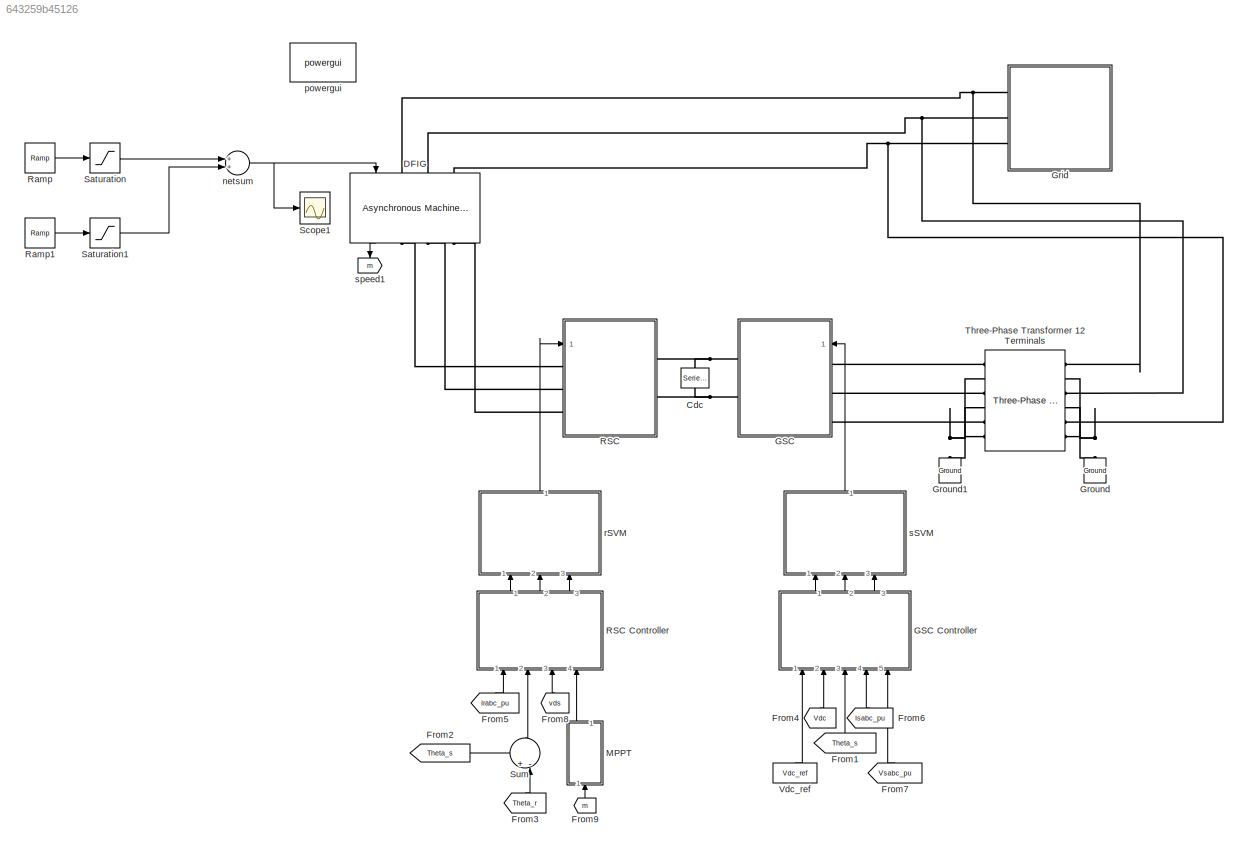
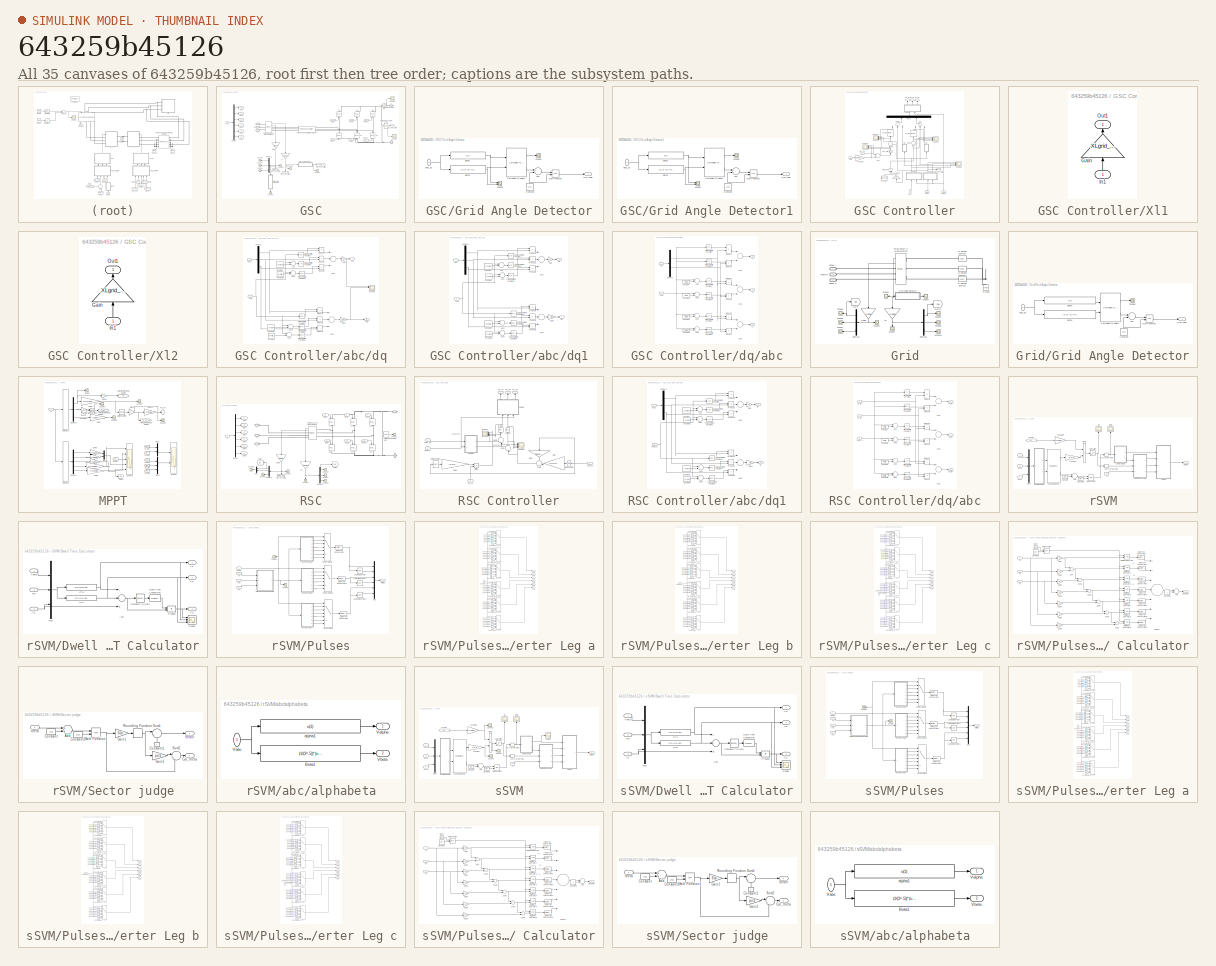
[diagram: thumbnail index - all 35 canvases of the model, root first then tree order]
MODEL slx_643259b45126
KIND model
BLOCK [Reference] Cdc  REF=powerlib/Elements/Series RLC Branch
  BranchType = C
  Capacitance = Cdc
  Inductance = 1e-3
  InitialCurrent = 0
  InitialVoltage = Vdc_ref*Vbase
  LConnTagsString = __new0
  Measurements = None
  Ports = [0, 0, 0, 0, 0, 1, 1]
  RConnTagsString = __new0
  Resistance = 1e6
  SetiL0 = off
  Setx0 = on
  SourceBlock = powerlib/Elements/Series RLC Branch
  SourceType = Series RLC Branch
BLOCK [Reference] DFIG  REF=powerlib/Machines/Asynchronous Machine
SI Units
  AttributesFormatString = \n
  Cage1 = [ 0.022 0.226/377]
  Cage2 = [ 0.022 0.226/377]
  InitialConditions = [-5.86974e-12 0 317.758 317.758 317.758 -89.9144 150.086 30.0856]
  IterativeModel = Forward Euler
  Lm = Lm
  LoadFlowParameters = -0.001
  Mechanical = [J_SCIG 0 P]
  MechanicalLoad = Speed w
  NominalParameters = [Sbase 690 50]
  Pmec = 1.5e6
  PolePairs = 2
  Ports = [1, 1, 0, 0, 0, 3, 3]
  PresetModel = No
  ReferenceFrame = Synchronous
  Rotor = [Rr Llr]
  RotorType = Wound
  Saturation = [0 0;0 0]
  ShowDetailedParameters = on
  SimulateSaturation = off
  SourceBlock = powerlib/Machines/Asynchronous Machine\nSI Units
  SourceType = Asynchronous Machine
  Stator = [Rs Lls]
  TsBlock = -1
  TsPowergui = 0
  Units = SI
BLOCK [From] From1
  CloseFcn = tagdialog Close
  GotoTag = Theta_s
  TagVisibility = global
BLOCK [From] From2
  CloseFcn = tagdialog Close
  GotoTag = Theta_s
  TagVisibility = global
BLOCK [From] From3
  CloseFcn = tagdialog Close
  GotoTag = Theta_r
  TagVisibility = global
BLOCK [From] From4
  CloseFcn = tagdialog Close
  GotoTag = Vdc
  TagVisibility = global
BLOCK [From] From5
  CloseFcn = tagdialog Close
  GotoTag = Irabc_pu
  TagVisibility = global
BLOCK [From] From6
  CloseFcn = tagdialog Close
  GotoTag = Isabc_pu
  TagVisibility = global
BLOCK [From] From7
  CloseFcn = tagdialog Close
  GotoTag = Vsabc_pu
  TagVisibility = global
BLOCK [From] From8
  CloseFcn = tagdialog Close
  GotoTag = vds
  TagVisibility = global
BLOCK [From] From9
  CloseFcn = tagdialog Close
  GotoTag = m
  TagVisibility = global
BLOCK [SubSystem] GSC
  FunctionWithSeparateData = off
  MaskHideContents = off
  MinAlgLoopOccurrences = off
  Opaque = off
  Ports = [1, 0, 0, 0, 0, 3, 2]
  PropExecContextOutsideSubsystem = off
  RTWSystemCode = Auto
  RequestExecContextInheritance = off
BLOCK [SubSystem] GSC Controller
  FunctionWithSeparateData = off
  MaskHideContents = off
  MinAlgLoopOccurrences = off
  Opaque = off
  Ports = [5, 3]
  PropExecContextOutsideSubsystem = off
  RTWSystemCode = Auto
  RequestExecContextInheritance = off
BLOCK [Sum] GSC Controller/Add
  InputSameDT = off
  Inputs = +-
  OutDataTypeStr = Inherit: Inherit via internal rule
  Ports = [2, 1]
  SaturateOnIntegerOverflow = off
BLOCK [Sum] GSC Controller/Add1
  InputSameDT = off
  Inputs = -+-
  OutDataTypeStr = Inherit: Inherit via internal rule
  Ports = [3, 1]
  SaturateOnIntegerOverflow = off
BLOCK [Sum] GSC Controller/Add2
  InputSameDT = off
  Inputs = -++
  OutDataTypeStr = Inherit: Inherit via internal rule
  Ports = [3, 1]
  SaturateOnIntegerOverflow = off
BLOCK [Constant] GSC Controller/Constant
  Value = Qgsc_ref
BLOCK [Inport] GSC Controller/Iabc
  IconDisplay = Port number
  Port = 4
BLOCK [Mux] GSC Controller/Mux6
  DisplayOption = bar
  Inputs = 2
  Ports = [2, 1]
BLOCK [Product] GSC Controller/Product1
  InputSameDT = off
  Inputs = */
  OutDataTypeStr = Inherit: Inherit via internal rule
  Ports = [2, 1]
  RndMeth = Floor
  SaturateOnIntegerOverflow = off
BLOCK [Scope] GSC Controller/Scope1
  DataFormat = StructureWithTime
  Floating = off
  LimitDataPoints = off
  NumInputPorts = 4
  Ports = [4]
  SampleTime = 0
  SaveName = ScopeData47
  ShowLegends = off
  YMax = 0.506296~1~2.5~3
  YMin = 0.506283~-1~-3~-3
  ZoomMode = xonly
BLOCK [Scope] GSC Controller/Scope3
  DataFormat = StructureWithTime
  Floating = off
  LimitDataPoints = off
  NumInputPorts = 4
  Ports = [4]
  SampleTime = 0
  SaveName = ScopeData23
  ShowLegends = off
  YMax = 1.14971~1.14971~3~-5.75
  YMin = 1.04021~1.04021~-3~-6.05
BLOCK [Scope] GSC Controller/Scope4
  DataFormat = StructureWithTime
  Floating = off
  LimitDataPoints = off
  NumInputPorts = 4
  Ports = [4]
  SampleTime = 0
  SaveName = ScopeData38
  ShowLegends = off
  YMax = -27.275~75~40~1020
  YMin = -27.475~-75~-90~890
BLOCK [Scope] GSC Controller/Scope5
  DataFormat = StructureWithTime
  Floating = off
  LimitDataPoints = off
  NumInputPorts = 4
  Ports = [4]
  SampleTime = 0
  SaveName = ScopeData43
  ShowLegends = off
  YMax = 1~20~20~2
  YMin = -1~-20~-20~-2.5
BLOCK [Goto] GSC Controller/Sin_cos_grid1
  GotoTag = vds
  TagVisibility = global
BLOCK [Sum] GSC Controller/Sum
  IconShape = round
  InputSameDT = off
  Inputs = |+-
  OutDataTypeStr = Inherit: Inherit via internal rule
  Ports = [2, 1]
  SaturateOnIntegerOverflow = off
BLOCK [Sum] GSC Controller/Sum2
  IconShape = round
  InputSameDT = off
  Inputs = |+-
  OutDataTypeStr = Inherit: Inherit via internal rule
  Ports = [2, 1]
  SaturateOnIntegerOverflow = off
BLOCK [Inport] GSC Controller/Theta_s
  IconDisplay = Port number
  Port = 3
BLOCK [Outport] GSC Controller/Va_ref
  IconDisplay = Port number
BLOCK [Inport] GSC Controller/Vabc
  IconDisplay = Port number
  Port = 5
BLOCK [Outport] GSC Controller/Vb_ref
  IconDisplay = Port number
  Port = 2
BLOCK [Outport] GSC Controller/Vc_ref
  IconDisplay = Port number
  Port = 3
BLOCK [Inport] GSC Controller/Vdc
  IconDisplay = Port number
  Port = 2
BLOCK [Reference] GSC Controller/Vdc_Ctr1  REF=powerlib_extras/Discrete 
Control Blocks/Discrete
PI Controller
  Init = 0
  Ki = Ki
  Kp = Kp
  Par_Limits = [1e6 -1e6]
  Ports = [1, 1]
  SourceBlock = powerlib_extras/Discrete \nControl Blocks/Discrete\nPI Controller
  SourceType = Discrete PI Controller
  Ts = 50e-6
BLOCK [Inport] GSC Controller/Vdc_ref
  IconDisplay = Port number
BLOCK [SubSystem] GSC Controller/Xl1
  FunctionWithSeparateData = off
  MaskHideContents = off
  MinAlgLoopOccurrences = off
  Opaque = off
  Ports = [1, 1]
  PropExecContextOutsideSubsystem = off
  RTWSystemCode = Auto
  RequestExecContextInheritance = off
BLOCK [Gain] GSC Controller/Xl1/Gain
  Gain = XLgrid_pu
  OutDataTypeStr = Inherit: Inherit via internal rule
  ParamDataTypeStr = Inherit: Inherit via internal rule
  SaturateOnIntegerOverflow = off
BLOCK [Inport] GSC Controller/Xl1/In1
  IconDisplay = Port number
BLOCK [Outport] GSC Controller/Xl1/Out1
  IconDisplay = Port number
BLOCK [SubSystem] GSC Controller/Xl2
  FunctionWithSeparateData = off
  MaskHideContents = off
  MinAlgLoopOccurrences = off
  Opaque = off
  Ports = [1, 1]
  PropExecContextOutsideSubsystem = off
  RTWSystemCode = Auto
  RequestExecContextInheritance = off
BLOCK [Gain] GSC Controller/Xl2/Gain
  Gain = XLgrid_pu
  OutDataTypeStr = Inherit: Inherit via internal rule
  ParamDataTypeStr = Inherit: Inherit via internal rule
  SaturateOnIntegerOverflow = off
BLOCK [Inport] GSC Controller/Xl2/In1
  IconDisplay = Port number
BLOCK [Outport] GSC Controller/Xl2/Out1
  IconDisplay = Port number
BLOCK [SubSystem] GSC Controller/abc//dq
  FunctionWithSeparateData = off
  MaskHideContents = off
  MinAlgLoopOccurrences = off
  Opaque = off
  Ports = [2, 2]
  PropExecContextOutsideSubsystem = off
  RTWSystemCode = Auto
  RequestExecContextInheritance = off
BLOCK [Sum] GSC Controller/abc//dq/Add
  InputSameDT = off
  Inputs = +-
  OutDataTypeStr = Inherit: Inherit via internal rule
  Ports = [2, 1]
  SaturateOnIntegerOverflow = off
BLOCK [Sum] GSC Controller/abc//dq/Add1
  InputSameDT = off
  Inputs = +-
  OutDataTypeStr = Inherit: Inherit via internal rule
  Ports = [2, 1]
  SaturateOnIntegerOverflow = off
BLOCK [Sum] GSC Controller/abc//dq/Add2
  InputSameDT = off
  Inputs = +++
  OutDataTypeStr = Inherit: Inherit via internal rule
  Ports = [3, 1]
  SaturateOnIntegerOverflow = off
BLOCK [Sum] GSC Controller/abc//dq/Add3
  InputSameDT = off
  Inputs = +-
  OutDataTypeStr = Inherit: Inherit via internal rule
  Ports = [2, 1]
  SaturateOnIntegerOverflow = off
BLOCK [Sum] GSC Controller/abc//dq/Add4
  InputSameDT = off
  Inputs = +-
  OutDataTypeStr = Inherit: Inherit via internal rule
  Ports = [2, 1]
  SaturateOnIntegerOverflow = off
BLOCK [Sum] GSC Controller/abc//dq/Add5
  InputSameDT = off
  Inputs = +++
  OutDataTypeStr = Inherit: Inherit via internal rule
  Ports = [3, 1]
  SaturateOnIntegerOverflow = off
BLOCK [Constant] GSC Controller/abc//dq/Constant
  Value = (2*pi)/3
BLOCK [Constant] GSC Controller/abc//dq/Constant1
  Value = (4*pi)/3
BLOCK [Constant] GSC Controller/abc//dq/Constant2
  Value = (2*pi)/3
BLOCK [Constant] GSC Controller/abc//dq/Constant3
  Value = (4*pi)/3
BLOCK [Demux] GSC Controller/abc//dq/Demux2
  DisplayOption = bar
  Outputs = 3
  Ports = [1, 3]
BLOCK [Gain] GSC Controller/abc//dq/Gain
  Gain = 2/3
  OutDataTypeStr = Inherit: Inherit via internal rule
  ParamDataTypeStr = Inherit: Inherit via internal rule
  SaturateOnIntegerOverflow = off
BLOCK [Gain] GSC Controller/abc//dq/Gain1
  Gain = -(2/3)*0
  OutDataTypeStr = Inherit: Inherit via internal rule
  ParamDataTypeStr = Inherit: Inherit via internal rule
  SaturateOnIntegerOverflow = off
BLOCK [Product] GSC Controller/abc//dq/Product1
  InputSameDT = off
  OutDataTypeStr = Inherit: Inherit via internal rule
  Ports = [2, 1]
  RndMeth = Floor
  SaturateOnIntegerOverflow = off
BLOCK [Product] GSC Controller/abc//dq/Product2
  InputSameDT = off
  OutDataTypeStr = Inherit: Inherit via internal rule
  Ports = [2, 1]
  RndMeth = Floor
  SaturateOnIntegerOverflow = off
BLOCK [Product] GSC Controller/abc//dq/Product3
  InputSameDT = off
  OutDataTypeStr = Inherit: Inherit via internal rule
  Ports = [2, 1]
  RndMeth = Floor
  SaturateOnIntegerOverflow = off
BLOCK [Product] GSC Controller/abc//dq/Product4
  InputSameDT = off
  OutDataTypeStr = Inherit: Inherit via internal rule
  Ports = [2, 1]
  RndMeth = Floor
  SaturateOnIntegerOverflow = off
BLOCK [Product] GSC Controller/abc//dq/Product5
  InputSameDT = off
  OutDataTypeStr = Inherit: Inherit via internal rule
  Ports = [2, 1]
  RndMeth = Floor
  SaturateOnIntegerOverflow = off
BLOCK [Product] GSC Controller/abc//dq/Product6
  InputSameDT = off
  OutDataTypeStr = Inherit: Inherit via internal rule
  Ports = [2, 1]
  RndMeth = Floor
  SaturateOnIntegerOverflow = off
BLOCK [Scope] GSC Controller/abc//dq/Scope5
  DataFormat = StructureWithTime
  Floating = off
  LimitDataPoints = off
  NumInputPorts = 4
  Ports = [4]
  SampleTime = 0
  SaveName = ScopeData26
  ShowLegends = off
  YMax = 1.41421~1~1~1
  YMin = 1.41421~-1~-1~-1
BLOCK [Inport] GSC Controller/abc//dq/Theta
  IconDisplay = Port number
  Port = 2
BLOCK [Trigonometry] GSC Controller/abc//dq/Trigonometric Function
  Operator = cos
  Ports = [1, 1]
BLOCK [Trigonometry] GSC Controller/abc//dq/Trigonometric Function1
  Operator = cos
  Ports = [1, 1]
BLOCK [Trigonometry] GSC Controller/abc//dq/Trigonometric Function2
  Operator = cos
  Ports = [1, 1]
BLOCK [Trigonometry] GSC Controller/abc//dq/Trigonometric Function3
  Ports = [1, 1]
BLOCK [Trigonometry] GSC Controller/abc//dq/Trigonometric Function4
  Ports = [1, 1]
BLOCK [Trigonometry] GSC Controller/abc//dq/Trigonometric Function5
  Ports = [1, 1]
BLOCK [Inport] GSC Controller/abc//dq/Vabc
  IconDisplay = Port number
BLOCK [Outport] GSC Controller/abc//dq/Vdg
  IconDisplay = Port number
BLOCK [Outport] GSC Controller/abc//dq/Vqg
  IconDisplay = Port number
  Port = 2
BLOCK [SubSystem] GSC Controller/abc//dq1
  FunctionWithSeparateData = off
  MaskHideContents = off
  MinAlgLoopOccurrences = off
  Opaque = off
  Ports = [2, 2]
  PropExecContextOutsideSubsystem = off
  RTWSystemCode = Auto
  RequestExecContextInheritance = off
BLOCK [Sum] GSC Controller/abc//dq1/Add
  InputSameDT = off
  Inputs = +-
  OutDataTypeStr = Inherit: Inherit via internal rule
  Ports = [2, 1]
  SaturateOnIntegerOverflow = off
BLOCK [Sum] GSC Controller/abc//dq1/Add1
  InputSameDT = off
  Inputs = +-
  OutDataTypeStr = Inherit: Inherit via internal rule
  Ports = [2, 1]
  SaturateOnIntegerOverflow = off
BLOCK [Sum] GSC Controller/abc//dq1/Add2
  InputSameDT = off
  Inputs = +++
  OutDataTypeStr = Inherit: Inherit via internal rule
  Ports = [3, 1]
  SaturateOnIntegerOverflow = off
BLOCK [Sum] GSC Controller/abc//dq1/Add3
  InputSameDT = off
  Inputs = +-
  OutDataTypeStr = Inherit: Inherit via internal rule
  Ports = [2, 1]
  SaturateOnIntegerOverflow = off
BLOCK [Sum] GSC Controller/abc//dq1/Add4
  InputSameDT = off
  Inputs = +-
  OutDataTypeStr = Inherit: Inherit via internal rule
  Ports = [2, 1]
  SaturateOnIntegerOverflow = off
BLOCK [Sum] GSC Controller/abc//dq1/Add5
  InputSameDT = off
  Inputs = +++
  OutDataTypeStr = Inherit: Inherit via internal rule
  Ports = [3, 1]
  SaturateOnIntegerOverflow = off
BLOCK [Constant] GSC Controller/abc//dq1/Constant
  Value = (2*pi)/3
BLOCK [Constant] GSC Controller/abc//dq1/Constant1
  Value = (4*pi)/3
BLOCK [Constant] GSC Controller/abc//dq1/Constant2
  Value = (2*pi)/3
BLOCK [Constant] GSC Controller/abc//dq1/Constant3
  Value = (4*pi)/3
BLOCK [Demux] GSC Controller/abc//dq1/Demux2
  DisplayOption = bar
  Outputs = 3
  Ports = [1, 3]
BLOCK [Gain] GSC Controller/abc//dq1/Gain
  Gain = 2/3
  OutDataTypeStr = Inherit: Inherit via internal rule
  ParamDataTypeStr = Inherit: Inherit via internal rule
  SaturateOnIntegerOverflow = off
BLOCK [Gain] GSC Controller/abc//dq1/Gain1
  Gain = -2/3
  OutDataTypeStr = Inherit: Inherit via internal rule
  ParamDataTypeStr = Inherit: Inherit via internal rule
  SaturateOnIntegerOverflow = off
BLOCK [Inport] GSC Controller/abc//dq1/Iabc
  IconDisplay = Port number
BLOCK [Outport] GSC Controller/abc//dq1/Idg
  IconDisplay = Port number
BLOCK [Outport] GSC Controller/abc//dq1/Iqg
  IconDisplay = Port number
  Port = 2
BLOCK [Product] GSC Controller/abc//dq1/Product1
  InputSameDT = off
  OutDataTypeStr = Inherit: Inherit via internal rule
  Ports = [2, 1]
  RndMeth = Floor
  SaturateOnIntegerOverflow = off
BLOCK [Product] GSC Controller/abc//dq1/Product2
  InputSameDT = off
  OutDataTypeStr = Inherit: Inherit via internal rule
  Ports = [2, 1]
  RndMeth = Floor
  SaturateOnIntegerOverflow = off
BLOCK [Product] GSC Controller/abc//dq1/Product3
  InputSameDT = off
  OutDataTypeStr = Inherit: Inherit via internal rule
  Ports = [2, 1]
  RndMeth = Floor
  SaturateOnIntegerOverflow = off
BLOCK [Product] GSC Controller/abc//dq1/Product4
  InputSameDT = off
  OutDataTypeStr = Inherit: Inherit via internal rule
  Ports = [2, 1]
  RndMeth = Floor
  SaturateOnIntegerOverflow = off
BLOCK [Product] GSC Controller/abc//dq1/Product5
  InputSameDT = off
  OutDataTypeStr = Inherit: Inherit via internal rule
  Ports = [2, 1]
  RndMeth = Floor
  SaturateOnIntegerOverflow = off
BLOCK [Product] GSC Controller/abc//dq1/Product6
  InputSameDT = off
  OutDataTypeStr = Inherit: Inherit via internal rule
  Ports = [2, 1]
  RndMeth = Floor
  SaturateOnIntegerOverflow = off
BLOCK [Inport] GSC Controller/abc//dq1/Theta
  IconDisplay = Port number
  Port = 2
BLOCK [Trigonometry] GSC Controller/abc//dq1/Trigonometric Function
  Operator = cos
  Ports = [1, 1]
BLOCK [Trigonometry] GSC Controller/abc//dq1/Trigonometric Function1
  Operator = cos
  Ports = [1, 1]
BLOCK [Trigonometry] GSC Controller/abc//dq1/Trigonometric Function2
  Operator = cos
  Ports = [1, 1]
BLOCK [Trigonometry] GSC Controller/abc//dq1/Trigonometric Function3
  Ports = [1, 1]
BLOCK [Trigonometry] GSC Controller/abc//dq1/Trigonometric Function4
  Ports = [1, 1]
BLOCK [Trigonometry] GSC Controller/abc//dq1/Trigonometric Function5
  Ports = [1, 1]
BLOCK [Gain] GSC Controller/constant2
  Gain = (1/Vbase)
  OutDataTypeStr = Inherit: Inherit via internal rule
  ParamDataTypeStr = Inherit: Inherit via internal rule
  SaturateOnIntegerOverflow = off
BLOCK [Gain] GSC Controller/constant5
  Gain = -1.5
  OutDataTypeStr = Inherit: Inherit via internal rule
  ParamDataTypeStr = Inherit: Inherit via internal rule
  SaturateOnIntegerOverflow = off
BLOCK [SubSystem] GSC Controller/dq//abc
  FunctionWithSeparateData = off
  MaskHideContents = off
  MinAlgLoopOccurrences = off
  Opaque = off
  Ports = [2, 3]
  PropExecContextOutsideSubsystem = off
  RTWSystemCode = Auto
  RequestExecContextInheritance = off
BLOCK [Sum] GSC Controller/dq//abc/Add
  InputSameDT = off
  Inputs = +-
  OutDataTypeStr = Inherit: Inherit via internal rule
  Ports = [2, 1]
  SaturateOnIntegerOverflow = off
BLOCK [Sum] GSC Controller/dq//abc/Add1
  InputSameDT = off
  Inputs = +-
  OutDataTypeStr = Inherit: Inherit via internal rule
  Ports = [2, 1]
  SaturateOnIntegerOverflow = off
BLOCK [Sum] GSC Controller/dq//abc/Add2
  InputSameDT = off
  Inputs = +-
  OutDataTypeStr = Inherit: Inherit via internal rule
  Ports = [2, 1]
  SaturateOnIntegerOverflow = off
BLOCK [Sum] GSC Controller/dq//abc/Add3
  InputSameDT = off
  Inputs = +-
  OutDataTypeStr = Inherit: Inherit via internal rule
  Ports = [2, 1]
  SaturateOnIntegerOverflow = off
BLOCK [Sum] GSC Controller/dq//abc/Add4
  InputSameDT = off
  Inputs = +-
  OutDataTypeStr = Inherit: Inherit via internal rule
  Ports = [2, 1]
  SaturateOnIntegerOverflow = off
BLOCK [Sum] GSC Controller/dq//abc/Add5
  InputSameDT = off
  Inputs = +-
  OutDataTypeStr = Inherit: Inherit via internal rule
  Ports = [2, 1]
  SaturateOnIntegerOverflow = off
BLOCK [Sum] GSC Controller/dq//abc/Add6
  InputSameDT = off
  Inputs = +-
  OutDataTypeStr = Inherit: Inherit via internal rule
  Ports = [2, 1]
  SaturateOnIntegerOverflow = off
BLOCK [Constant] GSC Controller/dq//abc/Constant
  Value = (2*pi)/3
BLOCK [Constant] GSC Controller/dq//abc/Constant1
  Value = (4*pi)/3
BLOCK [Constant] GSC Controller/dq//abc/Constant2
  Value = (2*pi)/3
BLOCK [Constant] GSC Controller/dq//abc/Constant3
  Value = (4*pi)/3
BLOCK [Demux] GSC Controller/dq//abc/Demux2
  DisplayOption = bar
  Outputs = 2
  Ports = [1, 2]
BLOCK [Product] GSC Controller/dq//abc/Product1
  InputSameDT = off
  OutDataTypeStr = Inherit: Inherit via internal rule
  Ports = [2, 1]
  RndMeth = Floor
  SaturateOnIntegerOverflow = off
BLOCK [Product] GSC Controller/dq//abc/Product2
  InputSameDT = off
  OutDataTypeStr = Inherit: Inherit via internal rule
  Ports = [2, 1]
  RndMeth = Floor
  SaturateOnIntegerOverflow = off
BLOCK [Product] GSC Controller/dq//abc/Product3
  InputSameDT = off
  OutDataTypeStr = Inherit: Inherit via internal rule
  Ports = [2, 1]
  RndMeth = Floor
  SaturateOnIntegerOverflow = off
BLOCK [Product] GSC Controller/dq//abc/Product4
  InputSameDT = off
  OutDataTypeStr = Inherit: Inherit via internal rule
  Ports = [2, 1]
  RndMeth = Floor
  SaturateOnIntegerOverflow = off
BLOCK [Product] GSC Controller/dq//abc/Product5
  InputSameDT = off
  OutDataTypeStr = Inherit: Inherit via internal rule
  Ports = [2, 1]
  RndMeth = Floor
  SaturateOnIntegerOverflow = off
BLOCK [Product] GSC Controller/dq//abc/Product6
  InputSameDT = off
  OutDataTypeStr = Inherit: Inherit via internal rule
  Ports = [2, 1]
  RndMeth = Floor
  SaturateOnIntegerOverflow = off
BLOCK [Inport] GSC Controller/dq//abc/Theta
  IconDisplay = Port number
  Port = 2
BLOCK [Trigonometry] GSC Controller/dq//abc/Trigonometric Function
  Operator = cos
  Ports = [1, 1]
BLOCK [Trigonometry] GSC Controller/dq//abc/Trigonometric Function1
  Operator = cos
  Ports = [1, 1]
BLOCK [Trigonometry] GSC Controller/dq//abc/Trigonometric Function2
  Operator = cos
  Ports = [1, 1]
BLOCK [Trigonometry] GSC Controller/dq//abc/Trigonometric Function3
  Ports = [1, 1]
BLOCK [Trigonometry] GSC Controller/dq//abc/Trigonometric Function4
  Ports = [1, 1]
BLOCK [Trigonometry] GSC Controller/dq//abc/Trigonometric Function5
  Ports = [1, 1]
BLOCK [Outport] GSC Controller/dq//abc/Va
  IconDisplay = Port number
BLOCK [Outport] GSC Controller/dq//abc/Vb
  IconDisplay = Port number
  Port = 2
BLOCK [Outport] GSC Controller/dq//abc/Vc
  IconDisplay = Port number
  Port = 3
BLOCK [Inport] GSC Controller/dq//abc/vdq
  IconDisplay = Port number
BLOCK [Reference] GSC Controller/id_Ctr1  REF=powerlib_extras/Discrete 
Control Blocks/Discrete
PI Controller
  Init = 0
  Ki = Ki
  Kp = Kp
  Par_Limits = [1e6 -1e6]
  Ports = [1, 1]
  SourceBlock = powerlib_extras/Discrete \nControl Blocks/Discrete\nPI Controller
  SourceType = Discrete PI Controller
  Ts = 50e-6
BLOCK [Reference] GSC Controller/iq_Ctr2  REF=powerlib_extras/Discrete 
Control Blocks/Discrete
PI Controller
  Init = 0
  Ki = Ki
  Kp = Kp
  Par_Limits = [1e6 -1e6]
  Ports = [1, 1]
  SourceBlock = powerlib_extras/Discrete \nControl Blocks/Discrete\nPI Controller
  SourceType = Discrete PI Controller
  Ts = 50e-6
BLOCK [Reference] GSC/ S1  REF=powerlib/Power
Electronics/Ideal Switch
  Cs = inf
  IC = 1
  Lon = 0
  Measurements = off
  Ports = [1, 0, 0, 0, 0, 1, 1]
  Ron = Ron
  Rs = inf
  SourceBlock = powerlib/Power\nElectronics/Ideal Switch
  SourceType = Ideal Switch
BLOCK [Reference] GSC/ S2  REF=powerlib/Power
Electronics/Ideal Switch
  Cs = inf
  IC = 0
  Lon = 0
  Measurements = off
  Ports = [1, 0, 0, 0, 0, 1, 1]
  Ron = Ron
  Rs = inf
  SourceBlock = powerlib/Power\nElectronics/Ideal Switch
  SourceType = Ideal Switch
BLOCK [Reference] GSC/ S3  REF=powerlib/Power
Electronics/Ideal Switch
  Cs = inf
  IC = 1
  Lon = 0
  Measurements = off
  Ports = [1, 0, 0, 0, 0, 1, 1]
  Ron = Ron
  Rs = inf
  SourceBlock = powerlib/Power\nElectronics/Ideal Switch
  SourceType = Ideal Switch
BLOCK [Reference] GSC/ S4  REF=powerlib/Power
Electronics/Ideal Switch
  Cs = inf
  IC = 0
  Lon = 0
  Measurements = off
  Ports = [1, 0, 0, 0, 0, 1, 1]
  Ron = Ron
  Rs = inf
  SourceBlock = powerlib/Power\nElectronics/Ideal Switch
  SourceType = Ideal Switch
BLOCK [Reference] GSC/ S5  REF=powerlib/Power
Electronics/Ideal Switch
  Cs = inf
  IC = 1
  Lon = 0
  Measurements = off
  Ports = [1, 0, 0, 0, 0, 1, 1]
  Ron = Ron
  Rs = inf
  SourceBlock = powerlib/Power\nElectronics/Ideal Switch
  SourceType = Ideal Switch
BLOCK [Reference] GSC/ S6  REF=powerlib/Power
Electronics/Ideal Switch
  Cs = inf
  IC = 0
  Lon = 0
  Measurements = off
  Ports = [1, 0, 0, 0, 0, 1, 1]
  Ron = Ron
  Rs = inf
  SourceBlock = powerlib/Power\nElectronics/Ideal Switch
  SourceType = Ideal Switch
BLOCK [PMIOPort] GSC/+
  Port = 1
  Side = Right
BLOCK [PMIOPort] GSC/-
  Port = 5
  Side = Right
BLOCK [PMIOPort] GSC/A
  Port = 2
  Side = Left
BLOCK [PMIOPort] GSC/B
  Port = 3
  Side = Left
BLOCK [PMIOPort] GSC/C
  Port = 4
  Side = Left
BLOCK [Reference] GSC/Current Measurement  REF=powerlib/Measurements/Current Measurement
  OutputType = Complex
  PSBequivalent = 0
  PhasorSimulation = off
  Ports = [0, 1, 0, 0, 0, 1, 1]
  SourceBlock = powerlib/Measurements/Current Measurement
  SourceType = Current Measurement
BLOCK [Demux] GSC/Demux
  DisplayOption = bar
  Outputs = 6
  Ports = [1, 6]
BLOCK [Demux] GSC/Demux1
  DisplayOption = bar
  Outputs = 3
  Ports = [1, 3]
BLOCK [From] GSC/From10
  CloseFcn = tagdialog Close
  GotoTag = s5
BLOCK [From] GSC/From11
  CloseFcn = tagdialog Close
  GotoTag = s6
BLOCK [From] GSC/From6
  CloseFcn = tagdialog Close
  GotoTag = s1
BLOCK [From] GSC/From7
  CloseFcn = tagdialog Close
  GotoTag = s2
BLOCK [From] GSC/From8
  CloseFcn = tagdialog Close
  GotoTag = s3
BLOCK [From] GSC/From9
  CloseFcn = tagdialog Close
  GotoTag = s4
BLOCK [Inport] GSC/G
  IconDisplay = Port number
BLOCK [Gain] GSC/Gain5
  Gain = 1/Ibase
  OutDataTypeStr = Inherit: Inherit via internal rule
  ParamDataTypeStr = Inherit: Inherit via internal rule
  SaturateOnIntegerOverflow = off
BLOCK [Goto] GSC/Goto
  GotoTag = s1
BLOCK [Goto] GSC/Goto1
  GotoTag = s2
BLOCK [Goto] GSC/Goto2
  GotoTag = s3
BLOCK [Goto] GSC/Goto3
  GotoTag = s4
BLOCK [Goto] GSC/Goto4
  GotoTag = s5
BLOCK [Goto] GSC/Goto5
  GotoTag = s6
BLOCK [SubSystem] GSC/Grid Angle Detector
  FunctionWithSeparateData = off
  MaskHideContents = off
  MinAlgLoopOccurrences = off
  Opaque = off
  Ports = [1, 1]
  PropExecContextOutsideSubsystem = off
  RTWSystemCode = Auto
  RequestExecContextInheritance = off
BLOCK [Sum] GSC/Grid Angle Detector/Add
  InputSameDT = off
  OutDataTypeStr = Inherit: Inherit via internal rule
  Ports = [2, 1]
  SaturateOnIntegerOverflow = off
BLOCK [Fcn] GSC/Grid Angle Detector/Beta1
  Expr = (1/(3^.5))*(u(1)+2*u(2))
BLOCK [Reference] GSC/Grid Angle Detector/Cartesian to Polar1  REF=simulink_extras/Transformations/Cartesian to
Polar
  Ports = [2, 2]
  SourceBlock = simulink_extras/Transformations/Cartesian to\nPolar
  SourceType = Cart2Polar
BLOCK [Constant] GSC/Grid Angle Detector/Constant
  Value = 2*pi
BLOCK [Outport] GSC/Grid Angle Detector/Grid Angle
  IconDisplay = Port number
BLOCK [Math] GSC/Grid Angle Detector/Math Function
  Operator = rem
  Ports = [2, 1]
BLOCK [Scope] GSC/Grid Angle Detector/Scope3
  DataFormat = StructureWithTime
  Floating = off
  LimitDataPoints = off
  NumInputPorts = 2
  Ports = [2]
  SampleTime = 0
  SaveName = ScopeData34
  ShowLegends = off
  YMax = 2~5
  YMin = -1~-5
BLOCK [Scope] GSC/Grid Angle Detector/Scope5
  DataFormat = StructureWithTime
  Floating = off
  LimitDataPoints = off
  NumInputPorts = 1
  Ports = [1]
  SampleTime = 0
  SaveName = ScopeData13
  ShowLegends = off
  ZoomMode = yonly
BLOCK [Inport] GSC/Grid Angle Detector/Vabc_pu
  IconDisplay = Port number
BLOCK [Fcn] GSC/Grid Angle Detector/alpha1
  Expr = u(1)
BLOCK [SubSystem] GSC/Grid Angle Detector1
  FunctionWithSeparateData = off
  MaskHideContents = off
  MinAlgLoopOccurrences = off
  Opaque = off
  Ports = [1, 1]
  PropExecContextOutsideSubsystem = off
  RTWSystemCode = Auto
  RequestExecContextInheritance = off
BLOCK [Sum] GSC/Grid Angle Detector1/Add
  InputSameDT = off
  OutDataTypeStr = Inherit: Inherit via internal rule
  Ports = [2, 1]
  SaturateOnIntegerOverflow = off
BLOCK [Fcn] GSC/Grid Angle Detector1/Beta1
  Expr = (1/(3^.5))*(u(1)+2*u(2))
BLOCK [Reference] GSC/Grid Angle Detector1/Cartesian to Polar1  REF=simulink_extras/Transformations/Cartesian to
Polar
  Ports = [2, 2]
  SourceBlock = simulink_extras/Transformations/Cartesian to\nPolar
  SourceType = Cart2Polar
BLOCK [Constant] GSC/Grid Angle Detector1/Constant
  Value = 2*pi
BLOCK [Outport] GSC/Grid Angle Detector1/Grid Angle
  IconDisplay = Port number
BLOCK [Math] GSC/Grid Angle Detector1/Math Function
  Operator = rem
  Ports = [2, 1]
BLOCK [Scope] GSC/Grid Angle Detector1/Scope3
  DataFormat = StructureWithTime
  Floating = off
  LimitDataPoints = off
  NumInputPorts = 2
  Ports = [2]
  SampleTime = 0
  SaveName = ScopeData34
  ShowLegends = off
  YMax = 2~5
  YMin = -1~-5
BLOCK [Scope] GSC/Grid Angle Detector1/Scope5
  DataFormat = StructureWithTime
  Floating = off
  LimitDataPoints = off
  NumInputPorts = 1
  Ports = [1]
  SampleTime = 0
  SaveName = ScopeData13
  ShowLegends = off
  ZoomMode = yonly
BLOCK [Inport] GSC/Grid Angle Detector1/Vabc_pu
  IconDisplay = Port number
BLOCK [Fcn] GSC/Grid Angle Detector1/alpha1
  Expr = u(1)
BLOCK [Scope] GSC/Scope
  DataFormat = StructureWithTime
  Floating = off
  LimitDataPoints = off
  NumInputPorts = 1
  Ports = [1]
  SampleTime = 0
  SaveName = ScopeData8
  ShowLegends = off
  YMax = 600
  YMin = 0
  ZoomMode = xonly
BLOCK [Scope] GSC/Scope1
  DataFormat = StructureWithTime
  Floating = off
  LimitDataPoints = off
  NumInputPorts = 1
  Ports = [1]
  SampleTime = 0
  SaveName = ScopeData9
  ShowLegends = off
  YMax = 200
  YMin = -225
  ZoomMode = xonly
BLOCK [Scope] GSC/Scope2
  DataFormat = StructureWithTime
  Floating = off
  LimitDataPoints = off
  NumInputPorts = 1
  Ports = [1]
  SampleTime = 0
  SaveName = ScopeData33
  ShowLegends = off
  YMax = 50
  YMin = -50
BLOCK [Scope] GSC/Scope3
  DataFormat = StructureWithTime
  Floating = off
  LimitDataPoints = off
  NumInputPorts = 1
  Ports = [1]
  SampleTime = 0
  SaveName = ScopeData32
  ShowLegends = off
BLOCK [Scope] GSC/Scope4
  DataFormat = StructureWithTime
  Floating = off
  LimitDataPoints = off
  NumInputPorts = 1
  Ports = [1]
  SampleTime = 0
  SaveName = ScopeData14
  ShowLegends = off
  ZoomMode = yonly
BLOCK [Scope] GSC/Scope5
  DataFormat = StructureWithTime
  Floating = off
  LimitDataPoints = off
  NumInputPorts = 1
  Ports = [1]
  SampleTime = 0
  SaveName = ScopeData39
  ShowLegends = off
  YMax = 2500
  YMin = -2000
BLOCK [Scope] GSC/Scope6
  DataFormat = StructureWithTime
  Floating = off
  LimitDataPoints = off
  NumInputPorts = 1
  Ports = [1]
  SampleTime = 0
  SaveName = ScopeData19
  ShowLegends = off
  ZoomMode = yonly
BLOCK [Scope] GSC/Scope7
  DataFormat = StructureWithTime
  Floating = off
  LimitDataPoints = off
  NumInputPorts = 1
  Ports = [1]
  SampleTime = 0
  SaveName = ScopeData27
  ShowLegends = off
  YMax = 6.5
  YMin = 0
BLOCK [Scope] GSC/Scope8
  DataFormat = StructureWithTime
  Floating = off
  LimitDataPoints = off
  NumInputPorts = 1
  Ports = [1]
  SampleTime = 0
  SaveName = ScopeData54
  ShowLegends = off
  YMax = 6.5
  YMin = 0
BLOCK [Goto] GSC/Sin_cos_grid1
  GotoTag = Isabc_pu
  TagVisibility = global
BLOCK [Goto] GSC/Sin_cos_grid2
  GotoTag = Vsabc_pu
  TagVisibility = global
BLOCK [Goto] GSC/Sin_cos_grid3
  GotoTag = Theta_s
  TagVisibility = global
BLOCK [Goto] GSC/Sin_cos_grid4
  GotoTag = Vdc
  TagVisibility = global
BLOCK [Reference] GSC/Three-Phase Parallel RLC Branch  REF=powerlib/Elements/Three-Phase
Parallel RLC Branch
  AttributesFormatString = \n
  BranchType = L
  Capacitance = 1e-6
  Inductance = Lgrid
  LConnTagsString = A|B|C
  Measurements = None
  Ports = [0, 0, 0, 0, 0, 3, 3]
  RConnTagsString = A|B|C
  Resistance = inf
  SourceBlock = powerlib/Elements/Three-Phase\nParallel RLC Branch
  SourceType = Three-Phase Parallel RLC Branch
BLOCK [Reference] GSC/Three-Phase V-I Measurement  REF=powerlib/Measurements/Three-Phase
V-I Measurement
  CurrentMeasurement = yes
  Ipu = off
  LabelI = Iabc
  LabelV = Vabc
  OutputType = Complex
  PSBequivalent = 0
  Pbase = 100e6
  PhasorSimulation = off
  Ports = [0, 2, 0, 0, 0, 3, 3]
  SetLabelI = off
  SetLabelV = off
  SourceBlock = powerlib/Measurements/Three-Phase\nV-I Measurement
  SourceType = Three-Phase VI Measurement
  Vbase = 500e3
  VoltageMeasurement = phase-to-ground
  Vpu = off
  VpuLL = off
BLOCK [Reference] GSC/Voltage Measurement4  REF=powerlib/Measurements/Voltage Measurement
  OutputType = Complex
  PSBequivalent = 0
  PhasorSimulation = off
  Ports = [0, 1, 0, 0, 0, 2]
  SourceBlock = powerlib/Measurements/Voltage Measurement
  SourceType = Voltage Measurement
BLOCK [Gain] GSC/c5
  Gain = 1/Vbase
  OutDataTypeStr = Inherit: Inherit via internal rule
  ParamDataTypeStr = Inherit: Inherit via internal rule
  SaturateOnIntegerOverflow = off
BLOCK [SubSystem] Grid
  FunctionWithSeparateData = off
  MaskHideContents = off
  MinAlgLoopOccurrences = off
  Opaque = off
  Ports = [0, 0, 0, 0, 0, 3]
  PropExecContextOutsideSubsystem = off
  RTWSystemCode = Auto
  RequestExecContextInheritance = off
BLOCK [Reference] Grid/AC Voltage Source1  REF=powerlib/Electrical
Sources/AC Voltage Source
  Amplitude = Vp
  Frequency = 50
  Measurements = None
  Phase = -120+Grid_Angle_init
  Ports = [0, 0, 0, 0, 0, 1, 1]
  SampleTime = 0
  SourceBlock = powerlib/Electrical\nSources/AC Voltage Source
  SourceType = AC Voltage Source
BLOCK [Reference] Grid/AC Voltage Source2  REF=powerlib/Electrical
Sources/AC Voltage Source
  Amplitude = Vp
  Frequency = 50
  Measurements = None
  Phase = -240+Grid_Angle_init
  Ports = [0, 0, 0, 0, 0, 1, 1]
  SampleTime = 0
  SourceBlock = powerlib/Electrical\nSources/AC Voltage Source
  SourceType = AC Voltage Source
BLOCK [Reference] Grid/AC Voltage Source3  REF=powerlib/Electrical
Sources/AC Voltage Source
  Amplitude = Vp
  Frequency = 50
  Measurements = None
  Phase = 0+Grid_Angle_init
  Ports = [0, 0, 0, 0, 0, 1, 1]
  SampleTime = 0
  SourceBlock = powerlib/Electrical\nSources/AC Voltage Source
  SourceType = AC Voltage Source
BLOCK [Demux] Grid/Demux1
  DisplayOption = bar
  Outputs = 3
  Ports = [1, 3]
BLOCK [Demux] Grid/Demux2
  DisplayOption = bar
  Outputs = 3
  Ports = [1, 3]
BLOCK [Gain] Grid/Gain5
  Gain = 1/Ibase
  OutDataTypeStr = Inherit: Inherit via internal rule
  ParamDataTypeStr = Inherit: Inherit via internal rule
  SaturateOnIntegerOverflow = off
BLOCK [Goto] Grid/Goto
  GotoTag = iag
  TagVisibility = global
BLOCK [Goto] Grid/Goto1
  GotoTag = vag
  TagVisibility = global
BLOCK [SubSystem] Grid/Grid Angle Detector
  FunctionWithSeparateData = off
  MaskHideContents = off
  MinAlgLoopOccurrences = off
  Opaque = off
  Ports = [1, 1]
  PropExecContextOutsideSubsystem = off
  RTWSystemCode = Auto
  RequestExecContextInheritance = off
BLOCK [Sum] Grid/Grid Angle Detector/Add
  InputSameDT = off
  OutDataTypeStr = Inherit: Inherit via internal rule
  Ports = [2, 1]
  SaturateOnIntegerOverflow = off
BLOCK [Fcn] Grid/Grid Angle Detector/Beta1
  Expr = (1/(3^.5))*(u(1)+2*u(2))
BLOCK [Reference] Grid/Grid Angle Detector/Cartesian to Polar1  REF=simulink_extras/Transformations/Cartesian to
Polar
  Ports = [2, 2]
  SourceBlock = simulink_extras/Transformations/Cartesian to\nPolar
  SourceType = Cart2Polar
BLOCK [Constant] Grid/Grid Angle Detector/Constant
  Value = 2*pi
BLOCK [Outport] Grid/Grid Angle Detector/Grid Angle
  IconDisplay = Port number
BLOCK [Math] Grid/Grid Angle Detector/Math Function
  Operator = rem
  Ports = [2, 1]
BLOCK [Scope] Grid/Grid Angle Detector/Scope5
  DataFormat = StructureWithTime
  Floating = off
  LimitDataPoints = off
  NumInputPorts = 1
  Ports = [1]
  SampleTime = 0
  SaveName = ScopeData11
  ShowLegends = off
  ZoomMode = yonly
BLOCK [Inport] Grid/Grid Angle Detector/Vabc_pu
  IconDisplay = Port number
BLOCK [Fcn] Grid/Grid Angle Detector/alpha1
  Expr = u(1)
BLOCK [Reference] Grid/Ground  REF=powerlib/Elements/Ground
  LConnTagsString = a
  Ports = [0, 0, 0, 0, 0, 1]
  SourceBlock = powerlib/Elements/Ground
  SourceType = Ground
BLOCK [PMIOPort] Grid/Phase A
  Port = 1
  Side = Left
BLOCK [PMIOPort] Grid/Phase B
  Port = 2
  Side = Left
BLOCK [PMIOPort] Grid/Phase C
  Port = 3
  Side = Left
BLOCK [Scope] Grid/Scope1
  DataFormat = StructureWithTime
  Floating = off
  LimitDataPoints = off
  NumInputPorts = 1
  Ports = [1]
  SampleTime = 0
  SaveName = ScopeData36
  ShowLegends = off
  YMax = 0.025
  YMin = -0.35
  ZoomMode = xonly
BLOCK [Scope] Grid/Scope10
  DataFormat = StructureWithTime
  Floating = off
  LimitDataPoints = off
  NumInputPorts = 1
  Ports = [1]
  SampleTime = 0
  ShowLegends = off
  ZoomMode = yonly
BLOCK [Scope] Grid/Scope2
  DataFormat = StructureWithTime
  Floating = off
  LimitDataPoints = off
  NumInputPorts = 1
  Ports = [1]
  SampleTime = 0
  SaveName = ScopeData21
  ShowLegends = off
  YMax = 50
  YMin = -50
BLOCK [Scope] Grid/Scope3
  DataFormat = StructureWithTime
  Floating = off
  LimitDataPoints = off
  NumInputPorts = 1
  Ports = [1]
  SampleTime = 0
  SaveName = ScopeData35
  ShowLegends = off
  YMax = 1.5
  YMin = -1.5
BLOCK [Scope] Grid/Scope4
  DataFormat = StructureWithTime
  Floating = off
  LimitDataPoints = off
  NumInputPorts = 1
  Ports = [1]
  SampleTime = 0
  SaveName = ScopeData48
  ShowLegends = off
BLOCK [Scope] Grid/Scope5
  DataFormat = StructureWithTime
  Floating = off
  LimitDataPoints = off
  NumInputPorts = 1
  Ports = [1]
  SampleTime = 0
  SaveName = ScopeData49
  ShowLegends = off
  ZoomMode = yonly
BLOCK [Scope] Grid/Scope6
  DataFormat = StructureWithTime
  Floating = off
  LimitDataPoints = off
  NumInputPorts = 1
  Ports = [1]
  SampleTime = 0
  SaveName = ScopeData50
  ShowLegends = off
  YMax = 15
  YMin = -15
BLOCK [Scope] Grid/Scope7
  DataFormat = StructureWithTime
  Floating = off
  LimitDataPoints = off
  NumInputPorts = 1
  Ports = [1]
  SampleTime = 0
  SaveName = ScopeData51
  ShowLegends = off
  ZoomMode = yonly
BLOCK [Scope] Grid/Scope8
  DataFormat = StructureWithTime
  Floating = off
  LimitDataPoints = off
  NumInputPorts = 1
  Ports = [1]
  SampleTime = 0
  SaveName = ScopeData52
  ShowLegends = off
  ZoomMode = yonly
BLOCK [Scope] Grid/Scope9
  DataFormat = StructureWithTime
  Floating = off
  LimitDataPoints = off
  NumInputPorts = 1
  Ports = [1]
  SampleTime = 0
  SaveName = ScopeData53
  ShowLegends = off
  YMax = 1.5
  YMin = -1.5
BLOCK [Reference] Grid/Three-Phase V-I Measurement  REF=powerlib/Measurements/Three-Phase
V-I Measurement
  CurrentMeasurement = yes
  Ipu = off
  LabelI = Iabc
  LabelV = Vabc
  OutputType = Complex
  PSBequivalent = 0
  Pbase = 100e6
  PhasorSimulation = off
  Ports = [0, 2, 0, 0, 0, 3, 3]
  SetLabelI = off
  SetLabelV = off
  SourceBlock = powerlib/Measurements/Three-Phase\nV-I Measurement
  SourceType = Three-Phase VI Measurement
  Vbase = 500e3
  VoltageMeasurement = phase-to-ground
  Vpu = off
  VpuLL = off
BLOCK [Gain] Grid/c5
  Gain = 1/Vbase
  OutDataTypeStr = Inherit: Inherit via internal rule
  ParamDataTypeStr = Inherit: Inherit via internal rule
  SaturateOnIntegerOverflow = off
BLOCK [Reference] Ground  REF=powerlib/Elements/Ground
  LConnTagsString = a
  Ports = [0, 0, 0, 0, 0, 1]
  SourceBlock = powerlib/Elements/Ground
  SourceType = Ground
BLOCK [Reference] Ground1  REF=powerlib/Elements/Ground
  LConnTagsString = a
  Ports = [0, 0, 0, 0, 0, 1]
  SourceBlock = powerlib/Elements/Ground
  SourceType = Ground
BLOCK [SubSystem] MPPT
  FunctionWithSeparateData = off
  MaskHideContents = off
  MinAlgLoopOccurrences = off
  Opaque = off
  Ports = [1, 1]
  PropExecContextOutsideSubsystem = off
  RTWSystemCode = Auto
  RequestExecContextInheritance = off
BLOCK [Constant] MPPT/Constant2
  Value = 2*pi
BLOCK [Demux] MPPT/Demux1
  DisplayOption = bar
  Outputs = 5
  Ports = [1, 5]
BLOCK [Demux] MPPT/Demux3
  DisplayOption = bar
  Outputs = 3
  Ports = [1, 3]
BLOCK [From] MPPT/From
  GotoTag = var
  TagVisibility = global
BLOCK [From] MPPT/From1
  GotoTag = var
  TagVisibility = global
BLOCK [From] MPPT/From2
  GotoTag = iar
  TagVisibility = global
BLOCK [From] MPPT/From3
  GotoTag = vag
  TagVisibility = global
BLOCK [From] MPPT/From4
  GotoTag = ias
  TagVisibility = global
BLOCK [From] MPPT/From5
  GotoTag = iag
  TagVisibility = global
BLOCK [Gain] MPPT/Gain1
  Gain = 1/abs(Trated)
  OutDataTypeStr = Inherit: Inherit via internal rule
  ParamDataTypeStr = Inherit: Inherit via internal rule
  SaturateOnIntegerOverflow = off
BLOCK [Gain] MPPT/Gain10
  Gain = Trated
  OutDataTypeStr = Inherit: Inherit via internal rule
  ParamDataTypeStr = Inherit: Inherit via internal rule
  SaturateOnIntegerOverflow = off
BLOCK [Gain] MPPT/Gain11
  Gain = P
  OutDataTypeStr = Inherit: Inherit via internal rule
  ParamDataTypeStr = Inherit: Inherit via internal rule
  SaturateOnIntegerOverflow = off
BLOCK [Gain] MPPT/Gain2
  Gain = 1/Omegamech
  OutDataTypeStr = Inherit: Inherit via internal rule
  ParamDataTypeStr = Inherit: Inherit via internal rule
  SampleTime = 1/Fsampling
  SaturateOnIntegerOverflow = off
BLOCK [Gain] MPPT/Gain3
  Gain = P
  OutDataTypeStr = Inherit: Inherit via internal rule
  ParamDataTypeStr = Inherit: Inherit via internal rule
  SaturateOnIntegerOverflow = off
BLOCK [Gain] MPPT/Gain4
  Gain = -1
  OutDataTypeStr = Inherit: Inherit via internal rule
  ParamDataTypeStr = Inherit: Inherit via internal rule
  SaturateOnIntegerOverflow = off
BLOCK [Gain] MPPT/Gain5
  Gain = 1/Ibase
  OutDataTypeStr = Inherit: Inherit via internal rule
  ParamDataTypeStr = Inherit: Inherit via internal rule
  SaturateOnIntegerOverflow = off
BLOCK [Gain] MPPT/Gain6
  Gain = 1/Ibase
  OutDataTypeStr = Inherit: Inherit via internal rule
  ParamDataTypeStr = Inherit: Inherit via internal rule
  SaturateOnIntegerOverflow = off
BLOCK [Gain] MPPT/Gain7
  Gain = 1/Ibase
  OutDataTypeStr = Inherit: Inherit via internal rule
  ParamDataTypeStr = Inherit: Inherit via internal rule
  SaturateOnIntegerOverflow = off
BLOCK [Gain] MPPT/Gain8
  Gain = 1/Omegamech
  OutDataTypeStr = Inherit: Inherit via internal rule
  ParamDataTypeStr = Inherit: Inherit via internal rule
  SampleTime = 1/Fsampling
  SaturateOnIntegerOverflow = off
BLOCK [Gain] MPPT/Gain9
  Gain = 1/Trated
  OutDataTypeStr = Inherit: Inherit via internal rule
  ParamDataTypeStr = Inherit: Inherit via internal rule
  SaturateOnIntegerOverflow = off
BLOCK [Goto] MPPT/Goto6
  GotoTag = ias
  TagVisibility = global
BLOCK [Math] MPPT/Math Function
  Operator = square
  Ports = [1, 1]
BLOCK [Math] MPPT/Math Function1
  Operator = mod
  Ports = [2, 1]
  SampleTime = 1/Fsampling
BLOCK [Mux] MPPT/Mux
  DisplayOption = bar
  Inputs = 2
  Ports = [2, 1]
BLOCK [Mux] MPPT/Mux1
  DisplayOption = bar
  Inputs = 2
  Ports = [2, 1]
BLOCK [Mux] MPPT/Mux2
  DisplayOption = bar
  Inputs = 3
  Ports = [3, 1]
BLOCK [Scope] MPPT/Scope
  DataFormat = StructureWithTime
  Floating = off
  LimitDataPoints = off
  NumInputPorts = 1
  Ports = [1]
  SampleTime = 0
  SaveName = ScopeData4
  ShowLegends = off
  YMax = 185
  YMin = 127.5
BLOCK [Scope] MPPT/Scope1
  DataFormat = StructureWithTime
  Floating = off
  LimitDataPoints = off
  NumInputPorts = 1
  Ports = [1]
  SampleTime = 0
  SaveName = ScopeData7
  ShowLegends = off
  YMax = 2
  YMin = -2
BLOCK [Scope] MPPT/Scope3
  DataFormat = StructureWithTime
  Floating = off
  LimitDataPoints = off
  NumInputPorts = 1
  Ports = [1]
  SampleTime = 0
  SaveName = ScopeData15
  ShowLegends = off
  YMax = 1.2
  YMin = 0.4
BLOCK [Scope] MPPT/Scope4
  DataFormat = StructureWithTime
  Floating = off
  LimitDataPoints = off
  NumInputPorts = 1
  Ports = [1]
  SampleTime = 0
  SaveName = ScopeData17
  ShowLegends = off
  YMax = 6.5
  YMin = 0
BLOCK [Scope] MPPT/Scope5
  DataFormat = StructureWithTime
  Floating = off
  LimitDataPoints = off
  NumInputPorts = 1
  Ports = [1]
  SampleTime = 0
  SaveName = ScopeData18
  ShowLegends = off
  YMax = 10
  YMin = -10
  ZoomMode = yonly
BLOCK [Scope] MPPT/Scope6
  DataFormat = StructureWithTime
  Floating = off
  LimitDataPoints = off
  NumInputPorts = 5
  Ports = [5]
  SampleTime = 0
  SaveName = ScopeData28
  ShowLegends = off
  YMax = 1.2~0~1.25~1~1
  YMin = 0.6~-1~-1.25~-1~-1
  ZoomMode = xonly
BLOCK [Scope] MPPT/Scope7
  DataFormat = StructureWithTime
  Floating = off
  LimitDataPoints = off
  NumInputPorts = 2
  Ports = [2]
  SampleTime = 0
  SaveName = ScopeData55
  ShowLegends = off
  YMax = 1~1.5
  YMin = -1.2~-1.5
  ZoomMode = xonly
BLOCK [Selector] MPPT/Selector1
  IndexOptions = Index vector (dialog)
  Indices = [20 22 21]
  InputPortWidth = 22
  OutputSizes = 1
  Ports = [1, 1]
BLOCK [Selector] MPPT/Selector2
  IndexOptions = Index vector (dialog)
  Indices = [1 2 11 20 21]
  InputPortWidth = 22
  OutputSizes = 1
  Ports = [1, 1]
BLOCK [Outport] MPPT/Te_ref
  IconDisplay = Port number
BLOCK [Inport] MPPT/m
  IconDisplay = Port number
BLOCK [Goto] MPPT/rotor flux electrical angle1
  GotoTag = Theta_r
  TagVisibility = global
BLOCK [Goto] MPPT/rotor flux electrical angle2
  GotoTag = Te_pu_ref
  TagVisibility = global
BLOCK [Goto] MPPT/rotor flux electrical angle3
  GotoTag = wr
  TagVisibility = global
BLOCK [SubSystem] RSC
  FunctionWithSeparateData = off
  MaskHideContents = off
  MinAlgLoopOccurrences = off
  Opaque = off
  Ports = [1, 0, 0, 0, 0, 3, 2]
  PropExecContextOutsideSubsystem = off
  RTWSystemCode = Auto
  RequestExecContextInheritance = off
BLOCK [SubSystem] RSC Controller
  FunctionWithSeparateData = off
  MaskHideContents = off
  MinAlgLoopOccurrences = off
  Opaque = off
  Ports = [4, 3]
  PropExecContextOutsideSubsystem = off
  RTWSystemCode = Auto
  RequestExecContextInheritance = off
BLOCK [Gain] RSC Controller/Gain
  Gain = (2*Ls*Qs_ref)/(3*Lm)
  OutDataTypeStr = Inherit: Inherit via internal rule
  ParamDataTypeStr = Inherit: Inherit via internal rule
  SaturateOnIntegerOverflow = off
BLOCK [Gain] RSC Controller/Gain1
  Gain = Zbase/(2*pi*Fb*Lm)
  OutDataTypeStr = Inherit: Inherit via internal rule
  ParamDataTypeStr = Inherit: Inherit via internal rule
  SaturateOnIntegerOverflow = off
BLOCK [Gain] RSC Controller/Gain2
  Gain = -(2*2*pi*Fb*Ls/Zbase)/(3*P*Lm/Lbase)
  OutDataTypeStr = Inherit: Inherit via internal rule
  ParamDataTypeStr = Inherit: Inherit via internal rule
  SaturateOnIntegerOverflow = off
BLOCK [Inport] RSC Controller/Irabc_pu
  IconDisplay = Port number
BLOCK [Math] RSC Controller/Math Function
  Operator = reciprocal
  Ports = [1, 1]
BLOCK [Math] RSC Controller/Math Function1
  Operator = reciprocal
  Ports = [1, 1]
BLOCK [Product] RSC Controller/Multiply
  InputSameDT = off
  OutDataTypeStr = Inherit: Inherit via internal rule
  Ports = [2, 1]
  RndMeth = Floor
  SaturateOnIntegerOverflow = off
BLOCK [Scope] RSC Controller/Scope2
  DataFormat = StructureWithTime
  Floating = off
  LimitDataPoints = off
  NumInputPorts = 4
  Ports = [4]
  SampleTime = 0
  SaveName = ScopeData44
  ShowLegends = off
  YMax = 1~1~1~1.25
  YMin = -1~-1~-1~-0.5
BLOCK [Scope] RSC Controller/Scope3
  DataFormat = StructureWithTime
  Floating = off
  LimitDataPoints = off
  NumInputPorts = 4
  Ports = [4]
  SampleTime = 0
  SaveName = ScopeData16
  ShowLegends = off
  YMax = 1~1~1~0.25
  YMin = 0~0~-1~0.05
BLOCK [Sum] RSC Controller/Sum1
  IconShape = round
  InputSameDT = off
  Inputs = -+|
  OutDataTypeStr = Inherit: Inherit via internal rule
  Ports = [2, 1]
  SaturateOnIntegerOverflow = off
BLOCK [Sum] RSC Controller/Sum2
  IconShape = round
  InputSameDT = off
  Inputs = -+|
  OutDataTypeStr = Inherit: Inherit via internal rule
  Ports = [2, 1]
  SaturateOnIntegerOverflow = off
BLOCK [Sum] RSC Controller/Sum3
  IconShape = round
  InputSameDT = off
  Inputs = -+|
  OutDataTypeStr = Inherit: Inherit via internal rule
  Ports = [2, 1]
  SaturateOnIntegerOverflow = off
BLOCK [Inport] RSC Controller/Te_ref
  IconDisplay = Port number
  Port = 4
BLOCK [Inport] RSC Controller/Theta_sl
  IconDisplay = Port number
  Port = 2
BLOCK [Outport] RSC Controller/Va_ref
  IconDisplay = Port number
BLOCK [Outport] RSC Controller/Vb_ref
  IconDisplay = Port number
  Port = 2
BLOCK [Outport] RSC Controller/Vc_ref
  IconDisplay = Port number
  Port = 3
BLOCK [SubSystem] RSC Controller/abc//dq1
  FunctionWithSeparateData = off
  MaskHideContents = off
  MinAlgLoopOccurrences = off
  Opaque = off
  Ports = [2, 2]
  PropExecContextOutsideSubsystem = off
  RTWSystemCode = Auto
  RequestExecContextInheritance = off
BLOCK [Sum] RSC Controller/abc//dq1/Add
  InputSameDT = off
  Inputs = +-
  OutDataTypeStr = Inherit: Inherit via internal rule
  Ports = [2, 1]
  SaturateOnIntegerOverflow = off
BLOCK [Sum] RSC Controller/abc//dq1/Add1
  InputSameDT = off
  Inputs = +-
  OutDataTypeStr = Inherit: Inherit via internal rule
  Ports = [2, 1]
  SaturateOnIntegerOverflow = off
BLOCK [Sum] RSC Controller/abc//dq1/Add2
  InputSameDT = off
  Inputs = +++
  OutDataTypeStr = Inherit: Inherit via internal rule
  Ports = [3, 1]
  SaturateOnIntegerOverflow = off
BLOCK [Sum] RSC Controller/abc//dq1/Add3
  InputSameDT = off
  Inputs = +-
  OutDataTypeStr = Inherit: Inherit via internal rule
  Ports = [2, 1]
  SaturateOnIntegerOverflow = off
BLOCK [Sum] RSC Controller/abc//dq1/Add4
  InputSameDT = off
  Inputs = +-
  OutDataTypeStr = Inherit: Inherit via internal rule
  Ports = [2, 1]
  SaturateOnIntegerOverflow = off
BLOCK [Sum] RSC Controller/abc//dq1/Add5
  InputSameDT = off
  Inputs = +++
  OutDataTypeStr = Inherit: Inherit via internal rule
  Ports = [3, 1]
  SaturateOnIntegerOverflow = off
BLOCK [Constant] RSC Controller/abc//dq1/Constant
  Value = (2*pi)/3
BLOCK [Constant] RSC Controller/abc//dq1/Constant1
  Value = (4*pi)/3
BLOCK [Constant] RSC Controller/abc//dq1/Constant2
  Value = (2*pi)/3
BLOCK [Constant] RSC Controller/abc//dq1/Constant3
  Value = (4*pi)/3
BLOCK [Demux] RSC Controller/abc//dq1/Demux2
  DisplayOption = bar
  Outputs = 3
  Ports = [1, 3]
BLOCK [Gain] RSC Controller/abc//dq1/Gain
  Gain = 2/3
  OutDataTypeStr = Inherit: Inherit via internal rule
  ParamDataTypeStr = Inherit: Inherit via internal rule
  SaturateOnIntegerOverflow = off
BLOCK [Gain] RSC Controller/abc//dq1/Gain1
  Gain = -2/3
  OutDataTypeStr = Inherit: Inherit via internal rule
  ParamDataTypeStr = Inherit: Inherit via internal rule
  SaturateOnIntegerOverflow = off
BLOCK [Outport] RSC Controller/abc//dq1/Idr
  IconDisplay = Port number
BLOCK [Outport] RSC Controller/abc//dq1/Iqr
  IconDisplay = Port number
  Port = 2
BLOCK [Inport] RSC Controller/abc//dq1/Irabc
  IconDisplay = Port number
BLOCK [Product] RSC Controller/abc//dq1/Product1
  InputSameDT = off
  OutDataTypeStr = Inherit: Inherit via internal rule
  Ports = [2, 1]
  RndMeth = Floor
  SaturateOnIntegerOverflow = off
BLOCK [Product] RSC Controller/abc//dq1/Product2
  InputSameDT = off
  OutDataTypeStr = Inherit: Inherit via internal rule
  Ports = [2, 1]
  RndMeth = Floor
  SaturateOnIntegerOverflow = off
BLOCK [Product] RSC Controller/abc//dq1/Product3
  InputSameDT = off
  OutDataTypeStr = Inherit: Inherit via internal rule
  Ports = [2, 1]
  RndMeth = Floor
  SaturateOnIntegerOverflow = off
BLOCK [Product] RSC Controller/abc//dq1/Product4
  InputSameDT = off
  OutDataTypeStr = Inherit: Inherit via internal rule
  Ports = [2, 1]
  RndMeth = Floor
  SaturateOnIntegerOverflow = off
BLOCK [Product] RSC Controller/abc//dq1/Product5
  InputSameDT = off
  OutDataTypeStr = Inherit: Inherit via internal rule
  Ports = [2, 1]
  RndMeth = Floor
  SaturateOnIntegerOverflow = off
BLOCK [Product] RSC Controller/abc//dq1/Product6
  InputSameDT = off
  OutDataTypeStr = Inherit: Inherit via internal rule
  Ports = [2, 1]
  RndMeth = Floor
  SaturateOnIntegerOverflow = off
BLOCK [Inport] RSC Controller/abc//dq1/Theta_sl
  IconDisplay = Port number
  Port = 2
BLOCK [Trigonometry] RSC Controller/abc//dq1/Trigonometric Function
  Operator = cos
  Ports = [1, 1]
BLOCK [Trigonometry] RSC Controller/abc//dq1/Trigonometric Function1
  Operator = cos
  Ports = [1, 1]
BLOCK [Trigonometry] RSC Controller/abc//dq1/Trigonometric Function2
  Operator = cos
  Ports = [1, 1]
BLOCK [Trigonometry] RSC Controller/abc//dq1/Trigonometric Function3
  Ports = [1, 1]
BLOCK [Trigonometry] RSC Controller/abc//dq1/Trigonometric Function4
  Ports = [1, 1]
BLOCK [Trigonometry] RSC Controller/abc//dq1/Trigonometric Function5
  Ports = [1, 1]
BLOCK [SubSystem] RSC Controller/dq//abc
  FunctionWithSeparateData = off
  MaskHideContents = off
  MinAlgLoopOccurrences = off
  Opaque = off
  Ports = [3, 3]
  PropExecContextOutsideSubsystem = off
  RTWSystemCode = Auto
  RequestExecContextInheritance = off
BLOCK [Sum] RSC Controller/dq//abc/Add
  InputSameDT = off
  Inputs = +-
  OutDataTypeStr = Inherit: Inherit via internal rule
  Ports = [2, 1]
  SaturateOnIntegerOverflow = off
BLOCK [Sum] RSC Controller/dq//abc/Add1
  InputSameDT = off
  Inputs = +-
  OutDataTypeStr = Inherit: Inherit via internal rule
  Ports = [2, 1]
  SaturateOnIntegerOverflow = off
BLOCK [Sum] RSC Controller/dq//abc/Add2
  InputSameDT = off
  Inputs = +-
  OutDataTypeStr = Inherit: Inherit via internal rule
  Ports = [2, 1]
  SaturateOnIntegerOverflow = off
BLOCK [Sum] RSC Controller/dq//abc/Add3
  InputSameDT = off
  Inputs = +-
  OutDataTypeStr = Inherit: Inherit via internal rule
  Ports = [2, 1]
  SaturateOnIntegerOverflow = off
BLOCK [Sum] RSC Controller/dq//abc/Add4
  InputSameDT = off
  Inputs = +-
  OutDataTypeStr = Inherit: Inherit via internal rule
  Ports = [2, 1]
  SaturateOnIntegerOverflow = off
BLOCK [Sum] RSC Controller/dq//abc/Add5
  InputSameDT = off
  Inputs = +-
  OutDataTypeStr = Inherit: Inherit via internal rule
  Ports = [2, 1]
  SaturateOnIntegerOverflow = off
BLOCK [Sum] RSC Controller/dq//abc/Add6
  InputSameDT = off
  Inputs = +-
  OutDataTypeStr = Inherit: Inherit via internal rule
  Ports = [2, 1]
  SaturateOnIntegerOverflow = off
BLOCK [Constant] RSC Controller/dq//abc/Constant
  Value = (2*pi)/3
BLOCK [Constant] RSC Controller/dq//abc/Constant1
  Value = (4*pi)/3
BLOCK [Constant] RSC Controller/dq//abc/Constant2
  Value = (2*pi)/3
BLOCK [Constant] RSC Controller/dq//abc/Constant3
  Value = (4*pi)/3
BLOCK [Product] RSC Controller/dq//abc/Product1
  InputSameDT = off
  OutDataTypeStr = Inherit: Inherit via internal rule
  Ports = [2, 1]
  RndMeth = Floor
  SaturateOnIntegerOverflow = off
BLOCK [Product] RSC Controller/dq//abc/Product2
  InputSameDT = off
  OutDataTypeStr = Inherit: Inherit via internal rule
  Ports = [2, 1]
  RndMeth = Floor
  SaturateOnIntegerOverflow = off
BLOCK [Product] RSC Controller/dq//abc/Product3
  InputSameDT = off
  OutDataTypeStr = Inherit: Inherit via internal rule
  Ports = [2, 1]
  RndMeth = Floor
  SaturateOnIntegerOverflow = off
BLOCK [Product] RSC Controller/dq//abc/Product4
  InputSameDT = off
  OutDataTypeStr = Inherit: Inherit via internal rule
  Ports = [2, 1]
  RndMeth = Floor
  SaturateOnIntegerOverflow = off
BLOCK [Product] RSC Controller/dq//abc/Product5
  InputSameDT = off
  OutDataTypeStr = Inherit: Inherit via internal rule
  Ports = [2, 1]
  RndMeth = Floor
  SaturateOnIntegerOverflow = off
BLOCK [Product] RSC Controller/dq//abc/Product6
  InputSameDT = off
  OutDataTypeStr = Inherit: Inherit via internal rule
  Ports = [2, 1]
  RndMeth = Floor
  SaturateOnIntegerOverflow = off
BLOCK [Inport] RSC Controller/dq//abc/Theta_sl
  IconDisplay = Port number
  Port = 3
BLOCK [Trigonometry] RSC Controller/dq//abc/Trigonometric Function
  Operator = cos
  Ports = [1, 1]
BLOCK [Trigonometry] RSC Controller/dq//abc/Trigonometric Function1
  Operator = cos
  Ports = [1, 1]
BLOCK [Trigonometry] RSC Controller/dq//abc/Trigonometric Function2
  Operator = cos
  Ports = [1, 1]
BLOCK [Trigonometry] RSC Controller/dq//abc/Trigonometric Function3
  Ports = [1, 1]
BLOCK [Trigonometry] RSC Controller/dq//abc/Trigonometric Function4
  Ports = [1, 1]
BLOCK [Trigonometry] RSC Controller/dq//abc/Trigonometric Function5
  Ports = [1, 1]
BLOCK [Outport] RSC Controller/dq//abc/Var_ref
  IconDisplay = Port number
BLOCK [Outport] RSC Controller/dq//abc/Vbr_ref
  IconDisplay = Port number
  Port = 2
BLOCK [Outport] RSC Controller/dq//abc/Vcr_ref
  IconDisplay = Port number
  Port = 3
BLOCK [Inport] RSC Controller/dq//abc/vd_ref
  IconDisplay = Port number
BLOCK [Inport] RSC Controller/dq//abc/vq_ref
  IconDisplay = Port number
  Port = 2
BLOCK [Reference] RSC Controller/id_Ctr1  REF=powerlib_extras/Discrete 
Control Blocks/Discrete
PI Controller
  Init = 0
  Ki = Ki
  Kp = Kp
  Par_Limits = [1e6 -1e6]
  Ports = [1, 1]
  SourceBlock = powerlib_extras/Discrete \nControl Blocks/Discrete\nPI Controller
  SourceType = Discrete PI Controller
  Ts = 50e-6
BLOCK [Reference] RSC Controller/id_Ctr2  REF=powerlib_extras/Discrete 
Control Blocks/Discrete
PI Controller
  Init = 0
  Ki = Ki
  Kp = Kp
  Par_Limits = [1e6 -1e6]
  Ports = [1, 1]
  SourceBlock = powerlib_extras/Discrete \nControl Blocks/Discrete\nPI Controller
  SourceType = Discrete PI Controller
  Ts = 50e-6
BLOCK [Inport] RSC Controller/vds_pu
  IconDisplay = Port number
  Port = 3
BLOCK [Reference] RSC/ S1  REF=powerlib/Power
Electronics/Ideal Switch
  Cs = inf
  IC = 1
  Lon = 0
  Measurements = off
  Ports = [1, 0, 0, 0, 0, 1, 1]
  Ron = Ron
  Rs = inf
  SourceBlock = powerlib/Power\nElectronics/Ideal Switch
  SourceType = Ideal Switch
BLOCK [Reference] RSC/ S2  REF=powerlib/Power
Electronics/Ideal Switch
  Cs = inf
  IC = 0
  Lon = 0
  Measurements = off
  Ports = [1, 0, 0, 0, 0, 1, 1]
  Ron = Ron
  Rs = inf
  SourceBlock = powerlib/Power\nElectronics/Ideal Switch
  SourceType = Ideal Switch
BLOCK [Reference] RSC/ S3  REF=powerlib/Power
Electronics/Ideal Switch
  Cs = inf
  IC = 1
  Lon = 0
  Measurements = off
  Ports = [1, 0, 0, 0, 0, 1, 1]
  Ron = Ron
  Rs = inf
  SourceBlock = powerlib/Power\nElectronics/Ideal Switch
  SourceType = Ideal Switch
BLOCK [Reference] RSC/ S4  REF=powerlib/Power
Electronics/Ideal Switch
  Cs = inf
  IC = 0
  Lon = 0
  Measurements = off
  Ports = [1, 0, 0, 0, 0, 1, 1]
  Ron = Ron
  Rs = inf
  SourceBlock = powerlib/Power\nElectronics/Ideal Switch
  SourceType = Ideal Switch
BLOCK [Reference] RSC/ S5  REF=powerlib/Power
Electronics/Ideal Switch
  Cs = inf
  IC = 1
  Lon = 0
  Measurements = off
  Ports = [1, 0, 0, 0, 0, 1, 1]
  Ron = Ron
  Rs = inf
  SourceBlock = powerlib/Power\nElectronics/Ideal Switch
  SourceType = Ideal Switch
BLOCK [Reference] RSC/ S6  REF=powerlib/Power
Electronics/Ideal Switch
  Cs = inf
  IC = 0
  Lon = 0
  Measurements = off
  Ports = [1, 0, 0, 0, 0, 1, 1]
  Ron = Ron
  Rs = inf
  SourceBlock = powerlib/Power\nElectronics/Ideal Switch
  SourceType = Ideal Switch
BLOCK [PMIOPort] RSC/+
  Port = 1
  Side = Right
BLOCK [PMIOPort] RSC/-
  Port = 5
  Side = Right
BLOCK [PMIOPort] RSC/A
  Port = 2
  Side = Left
BLOCK [PMIOPort] RSC/B
  Port = 3
  Side = Left
BLOCK [PMIOPort] RSC/C
  Port = 4
  Side = Left
BLOCK [Demux] RSC/Demux
  DisplayOption = bar
  Outputs = 6
  Ports = [1, 6]
BLOCK [Demux] RSC/Demux1
  DisplayOption = bar
  Outputs = 3
  Ports = [1, 3]
BLOCK [Demux] RSC/Demux2
  DisplayOption = bar
  Outputs = 3
  Ports = [1, 3]
BLOCK [From] RSC/From10
  CloseFcn = tagdialog Close
  GotoTag = s5
BLOCK [From] RSC/From11
  CloseFcn = tagdialog Close
  GotoTag = s6
BLOCK [From] RSC/From6
  CloseFcn = tagdialog Close
  GotoTag = s1
BLOCK [From] RSC/From7
  CloseFcn = tagdialog Close
  GotoTag = s2
BLOCK [From] RSC/From8
  CloseFcn = tagdialog Close
  GotoTag = s3
BLOCK [From] RSC/From9
  CloseFcn = tagdialog Close
  GotoTag = s4
BLOCK [Inport] RSC/G
  IconDisplay = Port number
BLOCK [Gain] RSC/Gain5
  Gain = 1/Ibase
  OutDataTypeStr = Inherit: Inherit via internal rule
  ParamDataTypeStr = Inherit: Inherit via internal rule
  SaturateOnIntegerOverflow = off
BLOCK [Goto] RSC/Goto
  GotoTag = s1
BLOCK [Goto] RSC/Goto1
  GotoTag = s2
BLOCK [Goto] RSC/Goto2
  GotoTag = s3
BLOCK [Goto] RSC/Goto3
  GotoTag = s4
BLOCK [Goto] RSC/Goto4
  GotoTag = s5
BLOCK [Goto] RSC/Goto5
  GotoTag = s6
BLOCK [Goto] RSC/Goto6
  GotoTag = var
  TagVisibility = global
BLOCK [Goto] RSC/Goto7
  GotoTag = iar
  TagVisibility = global
BLOCK [Mux] RSC/Mux
  DisplayOption = bar
  Inputs = 2
  Ports = [2, 1]
BLOCK [Scope] RSC/Scope1
  DataFormat = StructureWithTime
  Floating = off
  LimitDataPoints = off
  NumInputPorts = 1
  Ports = [1]
  SampleTime = 0
  SaveName = ScopeData31
  ShowLegends = off
  YMax = 22.5
  YMin = -25
BLOCK [Scope] RSC/Scope2
  DataFormat = StructureWithTime
  Floating = off
  LimitDataPoints = off
  NumInputPorts = 1
  Ports = [1]
  SampleTime = 0
  SaveName = ScopeData1
  ShowLegends = off
  YMax = 570.102
  YMin = 0
BLOCK [Scope] RSC/Scope3
  DataFormat = StructureWithTime
  Floating = off
  LimitDataPoints = off
  NumInputPorts = 1
  Ports = [1]
  SampleTime = 0
  SaveName = ScopeData30
  ShowLegends = off
  YMax = 2
  YMin = -2
BLOCK [Scope] RSC/Scope4
  DataFormat = StructureWithTime
  Floating = off
  LimitDataPoints = off
  NumInputPorts = 1
  Ports = [1]
  SampleTime = 0
  SaveName = ScopeData41
  ShowLegends = off
  YMax = 2
  YMin = -2
BLOCK [Scope] RSC/Scope5
  DataFormat = StructureWithTime
  Floating = off
  LimitDataPoints = off
  NumInputPorts = 1
  Ports = [1]
  SampleTime = 0
  SaveName = ScopeData40
  ShowLegends = off
  YMax = 15
  YMin = -15
  ZoomMode = yonly
BLOCK [Scope] RSC/Scope6
  DataFormat = StructureWithTime
  Floating = off
  LimitDataPoints = off
  NumInputPorts = 1
  Ports = [1]
  SampleTime = 0
  SaveName = ScopeData20
  ShowLegends = off
  ZoomMode = yonly
BLOCK [Scope] RSC/Scope7
  DataFormat = StructureWithTime
  Floating = off
  LimitDataPoints = off
  NumInputPorts = 1
  Ports = [1]
  SampleTime = 0
  SaveName = ScopeData24
  ShowLegends = off
  ZoomMode = yonly
BLOCK [Scope] RSC/Scope8
  DataFormat = StructureWithTime
  Floating = off
  LimitDataPoints = off
  NumInputPorts = 1
  Ports = [1]
  SampleTime = 0
  SaveName = ScopeData25
  ShowLegends = off
  ZoomMode = yonly
BLOCK [Goto] RSC/Sin_cos_grid1
  GotoTag = Irabc_pu
  TagVisibility = global
BLOCK [Reference] RSC/Three-Phase V-I Measurement  REF=powerlib/Measurements/Three-Phase
V-I Measurement
  CurrentMeasurement = yes
  Ipu = off
  LabelI = Iabc
  LabelV = Vabc
  OutputType = Complex
  PSBequivalent = 0
  Pbase = 100e6
  PhasorSimulation = off
  Ports = [0, 2, 0, 0, 0, 3, 3]
  SetLabelI = off
  SetLabelV = off
  SourceBlock = powerlib/Measurements/Three-Phase\nV-I Measurement
  SourceType = Three-Phase VI Measurement
  Vbase = 500e3
  VoltageMeasurement = phase-to-ground
  Vpu = off
  VpuLL = off
BLOCK [Reference] RSC/Voltage Measurement4  REF=powerlib/Measurements/Voltage Measurement
  OutputType = Complex
  PSBequivalent = 0
  PhasorSimulation = off
  Ports = [0, 1, 0, 0, 0, 2]
  SourceBlock = powerlib/Measurements/Voltage Measurement
  SourceType = Voltage Measurement
BLOCK [Gain] RSC/c5
  Gain = 1/Vbase
  OutDataTypeStr = Inherit: Inherit via internal rule
  ParamDataTypeStr = Inherit: Inherit via internal rule
  SaturateOnIntegerOverflow = off
BLOCK [Reference] Ramp  REF=simulink/Sources/Ramp
  Ports = [0, 1]
  SourceBlock = simulink/Sources/Ramp
  SourceType = Ramp
  VectorParams1D = on
  X0 = 1500*(2*pi/60)
  slope = 15
  start = 3
BLOCK [Reference] Ramp1  REF=simulink/Sources/Ramp
  Ports = [0, 1]
  SourceBlock = simulink/Sources/Ramp
  SourceType = Ramp
  VectorParams1D = on
  X0 = 0
  slope = -15
  start = 6
BLOCK [Saturate] Saturation
  InputPortMap = u0
  LowerLimit = 1225*(2*pi/60)
  Ports = [1, 1]
  UpperLimit = 1750*(2*pi/60)
BLOCK [Saturate] Saturation1
  InputPortMap = u0
  LowerLimit = -(1775-1225)*(2*pi/60)
  Ports = [1, 1]
  UpperLimit = 1750*(2*pi/60)
BLOCK [Scope] Scope1
  DataFormat = StructureWithTime
  Floating = off
  LimitDataPoints = off
  NumInputPorts = 1
  Ports = [1]
  SampleTime = 0
  SaveName = ScopeData42
  ShowLegends = off
  YMax = 0
  YMin = -50000
  ZoomMode = xonly
BLOCK [Sum] Sum
  IconShape = round
  InputSameDT = off
  Inputs = +-|
  OutDataTypeStr = Inherit: Inherit via internal rule
  Ports = [2, 1]
  SaturateOnIntegerOverflow = off
BLOCK [Reference] Three-Phase Transformer 12 Terminals  REF=powerlib/Elements/Three-Phase Transformer
12 Terminals
  Ports = [0, 0, 0, 0, 0, 6, 6]
  RatedPower = [ 1.5e6 50 ]
  RmXm = [ 1e6 1e6 ]
  SourceBlock = powerlib/Elements/Three-Phase Transformer\n12 Terminals
  SourceType = Three-Phase Linear Transformer 12-Terminals
  Winding1 = [ Vbase*0.358 0.00001  0 ]
  Winding2 = [ Vbase 0.00001 0]
BLOCK [Constant] Vdc_ref
  Value = Vdc_ref
BLOCK [Sum] netsum
  Inputs = 2
  Ports = [2, 1]
BLOCK [Reference] powergui  REF=powerlib/powergui
  DisableRonSwitches = off
  DisableSnubberDevices = off
  DisableVfSwitches = off
  DisplayEquations = on
  DisplayStyle = 1
  EnableUseOfTLC = off
  ErrMax = 1e-4
  Frange = [0:2:500]
  FreqAxis = off
  FunctionMessages = on
  HookPort = off
  Interpol = off
  Iterations = 50
  MaxFrequency = 1000
  Pbase = 1.5e6
  Ports = []
  Priority = 1
  ResistiveCurrentMeasurement = off
  RestoreLinks = warning
  RmsSteady = 1
  SPID = on
  SampleTime = 1e-6
  ShowGrid = off
  SolverType = Tustin
  SourceBlock = powerlib/powergui
  SourceType = PSB option menu block
  StartTime = 0.0
  SwTol = 0
  Ts = 0
  UnitsV = kV
  UnitsW = MW
  UserDataPersistent = on
  Xlog = on
  Ylog = off
  ZoomFFT = off
  cycles = 1
  display = off
  echomessages = off
  frequency = 60
  frequencyindice = 50
  frequencyindicesteady = 1
  fundamental = 60
  methode = off
  save = off
  variable = ZData
  x0status = blocks
BLOCK [SubSystem] rSVM
  FunctionWithSeparateData = off
  MaskHideContents = off
  MinAlgLoopOccurrences = off
  Opaque = off
  Ports = [3, 1]
  PropExecContextOutsideSubsystem = off
  RTWSystemCode = Auto
  RequestExecContextInheritance = off
BLOCK [Sum] rSVM/Add
  InputSameDT = off
  OutDataTypeStr = Inherit: Inherit via internal rule
  Ports = [2, 1]
  SaturateOnIntegerOverflow = off
BLOCK [Reference] rSVM/Cartesian to Polar  REF=simulink_extras/Transformations/Cartesian to
Polar
  Ports = [2, 2]
  SourceBlock = simulink_extras/Transformations/Cartesian to\nPolar
  SourceType = Cart2Polar
BLOCK [Constant] rSVM/Constant
  Value = 2*pi
BLOCK [Constant] rSVM/Constant1
  Value = 2*pi
BLOCK [Product] rSVM/Divide
  InputSameDT = off
  Inputs = /*
  OutDataTypeStr = Inherit: Inherit via internal rule
  Ports = [2, 1]
  RndMeth = Floor
  SaturateOnIntegerOverflow = off
BLOCK [SubSystem] rSVM/Dwell Time Calculator
  FunctionWithSeparateData = off
  MaskHideContents = off
  MinAlgLoopOccurrences = off
  Opaque = off
  Ports = [3, 3]
  PropExecContextOutsideSubsystem = off
  RTWSystemCode = Auto
  RequestExecContextInheritance = off
BLOCK [Sum] rSVM/Dwell Time Calculator/Add
  InputSameDT = off
  Inputs = --+
  OutDataTypeStr = Inherit: Inherit via internal rule
  Ports = [3, 1]
  SaturateOnIntegerOverflow = off
BLOCK [Reference] rSVM/Dwell Time Calculator/Compare To Zero  REF=simulink/Logic and Bit
Operations/Compare
To Zero
  OutDataTypeStr = boolean
  Ports = [1, 1]
  SourceBlock = simulink/Logic and Bit\nOperations/Compare\nTo Zero
  SourceType = Compare To Zero
  ZeroCross = on
  relop = >=
BLOCK [DataTypeConversion] rSVM/Dwell Time Calculator/Data Type Conversion
  OutDataTypeStr = double
  RndMeth = Floor
  SaturateOnIntegerOverflow = off
BLOCK [Mux] rSVM/Dwell Time Calculator/Mux
  DisplayOption = bar
  Inputs = 3
  Ports = [3, 1]
BLOCK [Product] rSVM/Dwell Time Calculator/Product
  InputSameDT = off
  OutDataTypeStr = Inherit: Inherit via internal rule
  Ports = [2, 1]
  SaturateOnIntegerOverflow = off
BLOCK [Scope] rSVM/Dwell Time Calculator/Scope
  DataFormat = StructureWithTime
  Floating = off
  LimitDataPoints = off
  NumInputPorts = 3
  Ports = [3]
  SampleTime = 0
  SaveName = ScopeData12
  ShowLegends = off
  YMax = 0.0001~0.0001~0.000425
  YMin = 0~0~-2.71051e-20
BLOCK [Outport] rSVM/Dwell Time Calculator/T0
  IconDisplay = Port number
  Port = 3
BLOCK [Outport] rSVM/Dwell Time Calculator/Ta
  IconDisplay = Port number
BLOCK [Outport] rSVM/Dwell Time Calculator/Tb
  IconDisplay = Port number
  Port = 2
BLOCK [Inport] rSVM/Dwell Time Calculator/Theta
  IconDisplay = Port number
BLOCK [Inport] rSVM/Dwell Time Calculator/Ts
  IconDisplay = Port number
  Port = 3
BLOCK [Fcn] rSVM/Dwell Time Calculator/cTa
  Expr = u(2)*u(3)*sin((pi/3)-u(1))
BLOCK [Fcn] rSVM/Dwell Time Calculator/cTb
  Expr = u(2)*u(3)*sin(u(1))
BLOCK [Inport] rSVM/Dwell Time Calculator/ma
  IconDisplay = Port number
  Port = 2
BLOCK [From] rSVM/From4
  CloseFcn = tagdialog Close
  GotoTag = Vdc
  TagVisibility = global
BLOCK [Outport] rSVM/Gatings
  IconDisplay = Port number
BLOCK [Math] rSVM/Math Function
  Operator = rem
  Ports = [2, 1]
BLOCK [Mux] rSVM/Mux7
  DisplayOption = bar
  Inputs = 3
  Ports = [3, 1]
BLOCK [SubSystem] rSVM/Pulses
  FunctionWithSeparateData = off
  MaskHideContents = off
  MinAlgLoopOccurrences = off
  Opaque = off
  Ports = [4, 1]
  PropExecContextOutsideSubsystem = off
  RTWSystemCode = Auto
  RequestExecContextInheritance = off
BLOCK [DataTypeConversion] rSVM/Pulses/Data Type Conversion
  OutDataTypeStr = boolean
  RndMeth = Floor
  SaturateOnIntegerOverflow = off
BLOCK [DataTypeConversion] rSVM/Pulses/Data Type Conversion1
  OutDataTypeStr = boolean
  RndMeth = Floor
  SaturateOnIntegerOverflow = off
BLOCK [DataTypeConversion] rSVM/Pulses/Data Type Conversion2
  OutDataTypeStr = boolean
  RndMeth = Floor
  SaturateOnIntegerOverflow = off
BLOCK [Outport] rSVM/Pulses/Gating
  IconDisplay = Port number
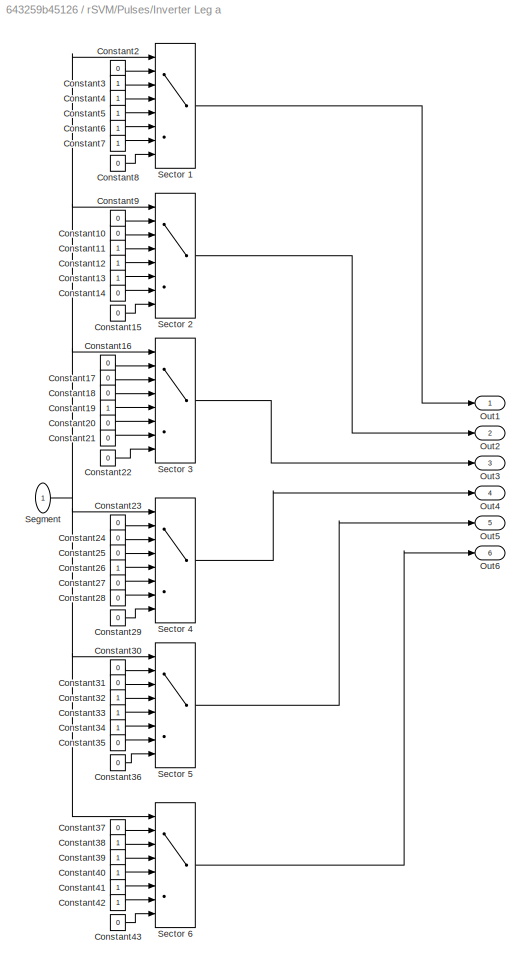
BLOCK [SubSystem] rSVM/Pulses/Inverter Leg a
  FunctionWithSeparateData = off
  MaskHideContents = off
  MinAlgLoopOccurrences = off
  Opaque = off
  Ports = [1, 6]
  PropExecContextOutsideSubsystem = off
  RTWSystemCode = Auto
  RequestExecContextInheritance = off
BLOCK [Constant] rSVM/Pulses/Inverter Leg a/Constant10
  Value = 0
BLOCK [Constant] rSVM/Pulses/Inverter Leg a/Constant11
BLOCK [Constant] rSVM/Pulses/Inverter Leg a/Constant12
BLOCK [Constant] rSVM/Pulses/Inverter Leg a/Constant13
BLOCK [Constant] rSVM/Pulses/Inverter Leg a/Constant14
  Value = 0
BLOCK [Constant] rSVM/Pulses/Inverter Leg a/Constant15
  Value = 0
BLOCK [Constant] rSVM/Pulses/Inverter Leg a/Constant16
  Value = 0
BLOCK [Constant] rSVM/Pulses/Inverter Leg a/Constant17
  Value = 0
BLOCK [Constant] rSVM/Pulses/Inverter Leg a/Constant18
  Value = 0
BLOCK [Constant] rSVM/Pulses/Inverter Leg a/Constant19
BLOCK [Constant] rSVM/Pulses/Inverter Leg a/Constant2
  Value = 0
BLOCK [Constant] rSVM/Pulses/Inverter Leg a/Constant20
  Value = 0
BLOCK [Constant] rSVM/Pulses/Inverter Leg a/Constant21
  Value = 0
BLOCK [Constant] rSVM/Pulses/Inverter Leg a/Constant22
  Value = 0
BLOCK [Constant] rSVM/Pulses/Inverter Leg a/Constant23
  Value = 0
BLOCK [Constant] rSVM/Pulses/Inverter Leg a/Constant24
  Value = 0
BLOCK [Constant] rSVM/Pulses/Inverter Leg a/Constant25
  Value = 0
BLOCK [Constant] rSVM/Pulses/Inverter Leg a/Constant26
BLOCK [Constant] rSVM/Pulses/Inverter Leg a/Constant27
  Value = 0
BLOCK [Constant] rSVM/Pulses/Inverter Leg a/Constant28
  Value = 0
BLOCK [Constant] rSVM/Pulses/Inverter Leg a/Constant29
  Value = 0
BLOCK [Constant] rSVM/Pulses/Inverter Leg a/Constant3
BLOCK [Constant] rSVM/Pulses/Inverter Leg a/Constant30
  Value = 0
BLOCK [Constant] rSVM/Pulses/Inverter Leg a/Constant31
  Value = 0
BLOCK [Constant] rSVM/Pulses/Inverter Leg a/Constant32
BLOCK [Constant] rSVM/Pulses/Inverter Leg a/Constant33
BLOCK [Constant] rSVM/Pulses/Inverter Leg a/Constant34
BLOCK [Constant] rSVM/Pulses/Inverter Leg a/Constant35
  Value = 0
BLOCK [Constant] rSVM/Pulses/Inverter Leg a/Constant36
  Value = 0
BLOCK [Constant] rSVM/Pulses/Inverter Leg a/Constant37
  Value = 0
BLOCK [Constant] rSVM/Pulses/Inverter Leg a/Constant38
BLOCK [Constant] rSVM/Pulses/Inverter Leg a/Constant39
BLOCK [Constant] rSVM/Pulses/Inverter Leg a/Constant4
BLOCK [Constant] rSVM/Pulses/Inverter Leg a/Constant40
BLOCK [Constant] rSVM/Pulses/Inverter Leg a/Constant41
BLOCK [Constant] rSVM/Pulses/Inverter Leg a/Constant42
BLOCK [Constant] rSVM/Pulses/Inverter Leg a/Constant43
  Value = 0
BLOCK [Constant] rSVM/Pulses/Inverter Leg a/Constant5
BLOCK [Constant] rSVM/Pulses/Inverter Leg a/Constant6
BLOCK [Constant] rSVM/Pulses/Inverter Leg a/Constant7
BLOCK [Constant] rSVM/Pulses/Inverter Leg a/Constant8
  Value = 0
BLOCK [Constant] rSVM/Pulses/Inverter Leg a/Constant9
  Value = 0
BLOCK [Outport] rSVM/Pulses/Inverter Leg a/Out1
  IconDisplay = Port number
BLOCK [Outport] rSVM/Pulses/Inverter Leg a/Out2
  IconDisplay = Port number
  Port = 2
BLOCK [Outport] rSVM/Pulses/Inverter Leg a/Out3
  IconDisplay = Port number
  Port = 3
BLOCK [Outport] rSVM/Pulses/Inverter Leg a/Out4
  IconDisplay = Port number
  Port = 4
BLOCK [Outport] rSVM/Pulses/Inverter Leg a/Out5
  IconDisplay = Port number
  Port = 5
BLOCK [Outport] rSVM/Pulses/Inverter Leg a/Out6
  IconDisplay = Port number
  Port = 6
BLOCK [MultiPortSwitch] rSVM/Pulses/Inverter Leg a/Sector 1
  InputSameDT = off
  Inputs = 7
  Ports = [8, 1]
  SaturateOnIntegerOverflow = off
BLOCK [MultiPortSwitch] rSVM/Pulses/Inverter Leg a/Sector 2
  InputSameDT = off
  Inputs = 7
  Ports = [8, 1]
  SaturateOnIntegerOverflow = off
BLOCK [MultiPortSwitch] rSVM/Pulses/Inverter Leg a/Sector 3
  InputSameDT = off
  Inputs = 7
  Ports = [8, 1]
  SaturateOnIntegerOverflow = off
BLOCK [MultiPortSwitch] rSVM/Pulses/Inverter Leg a/Sector 4
  InputSameDT = off
  Inputs = 7
  Ports = [8, 1]
  SaturateOnIntegerOverflow = off
BLOCK [MultiPortSwitch] rSVM/Pulses/Inverter Leg a/Sector 5
  InputSameDT = off
  Inputs = 7
  Ports = [8, 1]
  SaturateOnIntegerOverflow = off
BLOCK [MultiPortSwitch] rSVM/Pulses/Inverter Leg a/Sector 6
  InputSameDT = off
  Inputs = 7
  Ports = [8, 1]
  SaturateOnIntegerOverflow = off
BLOCK [Inport] rSVM/Pulses/Inverter Leg a/Segment
  IconDisplay = Port number
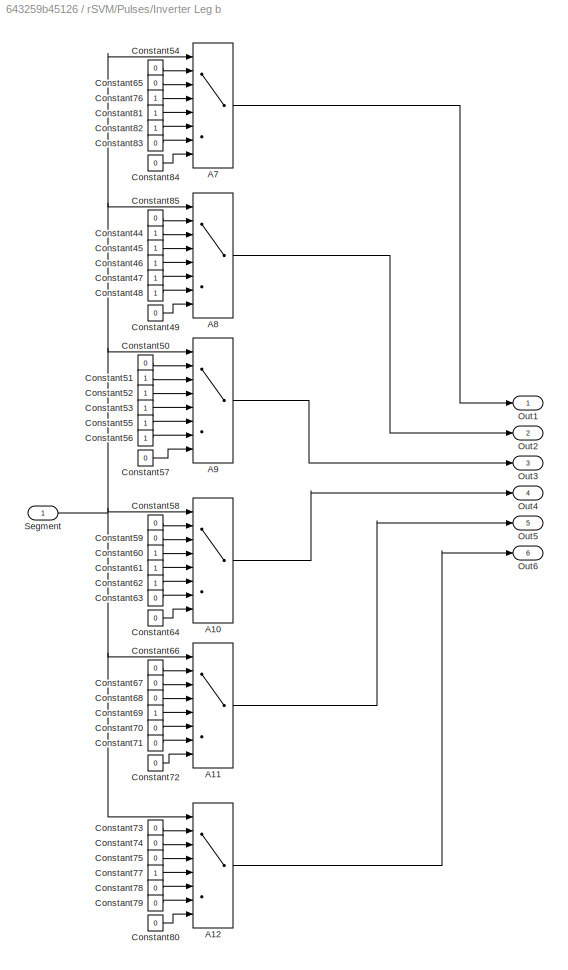
BLOCK [SubSystem] rSVM/Pulses/Inverter Leg b
  FunctionWithSeparateData = off
  MaskHideContents = off
  MinAlgLoopOccurrences = off
  Opaque = off
  Ports = [1, 6]
  PropExecContextOutsideSubsystem = off
  RTWSystemCode = Auto
  RequestExecContextInheritance = off
BLOCK [MultiPortSwitch] rSVM/Pulses/Inverter Leg b/A10
  InputSameDT = off
  Inputs = 7
  Ports = [8, 1]
  SaturateOnIntegerOverflow = off
BLOCK [MultiPortSwitch] rSVM/Pulses/Inverter Leg b/A11
  InputSameDT = off
  Inputs = 7
  Ports = [8, 1]
  SaturateOnIntegerOverflow = off
BLOCK [MultiPortSwitch] rSVM/Pulses/Inverter Leg b/A12
  InputSameDT = off
  Inputs = 7
  Ports = [8, 1]
  SaturateOnIntegerOverflow = off
BLOCK [MultiPortSwitch] rSVM/Pulses/Inverter Leg b/A7
  InputSameDT = off
  Inputs = 7
  Ports = [8, 1]
  SaturateOnIntegerOverflow = off
BLOCK [MultiPortSwitch] rSVM/Pulses/Inverter Leg b/A8
  InputSameDT = off
  Inputs = 7
  Ports = [8, 1]
  SaturateOnIntegerOverflow = off
BLOCK [MultiPortSwitch] rSVM/Pulses/Inverter Leg b/A9
  InputSameDT = off
  Inputs = 7
  Ports = [8, 1]
  SaturateOnIntegerOverflow = off
BLOCK [Constant] rSVM/Pulses/Inverter Leg b/Constant44
BLOCK [Constant] rSVM/Pulses/Inverter Leg b/Constant45
BLOCK [Constant] rSVM/Pulses/Inverter Leg b/Constant46
BLOCK [Constant] rSVM/Pulses/Inverter Leg b/Constant47
BLOCK [Constant] rSVM/Pulses/Inverter Leg b/Constant48
BLOCK [Constant] rSVM/Pulses/Inverter Leg b/Constant49
  Value = 0
BLOCK [Constant] rSVM/Pulses/Inverter Leg b/Constant50
  Value = 0
BLOCK [Constant] rSVM/Pulses/Inverter Leg b/Constant51
BLOCK [Constant] rSVM/Pulses/Inverter Leg b/Constant52
BLOCK [Constant] rSVM/Pulses/Inverter Leg b/Constant53
BLOCK [Constant] rSVM/Pulses/Inverter Leg b/Constant54
  Value = 0
BLOCK [Constant] rSVM/Pulses/Inverter Leg b/Constant55
BLOCK [Constant] rSVM/Pulses/Inverter Leg b/Constant56
BLOCK [Constant] rSVM/Pulses/Inverter Leg b/Constant57
  Value = 0
BLOCK [Constant] rSVM/Pulses/Inverter Leg b/Constant58
  Value = 0
BLOCK [Constant] rSVM/Pulses/Inverter Leg b/Constant59
  Value = 0
BLOCK [Constant] rSVM/Pulses/Inverter Leg b/Constant60
BLOCK [Constant] rSVM/Pulses/Inverter Leg b/Constant61
BLOCK [Constant] rSVM/Pulses/Inverter Leg b/Constant62
BLOCK [Constant] rSVM/Pulses/Inverter Leg b/Constant63
  Value = 0
BLOCK [Constant] rSVM/Pulses/Inverter Leg b/Constant64
  Value = 0
BLOCK [Constant] rSVM/Pulses/Inverter Leg b/Constant65
  Value = 0
BLOCK [Constant] rSVM/Pulses/Inverter Leg b/Constant66
  Value = 0
BLOCK [Constant] rSVM/Pulses/Inverter Leg b/Constant67
  Value = 0
BLOCK [Constant] rSVM/Pulses/Inverter Leg b/Constant68
  Value = 0
BLOCK [Constant] rSVM/Pulses/Inverter Leg b/Constant69
BLOCK [Constant] rSVM/Pulses/Inverter Leg b/Constant70
  Value = 0
BLOCK [Constant] rSVM/Pulses/Inverter Leg b/Constant71
  Value = 0
BLOCK [Constant] rSVM/Pulses/Inverter Leg b/Constant72
  Value = 0
BLOCK [Constant] rSVM/Pulses/Inverter Leg b/Constant73
  Value = 0
BLOCK [Constant] rSVM/Pulses/Inverter Leg b/Constant74
  Value = 0
BLOCK [Constant] rSVM/Pulses/Inverter Leg b/Constant75
  Value = 0
BLOCK [Constant] rSVM/Pulses/Inverter Leg b/Constant76
BLOCK [Constant] rSVM/Pulses/Inverter Leg b/Constant77
BLOCK [Constant] rSVM/Pulses/Inverter Leg b/Constant78
  Value = 0
BLOCK [Constant] rSVM/Pulses/Inverter Leg b/Constant79
  Value = 0
BLOCK [Constant] rSVM/Pulses/Inverter Leg b/Constant80
  Value = 0
BLOCK [Constant] rSVM/Pulses/Inverter Leg b/Constant81
BLOCK [Constant] rSVM/Pulses/Inverter Leg b/Constant82
BLOCK [Constant] rSVM/Pulses/Inverter Leg b/Constant83
  Value = 0
BLOCK [Constant] rSVM/Pulses/Inverter Leg b/Constant84
  Value = 0
BLOCK [Constant] rSVM/Pulses/Inverter Leg b/Constant85
  Value = 0
BLOCK [Outport] rSVM/Pulses/Inverter Leg b/Out1
  IconDisplay = Port number
BLOCK [Outport] rSVM/Pulses/Inverter Leg b/Out2
  IconDisplay = Port number
  Port = 2
BLOCK [Outport] rSVM/Pulses/Inverter Leg b/Out3
  IconDisplay = Port number
  Port = 3
BLOCK [Outport] rSVM/Pulses/Inverter Leg b/Out4
  IconDisplay = Port number
  Port = 4
BLOCK [Outport] rSVM/Pulses/Inverter Leg b/Out5
  IconDisplay = Port number
  Port = 5
BLOCK [Outport] rSVM/Pulses/Inverter Leg b/Out6
  IconDisplay = Port number
  Port = 6
BLOCK [Inport] rSVM/Pulses/Inverter Leg b/Segment
  IconDisplay = Port number
BLOCK [SubSystem] rSVM/Pulses/Inverter Leg c
  FunctionWithSeparateData = off
  MaskHideContents = off
  MinAlgLoopOccurrences = off
  Opaque = off
  Ports = [1, 6]
  PropExecContextOutsideSubsystem = off
  RTWSystemCode = Auto
  RequestExecContextInheritance = off
BLOCK [MultiPortSwitch] rSVM/Pulses/Inverter Leg c/A14
  InputSameDT = off
  Inputs = 7
  Ports = [8, 1]
  SaturateOnIntegerOverflow = off
BLOCK [MultiPortSwitch] rSVM/Pulses/Inverter Leg c/A15
  InputSameDT = off
  Inputs = 7
  Ports = [8, 1]
  SaturateOnIntegerOverflow = off
BLOCK [MultiPortSwitch] rSVM/Pulses/Inverter Leg c/A16
  InputSameDT = off
  Inputs = 7
  Ports = [8, 1]
  SaturateOnIntegerOverflow = off
BLOCK [MultiPortSwitch] rSVM/Pulses/Inverter Leg c/A17
  InputSameDT = off
  Inputs = 7
  Ports = [8, 1]
  SaturateOnIntegerOverflow = off
BLOCK [MultiPortSwitch] rSVM/Pulses/Inverter Leg c/A18
  InputSameDT = off
  Inputs = 7
  Ports = [8, 1]
  SaturateOnIntegerOverflow = off
BLOCK [MultiPortSwitch] rSVM/Pulses/Inverter Leg c/A19
  InputSameDT = off
  Inputs = 7
  Ports = [8, 1]
  SaturateOnIntegerOverflow = off
BLOCK [Constant] rSVM/Pulses/Inverter Leg c/Constant100
  Value = 0
BLOCK [Constant] rSVM/Pulses/Inverter Leg c/Constant101
BLOCK [Constant] rSVM/Pulses/Inverter Leg c/Constant102
BLOCK [Constant] rSVM/Pulses/Inverter Leg c/Constant103
BLOCK [Constant] rSVM/Pulses/Inverter Leg c/Constant104
BLOCK [Constant] rSVM/Pulses/Inverter Leg c/Constant105
BLOCK [Constant] rSVM/Pulses/Inverter Leg c/Constant106
  Value = 0
BLOCK [Constant] rSVM/Pulses/Inverter Leg c/Constant107
  Value = 0
BLOCK [Constant] rSVM/Pulses/Inverter Leg c/Constant108
  Value = 0
BLOCK [Constant] rSVM/Pulses/Inverter Leg c/Constant109
BLOCK [Constant] rSVM/Pulses/Inverter Leg c/Constant110
BLOCK [Constant] rSVM/Pulses/Inverter Leg c/Constant111
BLOCK [Constant] rSVM/Pulses/Inverter Leg c/Constant112
BLOCK [Constant] rSVM/Pulses/Inverter Leg c/Constant113
BLOCK [Constant] rSVM/Pulses/Inverter Leg c/Constant114
  Value = 0
BLOCK [Constant] rSVM/Pulses/Inverter Leg c/Constant115
  Value = 0
BLOCK [Constant] rSVM/Pulses/Inverter Leg c/Constant116
  Value = 0
BLOCK [Constant] rSVM/Pulses/Inverter Leg c/Constant117
BLOCK [Constant] rSVM/Pulses/Inverter Leg c/Constant118
  Value = 0
BLOCK [Constant] rSVM/Pulses/Inverter Leg c/Constant119
BLOCK [Constant] rSVM/Pulses/Inverter Leg c/Constant120
BLOCK [Constant] rSVM/Pulses/Inverter Leg c/Constant121
  Value = 0
BLOCK [Constant] rSVM/Pulses/Inverter Leg c/Constant122
  Value = 0
BLOCK [Constant] rSVM/Pulses/Inverter Leg c/Constant123
BLOCK [Constant] rSVM/Pulses/Inverter Leg c/Constant124
  Value = 0
BLOCK [Constant] rSVM/Pulses/Inverter Leg c/Constant125
  Value = 0
BLOCK [Constant] rSVM/Pulses/Inverter Leg c/Constant126
  Value = 0
BLOCK [Constant] rSVM/Pulses/Inverter Leg c/Constant127
  Value = 0
BLOCK [Constant] rSVM/Pulses/Inverter Leg c/Constant86
  Value = 0
BLOCK [Constant] rSVM/Pulses/Inverter Leg c/Constant87
  Value = 0
BLOCK [Constant] rSVM/Pulses/Inverter Leg c/Constant88
BLOCK [Constant] rSVM/Pulses/Inverter Leg c/Constant89
  Value = 0
BLOCK [Constant] rSVM/Pulses/Inverter Leg c/Constant90
  Value = 0
BLOCK [Constant] rSVM/Pulses/Inverter Leg c/Constant91
  Value = 0
BLOCK [Constant] rSVM/Pulses/Inverter Leg c/Constant92
  Value = 0
BLOCK [Constant] rSVM/Pulses/Inverter Leg c/Constant93
  Value = 0
BLOCK [Constant] rSVM/Pulses/Inverter Leg c/Constant94
BLOCK [Constant] rSVM/Pulses/Inverter Leg c/Constant95
BLOCK [Constant] rSVM/Pulses/Inverter Leg c/Constant96
  Value = 0
BLOCK [Constant] rSVM/Pulses/Inverter Leg c/Constant97
BLOCK [Constant] rSVM/Pulses/Inverter Leg c/Constant98
  Value = 0
BLOCK [Constant] rSVM/Pulses/Inverter Leg c/Constant99
  Value = 0
BLOCK [Outport] rSVM/Pulses/Inverter Leg c/Out1
  IconDisplay = Port number
BLOCK [Outport] rSVM/Pulses/Inverter Leg c/Out2
  IconDisplay = Port number
  Port = 2
BLOCK [Outport] rSVM/Pulses/Inverter Leg c/Out3
  IconDisplay = Port number
  Port = 3
BLOCK [Outport] rSVM/Pulses/Inverter Leg c/Out4
  IconDisplay = Port number
  Port = 4
BLOCK [Outport] rSVM/Pulses/Inverter Leg c/Out5
  IconDisplay = Port number
  Port = 5
BLOCK [Outport] rSVM/Pulses/Inverter Leg c/Out6
  IconDisplay = Port number
  Port = 6
BLOCK [Inport] rSVM/Pulses/Inverter Leg c/Segment
  IconDisplay = Port number
BLOCK [Logic] rSVM/Pulses/Logical Operator
  AllPortsSameDT = off
  Operator = NOT
  Ports = [1, 1]
BLOCK [Logic] rSVM/Pulses/Logical Operator1
  AllPortsSameDT = off
  Operator = NOT
  Ports = [1, 1]
BLOCK [Logic] rSVM/Pulses/Logical Operator2
  AllPortsSameDT = off
  Operator = NOT
  Ports = [1, 1]
BLOCK [Mux] rSVM/Pulses/Mux
  DisplayOption = bar
  Inputs = 6
  Ports = [6, 1]
BLOCK [Scope] rSVM/Pulses/Scope1
  Floating = off
  LimitDataPoints = off
  NumInputPorts = 1
  Ports = [1]
  SaveName = ScopeData2
  ShowLegends = off
BLOCK [Scope] rSVM/Pulses/Scope3
  DataFormat = StructureWithTime
  Floating = off
  LimitDataPoints = off
  NumInputPorts = 1
  Ports = [1]
  SampleTime = 0
  SaveName = ScopeData22
  ShowLegends = off
  YMax = 8
  YMin = 0
  ZoomMode = xonly
BLOCK [Inport] rSVM/Pulses/Sector
  IconDisplay = Port number
BLOCK [MultiPortSwitch] rSVM/Pulses/Sector Select a
  DiagnosticForDefault = None
  InputSameDT = off
  Inputs = 6
  Ports = [7, 1]
  SaturateOnIntegerOverflow = off
BLOCK [MultiPortSwitch] rSVM/Pulses/Sector Select b
  DiagnosticForDefault = None
  InputSameDT = off
  Inputs = 6
  Ports = [7, 1]
  SaturateOnIntegerOverflow = off
BLOCK [MultiPortSwitch] rSVM/Pulses/Sector Select c
  DiagnosticForDefault = None
  InputSameDT = off
  Inputs = 6
  Ports = [7, 1]
  SaturateOnIntegerOverflow = off
BLOCK [SubSystem] rSVM/Pulses/Switching Segment Calculator
  FunctionWithSeparateData = off
  MaskHideContents = off
  MinAlgLoopOccurrences = off
  Opaque = off
  Ports = [3, 1]
  PropExecContextOutsideSubsystem = off
  RTWSystemCode = Auto
  RequestExecContextInheritance = off
BLOCK [Sum] rSVM/Pulses/Switching Segment Calculator/Add
  InputSameDT = off
  OutDataTypeStr = Inherit: Inherit via internal rule
  Ports = [2, 1]
  SaturateOnIntegerOverflow = off
BLOCK [Clock] rSVM/Pulses/Switching Segment Calculator/Clock
BLOCK [Constant] rSVM/Pulses/Switching Segment Calculator/Constant
  Value = 1/Fs
BLOCK [Constant] rSVM/Pulses/Switching Segment Calculator/Constant1
BLOCK [DataTypeConversion] rSVM/Pulses/Switching Segment Calculator/Data Type Conversion
  OutDataTypeStr = double
  RndMeth = Floor
  SaturateOnIntegerOverflow = off
BLOCK [DataTypeConversion] rSVM/Pulses/Switching Segment Calculator/Data Type Conversion1
  OutDataTypeStr = double
  RndMeth = Floor
  SaturateOnIntegerOverflow = off
BLOCK [DataTypeConversion] rSVM/Pulses/Switching Segment Calculator/Data Type Conversion2
  OutDataTypeStr = double
  RndMeth = Floor
  SaturateOnIntegerOverflow = off
BLOCK [DataTypeConversion] rSVM/Pulses/Switching Segment Calculator/Data Type Conversion3
  OutDataTypeStr = double
  RndMeth = Floor
  SaturateOnIntegerOverflow = off
BLOCK [DataTypeConversion] rSVM/Pulses/Switching Segment Calculator/Data Type Conversion4
  OutDataTypeStr = double
  RndMeth = Floor
  SaturateOnIntegerOverflow = off
BLOCK [DataTypeConversion] rSVM/Pulses/Switching Segment Calculator/Data Type Conversion5
  OutDataTypeStr = double
  RndMeth = Floor
  SaturateOnIntegerOverflow = off
BLOCK [DataTypeConversion] rSVM/Pulses/Switching Segment Calculator/Data Type Conversion6
  OutDataTypeStr = double
  RndMeth = Floor
  SaturateOnIntegerOverflow = off
BLOCK [Gain] rSVM/Pulses/Switching Segment Calculator/Gain
  Gain = 1/4
  OutDataTypeStr = Inherit: Inherit via internal rule
  ParamDataTypeStr = Inherit: Inherit via internal rule
  SaturateOnIntegerOverflow = off
BLOCK [Gain] rSVM/Pulses/Switching Segment Calculator/Gain1
  Gain = 1/2
  OutDataTypeStr = Inherit: Inherit via internal rule
  ParamDataTypeStr = Inherit: Inherit via internal rule
  SaturateOnIntegerOverflow = off
BLOCK [Gain] rSVM/Pulses/Switching Segment Calculator/Gain2
  Gain = 1/2
  OutDataTypeStr = Inherit: Inherit via internal rule
  ParamDataTypeStr = Inherit: Inherit via internal rule
  SaturateOnIntegerOverflow = off
BLOCK [Gain] rSVM/Pulses/Switching Segment Calculator/Gain3
  Gain = 1/2
  OutDataTypeStr = Inherit: Inherit via internal rule
  ParamDataTypeStr = Inherit: Inherit via internal rule
  SaturateOnIntegerOverflow = off
BLOCK [Gain] rSVM/Pulses/Switching Segment Calculator/Gain4
  Gain = 1/2
  OutDataTypeStr = Inherit: Inherit via internal rule
  ParamDataTypeStr = Inherit: Inherit via internal rule
  SaturateOnIntegerOverflow = off
BLOCK [Gain] rSVM/Pulses/Switching Segment Calculator/Gain5
  Gain = 1/2
  OutDataTypeStr = Inherit: Inherit via internal rule
  ParamDataTypeStr = Inherit: Inherit via internal rule
  SaturateOnIntegerOverflow = off
BLOCK [Gain] rSVM/Pulses/Switching Segment Calculator/Gain6
  Gain = 1/4
  OutDataTypeStr = Inherit: Inherit via internal rule
  ParamDataTypeStr = Inherit: Inherit via internal rule
  SaturateOnIntegerOverflow = off
BLOCK [Math] rSVM/Pulses/Switching Segment Calculator/Math Function
  Operator = rem
  Ports = [2, 1]
BLOCK [RelationalOperator] rSVM/Pulses/Switching Segment Calculator/Relational Operator
  InputSameDT = off
  OutDataTypeStr = boolean
  Ports = [2, 1]
BLOCK [RelationalOperator] rSVM/Pulses/Switching Segment Calculator/Relational Operator1
  InputSameDT = off
  OutDataTypeStr = boolean
  Ports = [2, 1]
BLOCK [RelationalOperator] rSVM/Pulses/Switching Segment Calculator/Relational Operator2
  InputSameDT = off
  OutDataTypeStr = boolean
  Ports = [2, 1]
BLOCK [RelationalOperator] rSVM/Pulses/Switching Segment Calculator/Relational Operator3
  InputSameDT = off
  OutDataTypeStr = boolean
  Ports = [2, 1]
BLOCK [RelationalOperator] rSVM/Pulses/Switching Segment Calculator/Relational Operator4
  InputSameDT = off
  OutDataTypeStr = boolean
  Ports = [2, 1]
BLOCK [RelationalOperator] rSVM/Pulses/Switching Segment Calculator/Relational Operator5
  InputSameDT = off
  OutDataTypeStr = boolean
  Ports = [2, 1]
BLOCK [RelationalOperator] rSVM/Pulses/Switching Segment Calculator/Relational Operator6
  InputSameDT = off
  OutDataTypeStr = boolean
  Ports = [2, 1]
BLOCK [Outport] rSVM/Pulses/Switching Segment Calculator/Segment
  IconDisplay = Port number
BLOCK [Sum] rSVM/Pulses/Switching Segment Calculator/Sum
  InputSameDT = off
  OutDataTypeStr = Inherit: Inherit via internal rule
  Ports = [2, 1]
  SaturateOnIntegerOverflow = off
BLOCK [Sum] rSVM/Pulses/Switching Segment Calculator/Sum1
  InputSameDT = off
  OutDataTypeStr = Inherit: Inherit via internal rule
  Ports = [2, 1]
  SaturateOnIntegerOverflow = off
BLOCK [Sum] rSVM/Pulses/Switching Segment Calculator/Sum2
  InputSameDT = off
  OutDataTypeStr = Inherit: Inherit via internal rule
  Ports = [2, 1]
  SaturateOnIntegerOverflow = off
BLOCK [Sum] rSVM/Pulses/Switching Segment Calculator/Sum3
  InputSameDT = off
  OutDataTypeStr = Inherit: Inherit via internal rule
  Ports = [2, 1]
  SaturateOnIntegerOverflow = off
BLOCK [Sum] rSVM/Pulses/Switching Segment Calculator/Sum4
  InputSameDT = off
  OutDataTypeStr = Inherit: Inherit via internal rule
  Ports = [2, 1]
  SaturateOnIntegerOverflow = off
BLOCK [Sum] rSVM/Pulses/Switching Segment Calculator/Sum5
  InputSameDT = off
  OutDataTypeStr = Inherit: Inherit via internal rule
  Ports = [2, 1]
  SaturateOnIntegerOverflow = off
BLOCK [Inport] rSVM/Pulses/Switching Segment Calculator/T0
  IconDisplay = Port number
BLOCK [Inport] rSVM/Pulses/Switching Segment Calculator/Ta
  IconDisplay = Port number
  Port = 2
BLOCK [Inport] rSVM/Pulses/Switching Segment Calculator/Tb
  IconDisplay = Port number
  Port = 3
BLOCK [Sum] rSVM/Pulses/Switching Segment Calculator/netsum
  Inputs = 7
  Ports = [7, 1]
BLOCK [Inport] rSVM/Pulses/T0
  IconDisplay = Port number
  Port = 4
BLOCK [Inport] rSVM/Pulses/Ta1
  IconDisplay = Port number
  Port = 2
BLOCK [Inport] rSVM/Pulses/Tb1
  IconDisplay = Port number
  Port = 3
BLOCK [Saturate] rSVM/Saturation
  InputPortMap = u0
  LowerLimit = 0.01
  Ports = [1, 1]
  SampleTime = 1/Fsampling
  UpperLimit = 1
BLOCK [SubSystem] rSVM/Sector judge
  FunctionWithSeparateData = off
  MaskHideContents = off
  MinAlgLoopOccurrences = off
  Opaque = off
  Ports = [1, 2]
  PropExecContextOutsideSubsystem = off
  RTWSystemCode = Auto
  RequestExecContextInheritance = off
BLOCK [Sum] rSVM/Sector judge/Add
  InputSameDT = off
  OutDataTypeStr = Inherit: Inherit via internal rule
  Ports = [2, 1]
  SaturateOnIntegerOverflow = off
BLOCK [Outport] rSVM/Sector judge/Cal_theta
  IconDisplay = Port number
  Port = 2
BLOCK [Constant] rSVM/Sector judge/Constant
  Value = 2*pi
BLOCK [Constant] rSVM/Sector judge/Constant1
  OutDataTypeStr = boolean
BLOCK [Constant] rSVM/Sector judge/Constant2
  Value = 2*pi
BLOCK [Gain] rSVM/Sector judge/Gain1
  Gain = 3/pi
  OutDataTypeStr = Inherit: Inherit via internal rule
  ParamDataTypeStr = Inherit: Inherit via internal rule
  SaturateOnIntegerOverflow = off
BLOCK [Gain] rSVM/Sector judge/Gain2
  Gain = pi/3
  OutDataTypeStr = Inherit: Inherit via internal rule
  ParamDataTypeStr = Inherit: Inherit via internal rule
  SaturateOnIntegerOverflow = off
BLOCK [Math] rSVM/Sector judge/Math Function1
  Operator = rem
  Ports = [2, 1]
BLOCK [Rounding] rSVM/Sector judge/Rounding Function
BLOCK [Outport] rSVM/Sector judge/Sector
  IconDisplay = Port number
BLOCK [Sum] rSVM/Sector judge/Sum1
  IconShape = round
  InputSameDT = off
  Inputs = |++
  OutDataTypeStr = Inherit: Inherit via internal rule
  Ports = [2, 1]
BLOCK [Sum] rSVM/Sector judge/Sum2
  IconShape = round
  InputSameDT = off
  Inputs = |-+
  OutDataTypeStr = Inherit: Inherit via internal rule
  Ports = [2, 1]
  SaturateOnIntegerOverflow = off
BLOCK [Inport] rSVM/Sector judge/theta
  IconDisplay = Port number
BLOCK [Constant] rSVM/Ts
  Value = Ts
BLOCK [Inport] rSVM/Varef
  IconDisplay = Port number
BLOCK [Inport] rSVM/Vbref
  IconDisplay = Port number
  Port = 2
BLOCK [Inport] rSVM/Vcref
  IconDisplay = Port number
  Port = 3
BLOCK [ZeroOrderHold] rSVM/Zero-Order Hold
  SampleTime = Ts/2
BLOCK [ZeroOrderHold] rSVM/Zero-Order Hold1
  SampleTime = Ts/2
BLOCK [SubSystem] rSVM/abc//alphabeta
  FunctionWithSeparateData = off
  MaskHideContents = off
  MinAlgLoopOccurrences = off
  Opaque = off
  Ports = [1, 2]
  PropExecContextOutsideSubsystem = off
  RTWSystemCode = Auto
  RequestExecContextInheritance = off
BLOCK [Fcn] rSVM/abc//alphabeta/Beta1
  Expr = (1/(3^.5))*(u(1)+2*u(2))
BLOCK [Inport] rSVM/abc//alphabeta/Vabc
  IconDisplay = Port number
BLOCK [Outport] rSVM/abc//alphabeta/Valpha
  IconDisplay = Port number
BLOCK [Outport] rSVM/abc//alphabeta/Vbeta
  IconDisplay = Port number
  Port = 2
BLOCK [Fcn] rSVM/abc//alphabeta/alpha1
  Expr = u(1)
BLOCK [Gain] rSVM/constant
  Gain = 3^0.5
  OutDataTypeStr = Inherit: Inherit via internal rule
  ParamDataTypeStr = Inherit: Inherit via internal rule
  SaturateOnIntegerOverflow = off
BLOCK [Gain] rSVM/constant2
  Gain = (1/Vbase)
  OutDataTypeStr = Inherit: Inherit via internal rule
  ParamDataTypeStr = Inherit: Inherit via internal rule
  SaturateOnIntegerOverflow = off
BLOCK [Scope] rSVM/ma
  Floating = off
  LimitDataPoints = off
  NumInputPorts = 1
  Ports = [1]
  SaveName = ScopeData5
  ShowLegends = off
BLOCK [Scope] rSVM/theta
  Floating = off
  LimitDataPoints = off
  NumInputPorts = 1
  Ports = [1]
  SaveName = ScopeData6
  ShowLegends = off
  YMax = 6.5
  YMin = 0
BLOCK [SubSystem] sSVM
  FunctionWithSeparateData = off
  MaskHideContents = off
  MinAlgLoopOccurrences = off
  Opaque = off
  Ports = [3, 1]
  PropExecContextOutsideSubsystem = off
  RTWSystemCode = Auto
  RequestExecContextInheritance = off
BLOCK [Sum] sSVM/Add
  InputSameDT = off
  OutDataTypeStr = Inherit: Inherit via internal rule
  Ports = [2, 1]
  SaturateOnIntegerOverflow = off
BLOCK [Reference] sSVM/Cartesian to Polar  REF=simulink_extras/Transformations/Cartesian to
Polar
  Ports = [2, 2]
  SourceBlock = simulink_extras/Transformations/Cartesian to\nPolar
  SourceType = Cart2Polar
BLOCK [Constant] sSVM/Constant
  Value = 2*pi
BLOCK [Constant] sSVM/Constant1
  Value = 2*pi
BLOCK [Product] sSVM/Divide
  InputSameDT = off
  Inputs = /*
  OutDataTypeStr = Inherit: Inherit via internal rule
  Ports = [2, 1]
  RndMeth = Floor
  SaturateOnIntegerOverflow = off
BLOCK [SubSystem] sSVM/Dwell Time Calculator
  FunctionWithSeparateData = off
  MaskHideContents = off
  MinAlgLoopOccurrences = off
  Opaque = off
  Ports = [3, 3]
  PropExecContextOutsideSubsystem = off
  RTWSystemCode = Auto
  RequestExecContextInheritance = off
BLOCK [Sum] sSVM/Dwell Time Calculator/Add
  InputSameDT = off
  Inputs = --+
  OutDataTypeStr = Inherit: Inherit via internal rule
  Ports = [3, 1]
  SaturateOnIntegerOverflow = off
BLOCK [Reference] sSVM/Dwell Time Calculator/Compare To Zero  REF=simulink/Logic and Bit
Operations/Compare
To Zero
  OutDataTypeStr = boolean
  Ports = [1, 1]
  SourceBlock = simulink/Logic and Bit\nOperations/Compare\nTo Zero
  SourceType = Compare To Zero
  ZeroCross = on
  relop = >=
BLOCK [DataTypeConversion] sSVM/Dwell Time Calculator/Data Type Conversion
  OutDataTypeStr = double
  RndMeth = Floor
  SaturateOnIntegerOverflow = off
BLOCK [Mux] sSVM/Dwell Time Calculator/Mux
  DisplayOption = bar
  Inputs = 3
  Ports = [3, 1]
BLOCK [Product] sSVM/Dwell Time Calculator/Product
  InputSameDT = off
  OutDataTypeStr = Inherit: Inherit via internal rule
  Ports = [2, 1]
  SaturateOnIntegerOverflow = off
BLOCK [Scope] sSVM/Dwell Time Calculator/Scope
  DataFormat = StructureWithTime
  Floating = off
  LimitDataPoints = off
  NumInputPorts = 3
  Ports = [3]
  SampleTime = 0
  SaveName = ScopeData12
  ShowLegends = off
  YMax = 5~5~5
  YMin = -5~-5~-5
  ZoomMode = yonly
BLOCK [Outport] sSVM/Dwell Time Calculator/T0
  IconDisplay = Port number
  Port = 3
BLOCK [Outport] sSVM/Dwell Time Calculator/Ta
  IconDisplay = Port number
BLOCK [Outport] sSVM/Dwell Time Calculator/Tb
  IconDisplay = Port number
  Port = 2
BLOCK [Inport] sSVM/Dwell Time Calculator/Theta
  IconDisplay = Port number
BLOCK [Inport] sSVM/Dwell Time Calculator/Ts
  IconDisplay = Port number
  Port = 3
BLOCK [Fcn] sSVM/Dwell Time Calculator/cTa
  Expr = u(2)*u(3)*sin((pi/3)-u(1))
BLOCK [Fcn] sSVM/Dwell Time Calculator/cTb
  Expr = u(2)*u(3)*sin(u(1))
BLOCK [Inport] sSVM/Dwell Time Calculator/ma
  IconDisplay = Port number
  Port = 2
BLOCK [From] sSVM/From4
  CloseFcn = tagdialog Close
  GotoTag = Vdc
  TagVisibility = global
BLOCK [Outport] sSVM/Gatings
  IconDisplay = Port number
BLOCK [Math] sSVM/Math Function
  Operator = rem
  Ports = [2, 1]
BLOCK [Mux] sSVM/Mux7
  DisplayOption = bar
  Inputs = 3
  Ports = [3, 1]
BLOCK [SubSystem] sSVM/Pulses
  FunctionWithSeparateData = off
  MaskHideContents = off
  MinAlgLoopOccurrences = off
  Opaque = off
  Ports = [4, 1]
  PropExecContextOutsideSubsystem = off
  RTWSystemCode = Auto
  RequestExecContextInheritance = off
BLOCK [DataTypeConversion] sSVM/Pulses/Data Type Conversion
  OutDataTypeStr = boolean
  RndMeth = Floor
  SaturateOnIntegerOverflow = off
BLOCK [DataTypeConversion] sSVM/Pulses/Data Type Conversion1
  OutDataTypeStr = boolean
  RndMeth = Floor
  SaturateOnIntegerOverflow = off
BLOCK [DataTypeConversion] sSVM/Pulses/Data Type Conversion2
  OutDataTypeStr = boolean
  RndMeth = Floor
  SaturateOnIntegerOverflow = off
BLOCK [Outport] sSVM/Pulses/Gating
  IconDisplay = Port number
BLOCK [SubSystem] sSVM/Pulses/Inverter Leg a
  FunctionWithSeparateData = off
  MaskHideContents = off
  MinAlgLoopOccurrences = off
  Opaque = off
  Ports = [1, 6]
  PropExecContextOutsideSubsystem = off
  RTWSystemCode = Auto
  RequestExecContextInheritance = off
BLOCK [Constant] sSVM/Pulses/Inverter Leg a/Constant10
  OutDataTypeStr = boolean
  Value = 0
BLOCK [Constant] sSVM/Pulses/Inverter Leg a/Constant11
  OutDataTypeStr = boolean
BLOCK [Constant] sSVM/Pulses/Inverter Leg a/Constant12
  OutDataTypeStr = boolean
BLOCK [Constant] sSVM/Pulses/Inverter Leg a/Constant13
  OutDataTypeStr = boolean
BLOCK [Constant] sSVM/Pulses/Inverter Leg a/Constant14
  OutDataTypeStr = boolean
  Value = 0
BLOCK [Constant] sSVM/Pulses/Inverter Leg a/Constant15
  OutDataTypeStr = boolean
  Value = 0
BLOCK [Constant] sSVM/Pulses/Inverter Leg a/Constant16
  OutDataTypeStr = boolean
  Value = 0
BLOCK [Constant] sSVM/Pulses/Inverter Leg a/Constant17
  OutDataTypeStr = boolean
  Value = 0
BLOCK [Constant] sSVM/Pulses/Inverter Leg a/Constant18
  OutDataTypeStr = boolean
  Value = 0
BLOCK [Constant] sSVM/Pulses/Inverter Leg a/Constant19
  OutDataTypeStr = boolean
BLOCK [Constant] sSVM/Pulses/Inverter Leg a/Constant2
  OutDataTypeStr = boolean
  Value = 0
BLOCK [Constant] sSVM/Pulses/Inverter Leg a/Constant20
  OutDataTypeStr = boolean
  Value = 0
BLOCK [Constant] sSVM/Pulses/Inverter Leg a/Constant21
  OutDataTypeStr = boolean
  Value = 0
BLOCK [Constant] sSVM/Pulses/Inverter Leg a/Constant22
  OutDataTypeStr = boolean
  Value = 0
BLOCK [Constant] sSVM/Pulses/Inverter Leg a/Constant23
  OutDataTypeStr = boolean
  Value = 0
BLOCK [Constant] sSVM/Pulses/Inverter Leg a/Constant24
  OutDataTypeStr = boolean
  Value = 0
BLOCK [Constant] sSVM/Pulses/Inverter Leg a/Constant25
  OutDataTypeStr = boolean
  Value = 0
BLOCK [Constant] sSVM/Pulses/Inverter Leg a/Constant26
  OutDataTypeStr = boolean
BLOCK [Constant] sSVM/Pulses/Inverter Leg a/Constant27
  OutDataTypeStr = boolean
  Value = 0
BLOCK [Constant] sSVM/Pulses/Inverter Leg a/Constant28
  OutDataTypeStr = boolean
  Value = 0
BLOCK [Constant] sSVM/Pulses/Inverter Leg a/Constant29
  OutDataTypeStr = boolean
  Value = 0
BLOCK [Constant] sSVM/Pulses/Inverter Leg a/Constant3
  OutDataTypeStr = boolean
BLOCK [Constant] sSVM/Pulses/Inverter Leg a/Constant30
  OutDataTypeStr = boolean
  Value = 0
BLOCK [Constant] sSVM/Pulses/Inverter Leg a/Constant31
  OutDataTypeStr = boolean
  Value = 0
BLOCK [Constant] sSVM/Pulses/Inverter Leg a/Constant32
  OutDataTypeStr = boolean
BLOCK [Constant] sSVM/Pulses/Inverter Leg a/Constant33
  OutDataTypeStr = boolean
BLOCK [Constant] sSVM/Pulses/Inverter Leg a/Constant34
  OutDataTypeStr = boolean
BLOCK [Constant] sSVM/Pulses/Inverter Leg a/Constant35
  OutDataTypeStr = boolean
  Value = 0
BLOCK [Constant] sSVM/Pulses/Inverter Leg a/Constant36
  OutDataTypeStr = boolean
  Value = 0
BLOCK [Constant] sSVM/Pulses/Inverter Leg a/Constant37
  OutDataTypeStr = boolean
  Value = 0
BLOCK [Constant] sSVM/Pulses/Inverter Leg a/Constant38
  OutDataTypeStr = boolean
BLOCK [Constant] sSVM/Pulses/Inverter Leg a/Constant39
  OutDataTypeStr = boolean
BLOCK [Constant] sSVM/Pulses/Inverter Leg a/Constant4
  OutDataTypeStr = boolean
BLOCK [Constant] sSVM/Pulses/Inverter Leg a/Constant40
  OutDataTypeStr = boolean
BLOCK [Constant] sSVM/Pulses/Inverter Leg a/Constant41
  OutDataTypeStr = boolean
BLOCK [Constant] sSVM/Pulses/Inverter Leg a/Constant42
  OutDataTypeStr = boolean
BLOCK [Constant] sSVM/Pulses/Inverter Leg a/Constant43
  OutDataTypeStr = boolean
  Value = 0
BLOCK [Constant] sSVM/Pulses/Inverter Leg a/Constant5
  OutDataTypeStr = boolean
BLOCK [Constant] sSVM/Pulses/Inverter Leg a/Constant6
  OutDataTypeStr = boolean
BLOCK [Constant] sSVM/Pulses/Inverter Leg a/Constant7
  OutDataTypeStr = boolean
BLOCK [Constant] sSVM/Pulses/Inverter Leg a/Constant8
  OutDataTypeStr = boolean
  Value = 0
BLOCK [Constant] sSVM/Pulses/Inverter Leg a/Constant9
  OutDataTypeStr = boolean
  Value = 0
BLOCK [Outport] sSVM/Pulses/Inverter Leg a/Out1
  IconDisplay = Port number
BLOCK [Outport] sSVM/Pulses/Inverter Leg a/Out2
  IconDisplay = Port number
  Port = 2
BLOCK [Outport] sSVM/Pulses/Inverter Leg a/Out3
  IconDisplay = Port number
  Port = 3
BLOCK [Outport] sSVM/Pulses/Inverter Leg a/Out4
  IconDisplay = Port number
  Port = 4
BLOCK [Outport] sSVM/Pulses/Inverter Leg a/Out5
  IconDisplay = Port number
  Port = 5
BLOCK [Outport] sSVM/Pulses/Inverter Leg a/Out6
  IconDisplay = Port number
  Port = 6
BLOCK [MultiPortSwitch] sSVM/Pulses/Inverter Leg a/Sector 1
  InputSameDT = off
  Inputs = 7
  Ports = [8, 1]
  SaturateOnIntegerOverflow = off
BLOCK [MultiPortSwitch] sSVM/Pulses/Inverter Leg a/Sector 2
  InputSameDT = off
  Inputs = 7
  Ports = [8, 1]
  SaturateOnIntegerOverflow = off
BLOCK [MultiPortSwitch] sSVM/Pulses/Inverter Leg a/Sector 3
  InputSameDT = off
  Inputs = 7
  Ports = [8, 1]
  SaturateOnIntegerOverflow = off
BLOCK [MultiPortSwitch] sSVM/Pulses/Inverter Leg a/Sector 4
  InputSameDT = off
  Inputs = 7
  Ports = [8, 1]
  SaturateOnIntegerOverflow = off
BLOCK [MultiPortSwitch] sSVM/Pulses/Inverter Leg a/Sector 5
  InputSameDT = off
  Inputs = 7
  Ports = [8, 1]
  SaturateOnIntegerOverflow = off
BLOCK [MultiPortSwitch] sSVM/Pulses/Inverter Leg a/Sector 6
  InputSameDT = off
  Inputs = 7
  Ports = [8, 1]
  SaturateOnIntegerOverflow = off
BLOCK [Inport] sSVM/Pulses/Inverter Leg a/Segment
  IconDisplay = Port number
BLOCK [SubSystem] sSVM/Pulses/Inverter Leg b
  FunctionWithSeparateData = off
  MaskHideContents = off
  MinAlgLoopOccurrences = off
  Opaque = off
  Ports = [1, 6]
  PropExecContextOutsideSubsystem = off
  RTWSystemCode = Auto
  RequestExecContextInheritance = off
BLOCK [MultiPortSwitch] sSVM/Pulses/Inverter Leg b/A10
  InputSameDT = off
  Inputs = 7
  Ports = [8, 1]
  SaturateOnIntegerOverflow = off
BLOCK [MultiPortSwitch] sSVM/Pulses/Inverter Leg b/A11
  InputSameDT = off
  Inputs = 7
  Ports = [8, 1]
  SaturateOnIntegerOverflow = off
BLOCK [MultiPortSwitch] sSVM/Pulses/Inverter Leg b/A12
  InputSameDT = off
  Inputs = 7
  Ports = [8, 1]
  SaturateOnIntegerOverflow = off
BLOCK [MultiPortSwitch] sSVM/Pulses/Inverter Leg b/A7
  InputSameDT = off
  Inputs = 7
  Ports = [8, 1]
  SaturateOnIntegerOverflow = off
BLOCK [MultiPortSwitch] sSVM/Pulses/Inverter Leg b/A8
  InputSameDT = off
  Inputs = 7
  Ports = [8, 1]
  SaturateOnIntegerOverflow = off
BLOCK [MultiPortSwitch] sSVM/Pulses/Inverter Leg b/A9
  InputSameDT = off
  Inputs = 7
  Ports = [8, 1]
  SaturateOnIntegerOverflow = off
BLOCK [Constant] sSVM/Pulses/Inverter Leg b/Constant44
BLOCK [Constant] sSVM/Pulses/Inverter Leg b/Constant45
BLOCK [Constant] sSVM/Pulses/Inverter Leg b/Constant46
BLOCK [Constant] sSVM/Pulses/Inverter Leg b/Constant47
BLOCK [Constant] sSVM/Pulses/Inverter Leg b/Constant48
BLOCK [Constant] sSVM/Pulses/Inverter Leg b/Constant49
  Value = 0
BLOCK [Constant] sSVM/Pulses/Inverter Leg b/Constant50
  Value = 0
BLOCK [Constant] sSVM/Pulses/Inverter Leg b/Constant51
BLOCK [Constant] sSVM/Pulses/Inverter Leg b/Constant52
BLOCK [Constant] sSVM/Pulses/Inverter Leg b/Constant53
BLOCK [Constant] sSVM/Pulses/Inverter Leg b/Constant54
  Value = 0
BLOCK [Constant] sSVM/Pulses/Inverter Leg b/Constant55
BLOCK [Constant] sSVM/Pulses/Inverter Leg b/Constant56
BLOCK [Constant] sSVM/Pulses/Inverter Leg b/Constant57
  Value = 0
BLOCK [Constant] sSVM/Pulses/Inverter Leg b/Constant58
  Value = 0
BLOCK [Constant] sSVM/Pulses/Inverter Leg b/Constant59
  Value = 0
BLOCK [Constant] sSVM/Pulses/Inverter Leg b/Constant60
BLOCK [Constant] sSVM/Pulses/Inverter Leg b/Constant61
BLOCK [Constant] sSVM/Pulses/Inverter Leg b/Constant62
BLOCK [Constant] sSVM/Pulses/Inverter Leg b/Constant63
  Value = 0
BLOCK [Constant] sSVM/Pulses/Inverter Leg b/Constant64
  Value = 0
BLOCK [Constant] sSVM/Pulses/Inverter Leg b/Constant65
  Value = 0
BLOCK [Constant] sSVM/Pulses/Inverter Leg b/Constant66
  Value = 0
BLOCK [Constant] sSVM/Pulses/Inverter Leg b/Constant67
  Value = 0
BLOCK [Constant] sSVM/Pulses/Inverter Leg b/Constant68
  Value = 0
BLOCK [Constant] sSVM/Pulses/Inverter Leg b/Constant69
BLOCK [Constant] sSVM/Pulses/Inverter Leg b/Constant70
  Value = 0
BLOCK [Constant] sSVM/Pulses/Inverter Leg b/Constant71
  Value = 0
BLOCK [Constant] sSVM/Pulses/Inverter Leg b/Constant72
  Value = 0
BLOCK [Constant] sSVM/Pulses/Inverter Leg b/Constant73
  Value = 0
BLOCK [Constant] sSVM/Pulses/Inverter Leg b/Constant74
  Value = 0
BLOCK [Constant] sSVM/Pulses/Inverter Leg b/Constant75
  Value = 0
BLOCK [Constant] sSVM/Pulses/Inverter Leg b/Constant76
BLOCK [Constant] sSVM/Pulses/Inverter Leg b/Constant77
BLOCK [Constant] sSVM/Pulses/Inverter Leg b/Constant78
  Value = 0
BLOCK [Constant] sSVM/Pulses/Inverter Leg b/Constant79
  Value = 0
BLOCK [Constant] sSVM/Pulses/Inverter Leg b/Constant80
  Value = 0
BLOCK [Constant] sSVM/Pulses/Inverter Leg b/Constant81
BLOCK [Constant] sSVM/Pulses/Inverter Leg b/Constant82
BLOCK [Constant] sSVM/Pulses/Inverter Leg b/Constant83
  Value = 0
BLOCK [Constant] sSVM/Pulses/Inverter Leg b/Constant84
  Value = 0
BLOCK [Constant] sSVM/Pulses/Inverter Leg b/Constant85
  Value = 0
BLOCK [Outport] sSVM/Pulses/Inverter Leg b/Out1
  IconDisplay = Port number
BLOCK [Outport] sSVM/Pulses/Inverter Leg b/Out2
  IconDisplay = Port number
  Port = 2
BLOCK [Outport] sSVM/Pulses/Inverter Leg b/Out3
  IconDisplay = Port number
  Port = 3
BLOCK [Outport] sSVM/Pulses/Inverter Leg b/Out4
  IconDisplay = Port number
  Port = 4
BLOCK [Outport] sSVM/Pulses/Inverter Leg b/Out5
  IconDisplay = Port number
  Port = 5
BLOCK [Outport] sSVM/Pulses/Inverter Leg b/Out6
  IconDisplay = Port number
  Port = 6
BLOCK [Inport] sSVM/Pulses/Inverter Leg b/Segment
  IconDisplay = Port number
BLOCK [SubSystem] sSVM/Pulses/Inverter Leg c
  FunctionWithSeparateData = off
  MaskHideContents = off
  MinAlgLoopOccurrences = off
  Opaque = off
  Ports = [1, 6]
  PropExecContextOutsideSubsystem = off
  RTWSystemCode = Auto
  RequestExecContextInheritance = off
BLOCK [MultiPortSwitch] sSVM/Pulses/Inverter Leg c/A14
  InputSameDT = off
  Inputs = 7
  Ports = [8, 1]
  SaturateOnIntegerOverflow = off
BLOCK [MultiPortSwitch] sSVM/Pulses/Inverter Leg c/A15
  InputSameDT = off
  Inputs = 7
  Ports = [8, 1]
  SaturateOnIntegerOverflow = off
BLOCK [MultiPortSwitch] sSVM/Pulses/Inverter Leg c/A16
  InputSameDT = off
  Inputs = 7
  Ports = [8, 1]
  SaturateOnIntegerOverflow = off
BLOCK [MultiPortSwitch] sSVM/Pulses/Inverter Leg c/A17
  InputSameDT = off
  Inputs = 7
  Ports = [8, 1]
  SaturateOnIntegerOverflow = off
BLOCK [MultiPortSwitch] sSVM/Pulses/Inverter Leg c/A18
  InputSameDT = off
  Inputs = 7
  Ports = [8, 1]
  SaturateOnIntegerOverflow = off
BLOCK [MultiPortSwitch] sSVM/Pulses/Inverter Leg c/A19
  InputSameDT = off
  Inputs = 7
  Ports = [8, 1]
  SaturateOnIntegerOverflow = off
BLOCK [Constant] sSVM/Pulses/Inverter Leg c/Constant100
  Value = 0
BLOCK [Constant] sSVM/Pulses/Inverter Leg c/Constant101
BLOCK [Constant] sSVM/Pulses/Inverter Leg c/Constant102
BLOCK [Constant] sSVM/Pulses/Inverter Leg c/Constant103
BLOCK [Constant] sSVM/Pulses/Inverter Leg c/Constant104
BLOCK [Constant] sSVM/Pulses/Inverter Leg c/Constant105
BLOCK [Constant] sSVM/Pulses/Inverter Leg c/Constant106
  Value = 0
BLOCK [Constant] sSVM/Pulses/Inverter Leg c/Constant107
  Value = 0
BLOCK [Constant] sSVM/Pulses/Inverter Leg c/Constant108
  Value = 0
BLOCK [Constant] sSVM/Pulses/Inverter Leg c/Constant109
BLOCK [Constant] sSVM/Pulses/Inverter Leg c/Constant110
BLOCK [Constant] sSVM/Pulses/Inverter Leg c/Constant111
BLOCK [Constant] sSVM/Pulses/Inverter Leg c/Constant112
BLOCK [Constant] sSVM/Pulses/Inverter Leg c/Constant113
BLOCK [Constant] sSVM/Pulses/Inverter Leg c/Constant114
  Value = 0
BLOCK [Constant] sSVM/Pulses/Inverter Leg c/Constant115
  Value = 0
BLOCK [Constant] sSVM/Pulses/Inverter Leg c/Constant116
  Value = 0
BLOCK [Constant] sSVM/Pulses/Inverter Leg c/Constant117
BLOCK [Constant] sSVM/Pulses/Inverter Leg c/Constant118
  Value = 0
BLOCK [Constant] sSVM/Pulses/Inverter Leg c/Constant119
BLOCK [Constant] sSVM/Pulses/Inverter Leg c/Constant120
BLOCK [Constant] sSVM/Pulses/Inverter Leg c/Constant121
  Value = 0
BLOCK [Constant] sSVM/Pulses/Inverter Leg c/Constant122
  Value = 0
BLOCK [Constant] sSVM/Pulses/Inverter Leg c/Constant123
BLOCK [Constant] sSVM/Pulses/Inverter Leg c/Constant124
  Value = 0
BLOCK [Constant] sSVM/Pulses/Inverter Leg c/Constant125
  Value = 0
BLOCK [Constant] sSVM/Pulses/Inverter Leg c/Constant126
  Value = 0
BLOCK [Constant] sSVM/Pulses/Inverter Leg c/Constant127
  Value = 0
BLOCK [Constant] sSVM/Pulses/Inverter Leg c/Constant86
  Value = 0
BLOCK [Constant] sSVM/Pulses/Inverter Leg c/Constant87
  Value = 0
BLOCK [Constant] sSVM/Pulses/Inverter Leg c/Constant88
BLOCK [Constant] sSVM/Pulses/Inverter Leg c/Constant89
  Value = 0
BLOCK [Constant] sSVM/Pulses/Inverter Leg c/Constant90
  Value = 0
BLOCK [Constant] sSVM/Pulses/Inverter Leg c/Constant91
  Value = 0
BLOCK [Constant] sSVM/Pulses/Inverter Leg c/Constant92
  Value = 0
BLOCK [Constant] sSVM/Pulses/Inverter Leg c/Constant93
  Value = 0
BLOCK [Constant] sSVM/Pulses/Inverter Leg c/Constant94
BLOCK [Constant] sSVM/Pulses/Inverter Leg c/Constant95
BLOCK [Constant] sSVM/Pulses/Inverter Leg c/Constant96
  Value = 0
BLOCK [Constant] sSVM/Pulses/Inverter Leg c/Constant97
BLOCK [Constant] sSVM/Pulses/Inverter Leg c/Constant98
  Value = 0
BLOCK [Constant] sSVM/Pulses/Inverter Leg c/Constant99
  Value = 0
BLOCK [Outport] sSVM/Pulses/Inverter Leg c/Out1
  IconDisplay = Port number
BLOCK [Outport] sSVM/Pulses/Inverter Leg c/Out2
  IconDisplay = Port number
  Port = 2
BLOCK [Outport] sSVM/Pulses/Inverter Leg c/Out3
  IconDisplay = Port number
  Port = 3
BLOCK [Outport] sSVM/Pulses/Inverter Leg c/Out4
  IconDisplay = Port number
  Port = 4
BLOCK [Outport] sSVM/Pulses/Inverter Leg c/Out5
  IconDisplay = Port number
  Port = 5
BLOCK [Outport] sSVM/Pulses/Inverter Leg c/Out6
  IconDisplay = Port number
  Port = 6
BLOCK [Inport] sSVM/Pulses/Inverter Leg c/Segment
  IconDisplay = Port number
BLOCK [Logic] sSVM/Pulses/Logical Operator
  AllPortsSameDT = off
  Operator = NOT
  Ports = [1, 1]
BLOCK [Logic] sSVM/Pulses/Logical Operator1
  AllPortsSameDT = off
  Operator = NOT
  Ports = [1, 1]
BLOCK [Logic] sSVM/Pulses/Logical Operator2
  AllPortsSameDT = off
  Operator = NOT
  Ports = [1, 1]
BLOCK [Mux] sSVM/Pulses/Mux
  DisplayOption = bar
  Inputs = 6
  Ports = [6, 1]
BLOCK [Scope] sSVM/Pulses/Scope1
  Floating = off
  LimitDataPoints = off
  NumInputPorts = 1
  Ports = [1]
  SaveName = ScopeData2
  ShowLegends = off
BLOCK [Scope] sSVM/Pulses/Scope3
  DataFormat = StructureWithTime
  Floating = off
  LimitDataPoints = off
  NumInputPorts = 1
  Ports = [1]
  SampleTime = 0
  SaveName = ScopeData29
  ShowLegends = off
  YMax = 8
  YMin = 0
  ZoomMode = xonly
BLOCK [Inport] sSVM/Pulses/Sector
  IconDisplay = Port number
BLOCK [MultiPortSwitch] sSVM/Pulses/Sector Select a
  DiagnosticForDefault = None
  InputSameDT = off
  Inputs = 6
  Ports = [7, 1]
  SaturateOnIntegerOverflow = off
BLOCK [MultiPortSwitch] sSVM/Pulses/Sector Select b
  DiagnosticForDefault = None
  InputSameDT = off
  Inputs = 6
  Ports = [7, 1]
  SaturateOnIntegerOverflow = off
BLOCK [MultiPortSwitch] sSVM/Pulses/Sector Select c
  DiagnosticForDefault = None
  InputSameDT = off
  Inputs = 6
  Ports = [7, 1]
  SaturateOnIntegerOverflow = off
BLOCK [SubSystem] sSVM/Pulses/Switching Segment Calculator
  FunctionWithSeparateData = off
  MaskHideContents = off
  MinAlgLoopOccurrences = off
  Opaque = off
  Ports = [3, 1]
  PropExecContextOutsideSubsystem = off
  RTWSystemCode = Auto
  RequestExecContextInheritance = off
BLOCK [Sum] sSVM/Pulses/Switching Segment Calculator/Add
  InputSameDT = off
  OutDataTypeStr = Inherit: Inherit via internal rule
  Ports = [2, 1]
  SaturateOnIntegerOverflow = off
BLOCK [Clock] sSVM/Pulses/Switching Segment Calculator/Clock
BLOCK [Constant] sSVM/Pulses/Switching Segment Calculator/Constant
  Value = 1/Fs
BLOCK [Constant] sSVM/Pulses/Switching Segment Calculator/Constant1
BLOCK [DataTypeConversion] sSVM/Pulses/Switching Segment Calculator/Data Type Conversion
  OutDataTypeStr = double
  RndMeth = Floor
  SaturateOnIntegerOverflow = off
BLOCK [DataTypeConversion] sSVM/Pulses/Switching Segment Calculator/Data Type Conversion1
  OutDataTypeStr = double
  RndMeth = Floor
  SaturateOnIntegerOverflow = off
BLOCK [DataTypeConversion] sSVM/Pulses/Switching Segment Calculator/Data Type Conversion2
  OutDataTypeStr = double
  RndMeth = Floor
  SaturateOnIntegerOverflow = off
BLOCK [DataTypeConversion] sSVM/Pulses/Switching Segment Calculator/Data Type Conversion3
  OutDataTypeStr = double
  RndMeth = Floor
  SaturateOnIntegerOverflow = off
BLOCK [DataTypeConversion] sSVM/Pulses/Switching Segment Calculator/Data Type Conversion4
  OutDataTypeStr = double
  RndMeth = Floor
  SaturateOnIntegerOverflow = off
BLOCK [DataTypeConversion] sSVM/Pulses/Switching Segment Calculator/Data Type Conversion5
  OutDataTypeStr = double
  RndMeth = Floor
  SaturateOnIntegerOverflow = off
BLOCK [DataTypeConversion] sSVM/Pulses/Switching Segment Calculator/Data Type Conversion6
  OutDataTypeStr = double
  RndMeth = Floor
  SaturateOnIntegerOverflow = off
BLOCK [Gain] sSVM/Pulses/Switching Segment Calculator/Gain
  Gain = 1/4
  OutDataTypeStr = Inherit: Inherit via internal rule
  ParamDataTypeStr = Inherit: Inherit via internal rule
  SaturateOnIntegerOverflow = off
BLOCK [Gain] sSVM/Pulses/Switching Segment Calculator/Gain1
  Gain = 1/2
  OutDataTypeStr = Inherit: Inherit via internal rule
  ParamDataTypeStr = Inherit: Inherit via internal rule
  SaturateOnIntegerOverflow = off
BLOCK [Gain] sSVM/Pulses/Switching Segment Calculator/Gain2
  Gain = 1/2
  OutDataTypeStr = Inherit: Inherit via internal rule
  ParamDataTypeStr = Inherit: Inherit via internal rule
  SaturateOnIntegerOverflow = off
BLOCK [Gain] sSVM/Pulses/Switching Segment Calculator/Gain3
  Gain = 1/2
  OutDataTypeStr = Inherit: Inherit via internal rule
  ParamDataTypeStr = Inherit: Inherit via internal rule
  SaturateOnIntegerOverflow = off
BLOCK [Gain] sSVM/Pulses/Switching Segment Calculator/Gain4
  Gain = 1/2
  OutDataTypeStr = Inherit: Inherit via internal rule
  ParamDataTypeStr = Inherit: Inherit via internal rule
  SaturateOnIntegerOverflow = off
BLOCK [Gain] sSVM/Pulses/Switching Segment Calculator/Gain5
  Gain = 1/2
  OutDataTypeStr = Inherit: Inherit via internal rule
  ParamDataTypeStr = Inherit: Inherit via internal rule
  SaturateOnIntegerOverflow = off
BLOCK [Gain] sSVM/Pulses/Switching Segment Calculator/Gain6
  Gain = 1/4
  OutDataTypeStr = Inherit: Inherit via internal rule
  ParamDataTypeStr = Inherit: Inherit via internal rule
  SaturateOnIntegerOverflow = off
BLOCK [Math] sSVM/Pulses/Switching Segment Calculator/Math Function
  Operator = rem
  Ports = [2, 1]
BLOCK [RelationalOperator] sSVM/Pulses/Switching Segment Calculator/Relational Operator
  InputSameDT = off
  OutDataTypeStr = boolean
  Ports = [2, 1]
BLOCK [RelationalOperator] sSVM/Pulses/Switching Segment Calculator/Relational Operator1
  InputSameDT = off
  OutDataTypeStr = boolean
  Ports = [2, 1]
BLOCK [RelationalOperator] sSVM/Pulses/Switching Segment Calculator/Relational Operator2
  InputSameDT = off
  OutDataTypeStr = boolean
  Ports = [2, 1]
BLOCK [RelationalOperator] sSVM/Pulses/Switching Segment Calculator/Relational Operator3
  InputSameDT = off
  OutDataTypeStr = boolean
  Ports = [2, 1]
BLOCK [RelationalOperator] sSVM/Pulses/Switching Segment Calculator/Relational Operator4
  InputSameDT = off
  OutDataTypeStr = boolean
  Ports = [2, 1]
BLOCK [RelationalOperator] sSVM/Pulses/Switching Segment Calculator/Relational Operator5
  InputSameDT = off
  OutDataTypeStr = boolean
  Ports = [2, 1]
BLOCK [RelationalOperator] sSVM/Pulses/Switching Segment Calculator/Relational Operator6
  InputSameDT = off
  OutDataTypeStr = boolean
  Ports = [2, 1]
BLOCK [Outport] sSVM/Pulses/Switching Segment Calculator/Segment
  IconDisplay = Port number
BLOCK [Sum] sSVM/Pulses/Switching Segment Calculator/Sum
  InputSameDT = off
  OutDataTypeStr = Inherit: Inherit via internal rule
  Ports = [2, 1]
  SaturateOnIntegerOverflow = off
BLOCK [Sum] sSVM/Pulses/Switching Segment Calculator/Sum1
  InputSameDT = off
  OutDataTypeStr = Inherit: Inherit via internal rule
  Ports = [2, 1]
  SaturateOnIntegerOverflow = off
BLOCK [Sum] sSVM/Pulses/Switching Segment Calculator/Sum2
  InputSameDT = off
  OutDataTypeStr = Inherit: Inherit via internal rule
  Ports = [2, 1]
  SaturateOnIntegerOverflow = off
BLOCK [Sum] sSVM/Pulses/Switching Segment Calculator/Sum3
  InputSameDT = off
  OutDataTypeStr = Inherit: Inherit via internal rule
  Ports = [2, 1]
  SaturateOnIntegerOverflow = off
BLOCK [Sum] sSVM/Pulses/Switching Segment Calculator/Sum4
  InputSameDT = off
  OutDataTypeStr = Inherit: Inherit via internal rule
  Ports = [2, 1]
  SaturateOnIntegerOverflow = off
BLOCK [Sum] sSVM/Pulses/Switching Segment Calculator/Sum5
  InputSameDT = off
  OutDataTypeStr = Inherit: Inherit via internal rule
  Ports = [2, 1]
  SaturateOnIntegerOverflow = off
BLOCK [Inport] sSVM/Pulses/Switching Segment Calculator/T0
  IconDisplay = Port number
BLOCK [Inport] sSVM/Pulses/Switching Segment Calculator/Ta
  IconDisplay = Port number
  Port = 2
BLOCK [Inport] sSVM/Pulses/Switching Segment Calculator/Tb
  IconDisplay = Port number
  Port = 3
BLOCK [Sum] sSVM/Pulses/Switching Segment Calculator/netsum
  Inputs = 7
  Ports = [7, 1]
BLOCK [Inport] sSVM/Pulses/T0
  IconDisplay = Port number
  Port = 4
BLOCK [Inport] sSVM/Pulses/Ta1
  IconDisplay = Port number
  Port = 2
BLOCK [Inport] sSVM/Pulses/Tb1
  IconDisplay = Port number
  Port = 3
BLOCK [Saturate] sSVM/Saturation
  InputPortMap = u0
  LowerLimit = 0.01
  Ports = [1, 1]
  SampleTime = 1/Fsampling
  UpperLimit = 1
BLOCK [Scope] sSVM/Scope
  DataFormat = StructureWithTime
  Floating = off
  LimitDataPoints = off
  NumInputPorts = 1
  Ports = [1]
  SampleTime = 0
  SaveName = ScopeData10
  ShowLegends = off
  YMax = 8
  YMin = 0
  ZoomMode = xonly
BLOCK [Scope] sSVM/Scope1
  DataFormat = StructureWithTime
  Floating = off
  LimitDataPoints = off
  NumInputPorts = 1
  Ports = [1]
  SampleTime = 0
  SaveName = ScopeData37
  ShowLegends = off
  YMax = 350
  YMin = 25
  ZoomMode = xonly
BLOCK [Scope] sSVM/Scope2
  DataFormat = StructureWithTime
  Floating = off
  LimitDataPoints = off
  NumInputPorts = 1
  Ports = [1]
  SampleTime = 0
  SaveName = ScopeData45
  ShowLegends = off
  YMax = 8
  YMin = 0
  ZoomMode = xonly
BLOCK [Scope] sSVM/Scope3
  DataFormat = StructureWithTime
  Floating = off
  LimitDataPoints = off
  NumInputPorts = 1
  Ports = [1]
  SampleTime = 0
  SaveName = ScopeData46
  ShowLegends = off
  YMax = 0.01
  YMin = -0.01
  ZoomMode = yonly
BLOCK [SubSystem] sSVM/Sector judge
  FunctionWithSeparateData = off
  MaskHideContents = off
  MinAlgLoopOccurrences = off
  Opaque = off
  Ports = [1, 2]
  PropExecContextOutsideSubsystem = off
  RTWSystemCode = Auto
  RequestExecContextInheritance = off
BLOCK [Sum] sSVM/Sector judge/Add
  InputSameDT = off
  OutDataTypeStr = Inherit: Inherit via internal rule
  Ports = [2, 1]
  SaturateOnIntegerOverflow = off
BLOCK [Outport] sSVM/Sector judge/Cal_theta
  IconDisplay = Port number
  Port = 2
BLOCK [Constant] sSVM/Sector judge/Constant
  Value = 2*pi
BLOCK [Constant] sSVM/Sector judge/Constant1
  OutDataTypeStr = boolean
BLOCK [Constant] sSVM/Sector judge/Constant2
  Value = 2*pi
BLOCK [Gain] sSVM/Sector judge/Gain1
  Gain = 3/pi
  OutDataTypeStr = Inherit: Inherit via internal rule
  ParamDataTypeStr = Inherit: Inherit via internal rule
  SaturateOnIntegerOverflow = off
BLOCK [Gain] sSVM/Sector judge/Gain2
  Gain = pi/3
  OutDataTypeStr = Inherit: Inherit via internal rule
  ParamDataTypeStr = Inherit: Inherit via internal rule
  SaturateOnIntegerOverflow = off
BLOCK [Math] sSVM/Sector judge/Math Function1
  Operator = rem
  Ports = [2, 1]
BLOCK [Rounding] sSVM/Sector judge/Rounding Function
BLOCK [Outport] sSVM/Sector judge/Sector
  IconDisplay = Port number
BLOCK [Sum] sSVM/Sector judge/Sum1
  IconShape = round
  InputSameDT = off
  Inputs = |++
  OutDataTypeStr = Inherit: Inherit via internal rule
  Ports = [2, 1]
BLOCK [Sum] sSVM/Sector judge/Sum2
  IconShape = round
  InputSameDT = off
  Inputs = |-+
  OutDataTypeStr = Inherit: Inherit via internal rule
  Ports = [2, 1]
  SaturateOnIntegerOverflow = off
BLOCK [Inport] sSVM/Sector judge/theta
  IconDisplay = Port number
BLOCK [Constant] sSVM/Ts
  Value = Ts
BLOCK [Inport] sSVM/Varef
  IconDisplay = Port number
BLOCK [Inport] sSVM/Vbref
  IconDisplay = Port number
  Port = 2
BLOCK [Inport] sSVM/Vcref
  IconDisplay = Port number
  Port = 3
BLOCK [ZeroOrderHold] sSVM/Zero-Order Hold
  SampleTime = Ts/2
BLOCK [ZeroOrderHold] sSVM/Zero-Order Hold1
  SampleTime = Ts/2
BLOCK [SubSystem] sSVM/abc//alphabeta
  FunctionWithSeparateData = off
  MaskHideContents = off
  MinAlgLoopOccurrences = off
  Opaque = off
  Ports = [1, 2]
  PropExecContextOutsideSubsystem = off
  RTWSystemCode = Auto
  RequestExecContextInheritance = off
BLOCK [Fcn] sSVM/abc//alphabeta/Beta1
  Expr = (1/(3^.5))*(u(1)+2*u(2))
BLOCK [Inport] sSVM/abc//alphabeta/Vabc
  IconDisplay = Port number
BLOCK [Outport] sSVM/abc//alphabeta/Valpha
  IconDisplay = Port number
BLOCK [Outport] sSVM/abc//alphabeta/Vbeta
  IconDisplay = Port number
  Port = 2
BLOCK [Fcn] sSVM/abc//alphabeta/alpha1
  Expr = u(1)
BLOCK [Gain] sSVM/constant
  Gain = 3^0.5
  OutDataTypeStr = Inherit: Inherit via internal rule
  ParamDataTypeStr = Inherit: Inherit via internal rule
  SaturateOnIntegerOverflow = off
BLOCK [Gain] sSVM/constant2
  Gain = (1/Vbase)
  OutDataTypeStr = Inherit: Inherit via internal rule
  ParamDataTypeStr = Inherit: Inherit via internal rule
  SaturateOnIntegerOverflow = off
BLOCK [Scope] sSVM/ma
  Floating = off
  LimitDataPoints = off
  NumInputPorts = 1
  Ports = [1]
  SaveName = ScopeData5
  ShowLegends = off
  YMax = 2
  YMin = 0
BLOCK [Scope] sSVM/theta
  Floating = off
  LimitDataPoints = off
  NumInputPorts = 1
  Ports = [1]
  SaveName = ScopeData6
  ShowLegends = off
  YMax = 6.5
  YMin = 0
BLOCK [Goto] speed1
  GotoTag = m
  TagVisibility = global
ANNOTATION RSC Controller: actual value
ANNOTATION rSVM/Pulses/Switching Segment Calculator: 1 A
ANNOTATION rSVM/Pulses/Switching Segment Calculator: 1 B
ANNOTATION rSVM/Pulses/Switching Segment Calculator: 1 C
ANNOTATION sSVM/Pulses/Switching Segment Calculator: 1 A
ANNOTATION sSVM/Pulses/Switching Segment Calculator: 1 B
ANNOTATION sSVM/Pulses/Switching Segment Calculator: 1 C
LINE DFIG:1 -> speed1:1
LINE From1:1 -> GSC Controller:3
LINE From2:1 -> Sum:1
LINE From3:1 -> Sum:2
LINE From4:1 -> GSC Controller:2
LINE From5:1 -> RSC Controller:1
LINE From6:1 -> GSC Controller:4
LINE From7:1 -> GSC Controller:5
LINE From8:1 -> RSC Controller:3
LINE From9:1 -> MPPT:1
LINE GSC Controller/Add1:1 -> GSC Controller/Mux6:2
LINE GSC Controller/Add2:1 -> GSC Controller/Mux6:1
NET GSC Controller/Add:1 -> GSC Controller/Scope3:3, GSC Controller/Vdc_Ctr1:1
LINE GSC Controller/Constant:1 -> GSC Controller/Product1:1
LINE GSC Controller/Iabc:1 -> GSC Controller/abc//dq1:1
LINE GSC Controller/Mux6:1 -> GSC Controller/dq//abc:1
NET GSC Controller/Product1:1 -> GSC Controller/Scope5:1, GSC Controller/Sum2:1
NET GSC Controller/Sum2:1 -> GSC Controller/Scope5:3, GSC Controller/iq_Ctr2:1
NET GSC Controller/Sum:1 -> GSC Controller/Scope4:3, GSC Controller/id_Ctr1:1
NET GSC Controller/Theta_s:1 -> GSC Controller/abc//dq1:2, GSC Controller/abc//dq:2, GSC Controller/dq//abc:2
LINE GSC Controller/Vabc:1 -> GSC Controller/abc//dq:1
LINE GSC Controller/Vdc:1 -> GSC Controller/constant2:1
NET GSC Controller/Vdc_Ctr1:1 -> GSC Controller/Scope3:4, GSC Controller/Scope4:1, GSC Controller/Sum:1
NET GSC Controller/Vdc_ref:1 -> GSC Controller/Add:1, GSC Controller/Scope3:1
LINE GSC Controller/Xl1/Gain:1 -> GSC Controller/Xl1/Out1:1
LINE GSC Controller/Xl1/In1:1 -> GSC Controller/Xl1/Gain:1
LINE GSC Controller/Xl1:1 -> GSC Controller/Add2:3
LINE GSC Controller/Xl2/Gain:1 -> GSC Controller/Xl2/Out1:1
LINE GSC Controller/Xl2/In1:1 -> GSC Controller/Xl2/Gain:1
LINE GSC Controller/Xl2:1 -> GSC Controller/Add1:3
LINE GSC Controller/abc//dq/Add1:1 -> GSC Controller/abc//dq/Trigonometric Function2:1
LINE GSC Controller/abc//dq/Add2:1 -> GSC Controller/abc//dq/Gain:1
LINE GSC Controller/abc//dq/Add3:1 -> GSC Controller/abc//dq/Trigonometric Function4:1
LINE GSC Controller/abc//dq/Add4:1 -> GSC Controller/abc//dq/Trigonometric Function5:1
LINE GSC Controller/abc//dq/Add5:1 -> GSC Controller/abc//dq/Gain1:1
LINE GSC Controller/abc//dq/Add:1 -> GSC Controller/abc//dq/Trigonometric Function1:1
LINE GSC Controller/abc//dq/Constant1:1 -> GSC Controller/abc//dq/Add1:2
LINE GSC Controller/abc//dq/Constant2:1 -> GSC Controller/abc//dq/Add3:2
LINE GSC Controller/abc//dq/Constant3:1 -> GSC Controller/abc//dq/Add4:2
LINE GSC Controller/abc//dq/Constant:1 -> GSC Controller/abc//dq/Add:2
NET GSC Controller/abc//dq/Demux2:1 -> GSC Controller/abc//dq/Product1:2, GSC Controller/abc//dq/Product4:2
NET GSC Controller/abc//dq/Demux2:2 -> GSC Controller/abc//dq/Product2:2, GSC Controller/abc//dq/Product5:2
NET GSC Controller/abc//dq/Demux2:3 -> GSC Controller/abc//dq/Product3:2, GSC Controller/abc//dq/Product6:2
NET GSC Controller/abc//dq/Gain1:1 -> GSC Controller/abc//dq/Scope5:2, GSC Controller/abc//dq/Vqg:1
NET GSC Controller/abc//dq/Gain:1 -> GSC Controller/abc//dq/Scope5:1, GSC Controller/abc//dq/Vdg:1
LINE GSC Controller/abc//dq/Product1:1 -> GSC Controller/abc//dq/Add2:1
LINE GSC Controller/abc//dq/Product2:1 -> GSC Controller/abc//dq/Add2:2
LINE GSC Controller/abc//dq/Product3:1 -> GSC Controller/abc//dq/Add2:3
LINE GSC Controller/abc//dq/Product4:1 -> GSC Controller/abc//dq/Add5:1
LINE GSC Controller/abc//dq/Product5:1 -> GSC Controller/abc//dq/Add5:2
LINE GSC Controller/abc//dq/Product6:1 -> GSC Controller/abc//dq/Add5:3
NET GSC Controller/abc//dq/Theta:1 -> GSC Controller/abc//dq/Add1:1, GSC Controller/abc//dq/Add3:1, GSC Controller/abc//dq/Add4:1, GSC Controller/abc//dq/Add:1, GSC Controller/abc//dq/Trigonometric Function3:1, GSC Controller/abc//dq/Trigonometric Function:1
LINE GSC Controller/abc//dq/Trigonometric Function1:1 -> GSC Controller/abc//dq/Product2:1
LINE GSC Controller/abc//dq/Trigonometric Function2:1 -> GSC Controller/abc//dq/Product3:1
LINE GSC Controller/abc//dq/Trigonometric Function3:1 -> GSC Controller/abc//dq/Product4:1
LINE GSC Controller/abc//dq/Trigonometric Function4:1 -> GSC Controller/abc//dq/Product5:1
LINE GSC Controller/abc//dq/Trigonometric Function5:1 -> GSC Controller/abc//dq/Product6:1
LINE GSC Controller/abc//dq/Trigonometric Function:1 -> GSC Controller/abc//dq/Product1:1
LINE GSC Controller/abc//dq/Vabc:1 -> GSC Controller/abc//dq/Demux2:1
LINE GSC Controller/abc//dq1/Add1:1 -> GSC Controller/abc//dq1/Trigonometric Function2:1
LINE GSC Controller/abc//dq1/Add2:1 -> GSC Controller/abc//dq1/Gain:1
LINE GSC Controller/abc//dq1/Add3:1 -> GSC Controller/abc//dq1/Trigonometric Function4:1
LINE GSC Controller/abc//dq1/Add4:1 -> GSC Controller/abc//dq1/Trigonometric Function5:1
LINE GSC Controller/abc//dq1/Add5:1 -> GSC Controller/abc//dq1/Gain1:1
LINE GSC Controller/abc//dq1/Add:1 -> GSC Controller/abc//dq1/Trigonometric Function1:1
LINE GSC Controller/abc//dq1/Constant1:1 -> GSC Controller/abc//dq1/Add1:2
LINE GSC Controller/abc//dq1/Constant2:1 -> GSC Controller/abc//dq1/Add3:2
LINE GSC Controller/abc//dq1/Constant3:1 -> GSC Controller/abc//dq1/Add4:2
LINE GSC Controller/abc//dq1/Constant:1 -> GSC Controller/abc//dq1/Add:2
NET GSC Controller/abc//dq1/Demux2:1 -> GSC Controller/abc//dq1/Product1:2, GSC Controller/abc//dq1/Product4:2
NET GSC Controller/abc//dq1/Demux2:2 -> GSC Controller/abc//dq1/Product2:2, GSC Controller/abc//dq1/Product5:2
NET GSC Controller/abc//dq1/Demux2:3 -> GSC Controller/abc//dq1/Product3:2, GSC Controller/abc//dq1/Product6:2
LINE GSC Controller/abc//dq1/Gain1:1 -> GSC Controller/abc//dq1/Iqg:1
LINE GSC Controller/abc//dq1/Gain:1 -> GSC Controller/abc//dq1/Idg:1
LINE GSC Controller/abc//dq1/Iabc:1 -> GSC Controller/abc//dq1/Demux2:1
LINE GSC Controller/abc//dq1/Product1:1 -> GSC Controller/abc//dq1/Add2:1
LINE GSC Controller/abc//dq1/Product2:1 -> GSC Controller/abc//dq1/Add2:2
LINE GSC Controller/abc//dq1/Product3:1 -> GSC Controller/abc//dq1/Add2:3
LINE GSC Controller/abc//dq1/Product4:1 -> GSC Controller/abc//dq1/Add5:1
LINE GSC Controller/abc//dq1/Product5:1 -> GSC Controller/abc//dq1/Add5:2
LINE GSC Controller/abc//dq1/Product6:1 -> GSC Controller/abc//dq1/Add5:3
NET GSC Controller/abc//dq1/Theta:1 -> GSC Controller/abc//dq1/Add1:1, GSC Controller/abc//dq1/Add3:1, GSC Controller/abc//dq1/Add4:1, GSC Controller/abc//dq1/Add:1, GSC Controller/abc//dq1/Trigonometric Function3:1, GSC Controller/abc//dq1/Trigonometric Function:1
LINE GSC Controller/abc//dq1/Trigonometric Function1:1 -> GSC Controller/abc//dq1/Product2:1
LINE GSC Controller/abc//dq1/Trigonometric Function2:1 -> GSC Controller/abc//dq1/Product3:1
LINE GSC Controller/abc//dq1/Trigonometric Function3:1 -> GSC Controller/abc//dq1/Product4:1
LINE GSC Controller/abc//dq1/Trigonometric Function4:1 -> GSC Controller/abc//dq1/Product5:1
LINE GSC Controller/abc//dq1/Trigonometric Function5:1 -> GSC Controller/abc//dq1/Product6:1
LINE GSC Controller/abc//dq1/Trigonometric Function:1 -> GSC Controller/abc//dq1/Product1:1
NET GSC Controller/abc//dq1:1 -> GSC Controller/Scope1:3, GSC Controller/Scope4:2, GSC Controller/Sum:2, GSC Controller/Xl2:1
NET GSC Controller/abc//dq1:2 -> GSC Controller/Scope1:4, GSC Controller/Scope5:2, GSC Controller/Sum2:2, GSC Controller/Xl1:1
NET GSC Controller/abc//dq:1 -> GSC Controller/Add2:2, GSC Controller/Scope1:1, GSC Controller/Sin_cos_grid1:1, GSC Controller/constant5:1
NET GSC Controller/abc//dq:2 -> GSC Controller/Add1:2, GSC Controller/Scope1:2
NET GSC Controller/constant2:1 -> GSC Controller/Add:2, GSC Controller/Scope3:2
LINE GSC Controller/constant5:1 -> GSC Controller/Product1:2
LINE GSC Controller/dq//abc/Add1:1 -> GSC Controller/dq//abc/Trigonometric Function2:1
LINE GSC Controller/dq//abc/Add2:1 -> GSC Controller/dq//abc/Va:1
LINE GSC Controller/dq//abc/Add3:1 -> GSC Controller/dq//abc/Trigonometric Function4:1
LINE GSC Controller/dq//abc/Add4:1 -> GSC Controller/dq//abc/Trigonometric Function5:1
LINE GSC Controller/dq//abc/Add5:1 -> GSC Controller/dq//abc/Vc:1
LINE GSC Controller/dq//abc/Add6:1 -> GSC Controller/dq//abc/Vb:1
LINE GSC Controller/dq//abc/Add:1 -> GSC Controller/dq//abc/Trigonometric Function1:1
LINE GSC Controller/dq//abc/Constant1:1 -> GSC Controller/dq//abc/Add1:2
LINE GSC Controller/dq//abc/Constant2:1 -> GSC Controller/dq//abc/Add3:2
LINE GSC Controller/dq//abc/Constant3:1 -> GSC Controller/dq//abc/Add4:2
LINE GSC Controller/dq//abc/Constant:1 -> GSC Controller/dq//abc/Add:2
NET GSC Controller/dq//abc/Demux2:1 -> GSC Controller/dq//abc/Product1:2, GSC Controller/dq//abc/Product2:2, GSC Controller/dq//abc/Product3:2
NET GSC Controller/dq//abc/Demux2:2 -> GSC Controller/dq//abc/Product4:2, GSC Controller/dq//abc/Product5:2, GSC Controller/dq//abc/Product6:2
LINE GSC Controller/dq//abc/Product1:1 -> GSC Controller/dq//abc/Add2:1
LINE GSC Controller/dq//abc/Product2:1 -> GSC Controller/dq//abc/Add6:1
LINE GSC Controller/dq//abc/Product3:1 -> GSC Controller/dq//abc/Add5:1
LINE GSC Controller/dq//abc/Product4:1 -> GSC Controller/dq//abc/Add2:2
LINE GSC Controller/dq//abc/Product5:1 -> GSC Controller/dq//abc/Add6:2
LINE GSC Controller/dq//abc/Product6:1 -> GSC Controller/dq//abc/Add5:2
NET GSC Controller/dq//abc/Theta:1 -> GSC Controller/dq//abc/Add1:1, GSC Controller/dq//abc/Add3:1, GSC Controller/dq//abc/Add4:1, GSC Controller/dq//abc/Add:1, GSC Controller/dq//abc/Trigonometric Function3:1, GSC Controller/dq//abc/Trigonometric Function:1
LINE GSC Controller/dq//abc/Trigonometric Function1:1 -> GSC Controller/dq//abc/Product2:1
LINE GSC Controller/dq//abc/Trigonometric Function2:1 -> GSC Controller/dq//abc/Product3:1
LINE GSC Controller/dq//abc/Trigonometric Function3:1 -> GSC Controller/dq//abc/Product4:1
LINE GSC Controller/dq//abc/Trigonometric Function4:1 -> GSC Controller/dq//abc/Product5:1
LINE GSC Controller/dq//abc/Trigonometric Function5:1 -> GSC Controller/dq//abc/Product6:1
LINE GSC Controller/dq//abc/Trigonometric Function:1 -> GSC Controller/dq//abc/Product1:1
LINE GSC Controller/dq//abc/vdq:1 -> GSC Controller/dq//abc/Demux2:1
LINE GSC Controller/dq//abc:1 -> GSC Controller/Va_ref:1
LINE GSC Controller/dq//abc:2 -> GSC Controller/Vb_ref:1
LINE GSC Controller/dq//abc:3 -> GSC Controller/Vc_ref:1
NET GSC Controller/id_Ctr1:1 -> GSC Controller/Add2:1, GSC Controller/Scope4:4
NET GSC Controller/iq_Ctr2:1 -> GSC Controller/Add1:1, GSC Controller/Scope5:4
LINE GSC Controller:1 -> sSVM:1
LINE GSC Controller:2 -> sSVM:2
LINE GSC Controller:3 -> sSVM:3
LINE GSC/Current Measurement:1 -> GSC/Scope1:1
LINE GSC/Demux1:1 -> GSC/Scope5:1
LINE GSC/Demux1:2 -> GSC/Scope4:1
LINE GSC/Demux1:3 -> GSC/Scope6:1
LINE GSC/Demux:1 -> GSC/Goto:1
LINE GSC/Demux:2 -> GSC/Goto1:1
LINE GSC/Demux:3 -> GSC/Goto2:1
LINE GSC/Demux:4 -> GSC/Goto3:1
LINE GSC/Demux:5 -> GSC/Goto4:1
LINE GSC/Demux:6 -> GSC/Goto5:1
LINE GSC/From10:1 -> GSC/ S5:1
LINE GSC/From11:1 -> GSC/ S6:1
LINE GSC/From6:1 -> GSC/ S1:1
LINE GSC/From7:1 -> GSC/ S2:1
LINE GSC/From8:1 -> GSC/ S3:1
LINE GSC/From9:1 -> GSC/ S4:1
LINE GSC/G:1 -> GSC/Demux:1
NET GSC/Gain5:1 -> GSC/Demux1:1, GSC/Grid Angle Detector1:1, GSC/Scope2:1, GSC/Sin_cos_grid1:1
LINE GSC/Grid Angle Detector/Add:1 -> GSC/Grid Angle Detector/Math Function:1
NET GSC/Grid Angle Detector/Beta1:1 -> GSC/Grid Angle Detector/Cartesian to Polar1:2, GSC/Grid Angle Detector/Scope3:2
LINE GSC/Grid Angle Detector/Cartesian to Polar1:1 -> GSC/Grid Angle Detector/Scope5:1
LINE GSC/Grid Angle Detector/Cartesian to Polar1:2 -> GSC/Grid Angle Detector/Add:1
NET GSC/Grid Angle Detector/Constant:1 -> GSC/Grid Angle Detector/Add:2, GSC/Grid Angle Detector/Math Function:2
LINE GSC/Grid Angle Detector/Math Function:1 -> GSC/Grid Angle Detector/Grid Angle:1
NET GSC/Grid Angle Detector/Vabc_pu:1 -> GSC/Grid Angle Detector/Beta1:1, GSC/Grid Angle Detector/alpha1:1
NET GSC/Grid Angle Detector/alpha1:1 -> GSC/Grid Angle Detector/Cartesian to Polar1:1, GSC/Grid Angle Detector/Scope3:1
LINE GSC/Grid Angle Detector1/Add:1 -> GSC/Grid Angle Detector1/Math Function:1
NET GSC/Grid Angle Detector1/Beta1:1 -> GSC/Grid Angle Detector1/Cartesian to Polar1:2, GSC/Grid Angle Detector1/Scope3:2
LINE GSC/Grid Angle Detector1/Cartesian to Polar1:1 -> GSC/Grid Angle Detector1/Scope5:1
LINE GSC/Grid Angle Detector1/Cartesian to Polar1:2 -> GSC/Grid Angle Detector1/Add:1
NET GSC/Grid Angle Detector1/Constant:1 -> GSC/Grid Angle Detector1/Add:2, GSC/Grid Angle Detector1/Math Function:2
LINE GSC/Grid Angle Detector1/Math Function:1 -> GSC/Grid Angle Detector1/Grid Angle:1
NET GSC/Grid Angle Detector1/Vabc_pu:1 -> GSC/Grid Angle Detector1/Beta1:1, GSC/Grid Angle Detector1/alpha1:1
NET GSC/Grid Angle Detector1/alpha1:1 -> GSC/Grid Angle Detector1/Cartesian to Polar1:1, GSC/Grid Angle Detector1/Scope3:1
LINE GSC/Grid Angle Detector1:1 -> GSC/Scope8:1
NET GSC/Grid Angle Detector:1 -> GSC/Scope7:1, GSC/Sin_cos_grid3:1
LINE GSC/Three-Phase V-I Measurement:1 -> GSC/c5:1
LINE GSC/Three-Phase V-I Measurement:2 -> GSC/Gain5:1
NET GSC/Voltage Measurement4:1 -> GSC/Scope:1, GSC/Sin_cos_grid4:1
NET GSC/c5:1 -> GSC/Grid Angle Detector:1, GSC/Scope3:1, GSC/Sin_cos_grid2:1
NET Grid/Demux1:1 -> Grid/Goto:1, Grid/Scope6:1
LINE Grid/Demux1:2 -> Grid/Scope5:1
LINE Grid/Demux1:3 -> Grid/Scope7:1
NET Grid/Demux2:1 -> Grid/Goto1:1, Grid/Scope9:1
LINE Grid/Demux2:2 -> Grid/Scope8:1
LINE Grid/Demux2:3 -> Grid/Scope10:1
NET Grid/Gain5:1 -> Grid/Demux1:1, Grid/Scope2:1
LINE Grid/Grid Angle Detector/Add:1 -> Grid/Grid Angle Detector/Math Function:1
LINE Grid/Grid Angle Detector/Beta1:1 -> Grid/Grid Angle Detector/Cartesian to Polar1:2
LINE Grid/Grid Angle Detector/Cartesian to Polar1:1 -> Grid/Grid Angle Detector/Scope5:1
LINE Grid/Grid Angle Detector/Cartesian to Polar1:2 -> Grid/Grid Angle Detector/Add:1
NET Grid/Grid Angle Detector/Constant:1 -> Grid/Grid Angle Detector/Add:2, Grid/Grid Angle Detector/Math Function:2
LINE Grid/Grid Angle Detector/Math Function:1 -> Grid/Grid Angle Detector/Grid Angle:1
NET Grid/Grid Angle Detector/Vabc_pu:1 -> Grid/Grid Angle Detector/Beta1:1, Grid/Grid Angle Detector/alpha1:1
LINE Grid/Grid Angle Detector/alpha1:1 -> Grid/Grid Angle Detector/Cartesian to Polar1:1
LINE Grid/Grid Angle Detector:1 -> Grid/Scope1:1
NET Grid/Three-Phase V-I Measurement:1 -> Grid/Grid Angle Detector:1, Grid/Scope3:1, Grid/c5:1
LINE Grid/Three-Phase V-I Measurement:2 -> Grid/Gain5:1
NET Grid/c5:1 -> Grid/Demux2:1, Grid/Scope4:1
LINE MPPT/Constant2:1 -> MPPT/Math Function1:2
LINE MPPT/Demux1:1 -> MPPT/Gain5:1
LINE MPPT/Demux1:2 -> MPPT/Gain6:1
LINE MPPT/Demux1:3 -> MPPT/Gain7:1
LINE MPPT/Demux1:4 -> MPPT/Gain8:1
LINE MPPT/Demux1:5 -> MPPT/Gain9:1
NET MPPT/Demux3:1 -> MPPT/Gain11:1, MPPT/Gain2:1, MPPT/Scope:1
LINE MPPT/Demux3:2 -> MPPT/Gain3:1
LINE MPPT/Demux3:3 -> MPPT/Gain1:1
LINE MPPT/From1:1 -> MPPT/Mux1:1
LINE MPPT/From2:1 -> MPPT/Mux1:2
LINE MPPT/From3:1 -> MPPT/Mux2:1
LINE MPPT/From4:1 -> MPPT/Mux2:2
LINE MPPT/From5:1 -> MPPT/Mux2:3
LINE MPPT/From:1 -> MPPT/Scope6:3
LINE MPPT/Gain11:1 -> MPPT/rotor flux electrical angle3:1
LINE MPPT/Gain1:1 -> MPPT/Scope5:1
NET MPPT/Gain2:1 -> MPPT/Math Function:1, MPPT/Scope3:1
LINE MPPT/Gain3:1 -> MPPT/Math Function1:1
NET MPPT/Gain4:1 -> MPPT/Gain10:1, MPPT/Scope1:1, MPPT/Te_ref:1, MPPT/rotor flux electrical angle2:1
LINE MPPT/Gain5:1 -> MPPT/Mux:1
LINE MPPT/Gain6:1 -> MPPT/Mux:2
NET MPPT/Gain7:1 -> MPPT/Goto6:1, MPPT/Scope6:5
LINE MPPT/Gain8:1 -> MPPT/Scope6:1
LINE MPPT/Gain9:1 -> MPPT/Scope6:2
NET MPPT/Math Function1:1 -> MPPT/Scope4:1, MPPT/rotor flux electrical angle1:1
LINE MPPT/Math Function:1 -> MPPT/Gain4:1
LINE MPPT/Mux1:1 -> MPPT/Scope7:1
LINE MPPT/Mux2:1 -> MPPT/Scope7:2
LINE MPPT/Mux:1 -> MPPT/Scope6:4
LINE MPPT/Selector1:1 -> MPPT/Demux3:1
LINE MPPT/Selector2:1 -> MPPT/Demux1:1
NET MPPT/m:1 -> MPPT/Selector1:1, MPPT/Selector2:1
LINE MPPT:1 -> RSC Controller:4
LINE RSC Controller/Gain1:1 -> RSC Controller/Sum3:1
LINE RSC Controller/Gain2:1 -> RSC Controller/Multiply:1
LINE RSC Controller/Gain:1 -> RSC Controller/Sum3:2
LINE RSC Controller/Irabc_pu:1 -> RSC Controller/abc//dq1:1
LINE RSC Controller/Math Function1:1 -> RSC Controller/Gain2:1
LINE RSC Controller/Math Function:1 -> RSC Controller/Gain:1
NET RSC Controller/Multiply:1 -> RSC Controller/Scope3:1, RSC Controller/Sum2:2
NET RSC Controller/Sum1:1 -> RSC Controller/Scope2:3, RSC Controller/id_Ctr2:1
NET RSC Controller/Sum2:1 -> RSC Controller/Scope3:3, RSC Controller/id_Ctr1:1
NET RSC Controller/Sum3:1 -> RSC Controller/Scope2:1, RSC Controller/Sum1:2
LINE RSC Controller/Te_ref:1 -> RSC Controller/Multiply:2
NET RSC Controller/Theta_sl:1 -> RSC Controller/abc//dq1:2, RSC Controller/dq//abc:3
LINE RSC Controller/abc//dq1/Add1:1 -> RSC Controller/abc//dq1/Trigonometric Function2:1
LINE RSC Controller/abc//dq1/Add2:1 -> RSC Controller/abc//dq1/Gain:1
LINE RSC Controller/abc//dq1/Add3:1 -> RSC Controller/abc//dq1/Trigonometric Function4:1
LINE RSC Controller/abc//dq1/Add4:1 -> RSC Controller/abc//dq1/Trigonometric Function5:1
LINE RSC Controller/abc//dq1/Add5:1 -> RSC Controller/abc//dq1/Gain1:1
LINE RSC Controller/abc//dq1/Add:1 -> RSC Controller/abc//dq1/Trigonometric Function1:1
LINE RSC Controller/abc//dq1/Constant1:1 -> RSC Controller/abc//dq1/Add1:2
LINE RSC Controller/abc//dq1/Constant2:1 -> RSC Controller/abc//dq1/Add3:2
LINE RSC Controller/abc//dq1/Constant3:1 -> RSC Controller/abc//dq1/Add4:2
LINE RSC Controller/abc//dq1/Constant:1 -> RSC Controller/abc//dq1/Add:2
NET RSC Controller/abc//dq1/Demux2:1 -> RSC Controller/abc//dq1/Product1:2, RSC Controller/abc//dq1/Product4:2
NET RSC Controller/abc//dq1/Demux2:2 -> RSC Controller/abc//dq1/Product2:2, RSC Controller/abc//dq1/Product5:2
NET RSC Controller/abc//dq1/Demux2:3 -> RSC Controller/abc//dq1/Product3:2, RSC Controller/abc//dq1/Product6:2
LINE RSC Controller/abc//dq1/Gain1:1 -> RSC Controller/abc//dq1/Iqr:1
LINE RSC Controller/abc//dq1/Gain:1 -> RSC Controller/abc//dq1/Idr:1
LINE RSC Controller/abc//dq1/Irabc:1 -> RSC Controller/abc//dq1/Demux2:1
LINE RSC Controller/abc//dq1/Product1:1 -> RSC Controller/abc//dq1/Add2:1
LINE RSC Controller/abc//dq1/Product2:1 -> RSC Controller/abc//dq1/Add2:2
LINE RSC Controller/abc//dq1/Product3:1 -> RSC Controller/abc//dq1/Add2:3
LINE RSC Controller/abc//dq1/Product4:1 -> RSC Controller/abc//dq1/Add5:1
LINE RSC Controller/abc//dq1/Product5:1 -> RSC Controller/abc//dq1/Add5:2
LINE RSC Controller/abc//dq1/Product6:1 -> RSC Controller/abc//dq1/Add5:3
NET RSC Controller/abc//dq1/Theta_sl:1 -> RSC Controller/abc//dq1/Add1:1, RSC Controller/abc//dq1/Add3:1, RSC Controller/abc//dq1/Add4:1, RSC Controller/abc//dq1/Add:1, RSC Controller/abc//dq1/Trigonometric Function3:1, RSC Controller/abc//dq1/Trigonometric Function:1
LINE RSC Controller/abc//dq1/Trigonometric Function1:1 -> RSC Controller/abc//dq1/Product2:1
LINE RSC Controller/abc//dq1/Trigonometric Function2:1 -> RSC Controller/abc//dq1/Product3:1
LINE RSC Controller/abc//dq1/Trigonometric Function3:1 -> RSC Controller/abc//dq1/Product4:1
LINE RSC Controller/abc//dq1/Trigonometric Function4:1 -> RSC Controller/abc//dq1/Product5:1
LINE RSC Controller/abc//dq1/Trigonometric Function5:1 -> RSC Controller/abc//dq1/Product6:1
LINE RSC Controller/abc//dq1/Trigonometric Function:1 -> RSC Controller/abc//dq1/Product1:1
NET RSC Controller/abc//dq1:1 -> RSC Controller/Scope3:2, RSC Controller/Sum2:1
NET RSC Controller/abc//dq1:2 -> RSC Controller/Scope2:2, RSC Controller/Sum1:1
LINE RSC Controller/dq//abc/Add1:1 -> RSC Controller/dq//abc/Trigonometric Function2:1
LINE RSC Controller/dq//abc/Add2:1 -> RSC Controller/dq//abc/Var_ref:1
LINE RSC Controller/dq//abc/Add3:1 -> RSC Controller/dq//abc/Trigonometric Function4:1
LINE RSC Controller/dq//abc/Add4:1 -> RSC Controller/dq//abc/Trigonometric Function5:1
LINE RSC Controller/dq//abc/Add5:1 -> RSC Controller/dq//abc/Vcr_ref:1
LINE RSC Controller/dq//abc/Add6:1 -> RSC Controller/dq//abc/Vbr_ref:1
LINE RSC Controller/dq//abc/Add:1 -> RSC Controller/dq//abc/Trigonometric Function1:1
LINE RSC Controller/dq//abc/Constant1:1 -> RSC Controller/dq//abc/Add1:2
LINE RSC Controller/dq//abc/Constant2:1 -> RSC Controller/dq//abc/Add3:2
LINE RSC Controller/dq//abc/Constant3:1 -> RSC Controller/dq//abc/Add4:2
LINE RSC Controller/dq//abc/Constant:1 -> RSC Controller/dq//abc/Add:2
LINE RSC Controller/dq//abc/Product1:1 -> RSC Controller/dq//abc/Add2:1
LINE RSC Controller/dq//abc/Product2:1 -> RSC Controller/dq//abc/Add6:1
LINE RSC Controller/dq//abc/Product3:1 -> RSC Controller/dq//abc/Add5:1
LINE RSC Controller/dq//abc/Product4:1 -> RSC Controller/dq//abc/Add2:2
LINE RSC Controller/dq//abc/Product5:1 -> RSC Controller/dq//abc/Add6:2
LINE RSC Controller/dq//abc/Product6:1 -> RSC Controller/dq//abc/Add5:2
NET RSC Controller/dq//abc/Theta_sl:1 -> RSC Controller/dq//abc/Add1:1, RSC Controller/dq//abc/Add3:1, RSC Controller/dq//abc/Add4:1, RSC Controller/dq//abc/Add:1, RSC Controller/dq//abc/Trigonometric Function3:1, RSC Controller/dq//abc/Trigonometric Function:1
LINE RSC Controller/dq//abc/Trigonometric Function1:1 -> RSC Controller/dq//abc/Product2:1
LINE RSC Controller/dq//abc/Trigonometric Function2:1 -> RSC Controller/dq//abc/Product3:1
LINE RSC Controller/dq//abc/Trigonometric Function3:1 -> RSC Controller/dq//abc/Product4:1
LINE RSC Controller/dq//abc/Trigonometric Function4:1 -> RSC Controller/dq//abc/Product5:1
LINE RSC Controller/dq//abc/Trigonometric Function5:1 -> RSC Controller/dq//abc/Product6:1
LINE RSC Controller/dq//abc/Trigonometric Function:1 -> RSC Controller/dq//abc/Product1:1
NET RSC Controller/dq//abc/vd_ref:1 -> RSC Controller/dq//abc/Product1:2, RSC Controller/dq//abc/Product2:2, RSC Controller/dq//abc/Product3:2
NET RSC Controller/dq//abc/vq_ref:1 -> RSC Controller/dq//abc/Product4:2, RSC Controller/dq//abc/Product5:2, RSC Controller/dq//abc/Product6:2
LINE RSC Controller/dq//abc:1 -> RSC Controller/Va_ref:1
LINE RSC Controller/dq//abc:2 -> RSC Controller/Vb_ref:1
LINE RSC Controller/dq//abc:3 -> RSC Controller/Vc_ref:1
NET RSC Controller/id_Ctr1:1 -> RSC Controller/Scope3:4, RSC Controller/dq//abc:1
NET RSC Controller/id_Ctr2:1 -> RSC Controller/Scope2:4, RSC Controller/dq//abc:2
NET RSC Controller/vds_pu:1 -> RSC Controller/Gain1:1, RSC Controller/Math Function1:1, RSC Controller/Math Function:1
LINE RSC Controller:1 -> rSVM:1
LINE RSC Controller:2 -> rSVM:2
LINE RSC Controller:3 -> rSVM:3
NET RSC/Demux1:1 -> RSC/Goto7:1, RSC/Mux:1
LINE RSC/Demux1:2 -> RSC/Mux:2
LINE RSC/Demux1:3 -> RSC/Scope6:1
NET RSC/Demux2:1 -> RSC/Goto6:1, RSC/Scope4:1
LINE RSC/Demux2:2 -> RSC/Scope7:1
LINE RSC/Demux2:3 -> RSC/Scope8:1
LINE RSC/Demux:1 -> RSC/Goto:1
LINE RSC/Demux:2 -> RSC/Goto1:1
LINE RSC/Demux:3 -> RSC/Goto2:1
LINE RSC/Demux:4 -> RSC/Goto3:1
LINE RSC/Demux:5 -> RSC/Goto4:1
LINE RSC/Demux:6 -> RSC/Goto5:1
LINE RSC/From10:1 -> RSC/ S5:1
LINE RSC/From11:1 -> RSC/ S6:1
LINE RSC/From6:1 -> RSC/ S1:1
LINE RSC/From7:1 -> RSC/ S2:1
LINE RSC/From8:1 -> RSC/ S3:1
LINE RSC/From9:1 -> RSC/ S4:1
LINE RSC/G:1 -> RSC/Demux:1
NET RSC/Gain5:1 -> RSC/Demux1:1, RSC/Scope1:1, RSC/Sin_cos_grid1:1
LINE RSC/Mux:1 -> RSC/Scope5:1
LINE RSC/Three-Phase V-I Measurement:1 -> RSC/c5:1
LINE RSC/Three-Phase V-I Measurement:2 -> RSC/Gain5:1
LINE RSC/Voltage Measurement4:1 -> RSC/Scope2:1
NET RSC/c5:1 -> RSC/Demux2:1, RSC/Scope3:1
LINE Ramp1:1 -> Saturation1:1
LINE Ramp:1 -> Saturation:1
LINE Saturation1:1 -> netsum:2
LINE Saturation:1 -> netsum:1
LINE Sum:1 -> RSC Controller:2
LINE Vdc_ref:1 -> GSC Controller:1
NET netsum:1 -> DFIG:1, Scope1:1
LINE rSVM/Add:1 -> rSVM/Math Function:1
LINE rSVM/Cartesian to Polar:1 -> rSVM/constant:1
LINE rSVM/Cartesian to Polar:2 -> rSVM/Add:1
LINE rSVM/Constant1:1 -> rSVM/Math Function:2
LINE rSVM/Constant:1 -> rSVM/Add:2
LINE rSVM/Divide:1 -> rSVM/Saturation:1
NET rSVM/Dwell Time Calculator/Add:1 -> rSVM/Dwell Time Calculator/Compare To Zero:1, rSVM/Dwell Time Calculator/Product:2
LINE rSVM/Dwell Time Calculator/Compare To Zero:1 -> rSVM/Dwell Time Calculator/Data Type Conversion:1
LINE rSVM/Dwell Time Calculator/Data Type Conversion:1 -> rSVM/Dwell Time Calculator/Product:1
NET rSVM/Dwell Time Calculator/Mux:1 -> rSVM/Dwell Time Calculator/cTa:1, rSVM/Dwell Time Calculator/cTb:1
NET rSVM/Dwell Time Calculator/Product:1 -> rSVM/Dwell Time Calculator/Scope:1, rSVM/Dwell Time Calculator/T0:1
LINE rSVM/Dwell Time Calculator/Theta:1 -> rSVM/Dwell Time Calculator/Mux:1
NET rSVM/Dwell Time Calculator/Ts:1 -> rSVM/Dwell Time Calculator/Add:3, rSVM/Dwell Time Calculator/Mux:3
NET rSVM/Dwell Time Calculator/cTa:1 -> rSVM/Dwell Time Calculator/Add:1, rSVM/Dwell Time Calculator/Scope:2, rSVM/Dwell Time Calculator/Ta:1
NET rSVM/Dwell Time Calculator/cTb:1 -> rSVM/Dwell Time Calculator/Add:2, rSVM/Dwell Time Calculator/Scope:3, rSVM/Dwell Time Calculator/Tb:1
LINE rSVM/Dwell Time Calculator/ma:1 -> rSVM/Dwell Time Calculator/Mux:2
LINE rSVM/Dwell Time Calculator:1 -> rSVM/Pulses:2
LINE rSVM/Dwell Time Calculator:2 -> rSVM/Pulses:3
LINE rSVM/Dwell Time Calculator:3 -> rSVM/Pulses:4
LINE rSVM/From4:1 -> rSVM/constant2:1
LINE rSVM/Math Function:1 -> rSVM/Zero-Order Hold1:1
LINE rSVM/Mux7:1 -> rSVM/abc//alphabeta:1
NET rSVM/Pulses/Data Type Conversion1:1 -> rSVM/Pulses/Logical Operator1:1, rSVM/Pulses/Mux:3
NET rSVM/Pulses/Data Type Conversion2:1 -> rSVM/Pulses/Logical Operator:1, rSVM/Pulses/Mux:1
NET rSVM/Pulses/Data Type Conversion:1 -> rSVM/Pulses/Logical Operator2:1, rSVM/Pulses/Mux:5
LINE rSVM/Pulses/Inverter Leg a/Constant10:1 -> rSVM/Pulses/Inverter Leg a/Sector 2:3
LINE rSVM/Pulses/Inverter Leg a/Constant11:1 -> rSVM/Pulses/Inverter Leg a/Sector 2:4
LINE rSVM/Pulses/Inverter Leg a/Constant12:1 -> rSVM/Pulses/Inverter Leg a/Sector 2:5
LINE rSVM/Pulses/Inverter Leg a/Constant13:1 -> rSVM/Pulses/Inverter Leg a/Sector 2:6
LINE rSVM/Pulses/Inverter Leg a/Constant14:1 -> rSVM/Pulses/Inverter Leg a/Sector 2:7
LINE rSVM/Pulses/Inverter Leg a/Constant15:1 -> rSVM/Pulses/Inverter Leg a/Sector 2:8
LINE rSVM/Pulses/Inverter Leg a/Constant16:1 -> rSVM/Pulses/Inverter Leg a/Sector 3:2
LINE rSVM/Pulses/Inverter Leg a/Constant17:1 -> rSVM/Pulses/Inverter Leg a/Sector 3:3
LINE rSVM/Pulses/Inverter Leg a/Constant18:1 -> rSVM/Pulses/Inverter Leg a/Sector 3:4
LINE rSVM/Pulses/Inverter Leg a/Constant19:1 -> rSVM/Pulses/Inverter Leg a/Sector 3:5
LINE rSVM/Pulses/Inverter Leg a/Constant20:1 -> rSVM/Pulses/Inverter Leg a/Sector 3:6
LINE rSVM/Pulses/Inverter Leg a/Constant21:1 -> rSVM/Pulses/Inverter Leg a/Sector 3:7
LINE rSVM/Pulses/Inverter Leg a/Constant22:1 -> rSVM/Pulses/Inverter Leg a/Sector 3:8
LINE rSVM/Pulses/Inverter Leg a/Constant23:1 -> rSVM/Pulses/Inverter Leg a/Sector 4:2
LINE rSVM/Pulses/Inverter Leg a/Constant24:1 -> rSVM/Pulses/Inverter Leg a/Sector 4:3
LINE rSVM/Pulses/Inverter Leg a/Constant25:1 -> rSVM/Pulses/Inverter Leg a/Sector 4:4
LINE rSVM/Pulses/Inverter Leg a/Constant26:1 -> rSVM/Pulses/Inverter Leg a/Sector 4:5
LINE rSVM/Pulses/Inverter Leg a/Constant27:1 -> rSVM/Pulses/Inverter Leg a/Sector 4:6
LINE rSVM/Pulses/Inverter Leg a/Constant28:1 -> rSVM/Pulses/Inverter Leg a/Sector 4:7
LINE rSVM/Pulses/Inverter Leg a/Constant29:1 -> rSVM/Pulses/Inverter Leg a/Sector 4:8
LINE rSVM/Pulses/Inverter Leg a/Constant2:1 -> rSVM/Pulses/Inverter Leg a/Sector 1:2
LINE rSVM/Pulses/Inverter Leg a/Constant30:1 -> rSVM/Pulses/Inverter Leg a/Sector 5:2
LINE rSVM/Pulses/Inverter Leg a/Constant31:1 -> rSVM/Pulses/Inverter Leg a/Sector 5:3
LINE rSVM/Pulses/Inverter Leg a/Constant32:1 -> rSVM/Pulses/Inverter Leg a/Sector 5:4
LINE rSVM/Pulses/Inverter Leg a/Constant33:1 -> rSVM/Pulses/Inverter Leg a/Sector 5:5
LINE rSVM/Pulses/Inverter Leg a/Constant34:1 -> rSVM/Pulses/Inverter Leg a/Sector 5:6
LINE rSVM/Pulses/Inverter Leg a/Constant35:1 -> rSVM/Pulses/Inverter Leg a/Sector 5:7
LINE rSVM/Pulses/Inverter Leg a/Constant36:1 -> rSVM/Pulses/Inverter Leg a/Sector 5:8
LINE rSVM/Pulses/Inverter Leg a/Constant37:1 -> rSVM/Pulses/Inverter Leg a/Sector 6:2
LINE rSVM/Pulses/Inverter Leg a/Constant38:1 -> rSVM/Pulses/Inverter Leg a/Sector 6:3
LINE rSVM/Pulses/Inverter Leg a/Constant39:1 -> rSVM/Pulses/Inverter Leg a/Sector 6:4
LINE rSVM/Pulses/Inverter Leg a/Constant3:1 -> rSVM/Pulses/Inverter Leg a/Sector 1:3
LINE rSVM/Pulses/Inverter Leg a/Constant40:1 -> rSVM/Pulses/Inverter Leg a/Sector 6:5
LINE rSVM/Pulses/Inverter Leg a/Constant41:1 -> rSVM/Pulses/Inverter Leg a/Sector 6:6
LINE rSVM/Pulses/Inverter Leg a/Constant42:1 -> rSVM/Pulses/Inverter Leg a/Sector 6:7
LINE rSVM/Pulses/Inverter Leg a/Constant43:1 -> rSVM/Pulses/Inverter Leg a/Sector 6:8
LINE rSVM/Pulses/Inverter Leg a/Constant4:1 -> rSVM/Pulses/Inverter Leg a/Sector 1:4
LINE rSVM/Pulses/Inverter Leg a/Constant5:1 -> rSVM/Pulses/Inverter Leg a/Sector 1:5
LINE rSVM/Pulses/Inverter Leg a/Constant6:1 -> rSVM/Pulses/Inverter Leg a/Sector 1:6
LINE rSVM/Pulses/Inverter Leg a/Constant7:1 -> rSVM/Pulses/Inverter Leg a/Sector 1:7
LINE rSVM/Pulses/Inverter Leg a/Constant8:1 -> rSVM/Pulses/Inverter Leg a/Sector 1:8
LINE rSVM/Pulses/Inverter Leg a/Constant9:1 -> rSVM/Pulses/Inverter Leg a/Sector 2:2
LINE rSVM/Pulses/Inverter Leg a/Sector 1:1 -> rSVM/Pulses/Inverter Leg a/Out1:1
LINE rSVM/Pulses/Inverter Leg a/Sector 2:1 -> rSVM/Pulses/Inverter Leg a/Out2:1
LINE rSVM/Pulses/Inverter Leg a/Sector 3:1 -> rSVM/Pulses/Inverter Leg a/Out3:1
LINE rSVM/Pulses/Inverter Leg a/Sector 4:1 -> rSVM/Pulses/Inverter Leg a/Out4:1
LINE rSVM/Pulses/Inverter Leg a/Sector 5:1 -> rSVM/Pulses/Inverter Leg a/Out5:1
LINE rSVM/Pulses/Inverter Leg a/Sector 6:1 -> rSVM/Pulses/Inverter Leg a/Out6:1
NET rSVM/Pulses/Inverter Leg a/Segment:1 -> rSVM/Pulses/Inverter Leg a/Sector 1:1, rSVM/Pulses/Inverter Leg a/Sector 2:1, rSVM/Pulses/Inverter Leg a/Sector 3:1, rSVM/Pulses/Inverter Leg a/Sector 4:1, rSVM/Pulses/Inverter Leg a/Sector 5:1, rSVM/Pulses/Inverter Leg a/Sector 6:1
LINE rSVM/Pulses/Inverter Leg a:1 -> rSVM/Pulses/Sector Select a:2
LINE rSVM/Pulses/Inverter Leg a:2 -> rSVM/Pulses/Sector Select a:3
LINE rSVM/Pulses/Inverter Leg a:3 -> rSVM/Pulses/Sector Select a:4
LINE rSVM/Pulses/Inverter Leg a:4 -> rSVM/Pulses/Sector Select a:5
LINE rSVM/Pulses/Inverter Leg a:5 -> rSVM/Pulses/Sector Select a:6
LINE rSVM/Pulses/Inverter Leg a:6 -> rSVM/Pulses/Sector Select a:7
LINE rSVM/Pulses/Inverter Leg b/A10:1 -> rSVM/Pulses/Inverter Leg b/Out4:1
LINE rSVM/Pulses/Inverter Leg b/A11:1 -> rSVM/Pulses/Inverter Leg b/Out5:1
LINE rSVM/Pulses/Inverter Leg b/A12:1 -> rSVM/Pulses/Inverter Leg b/Out6:1
LINE rSVM/Pulses/Inverter Leg b/A7:1 -> rSVM/Pulses/Inverter Leg b/Out1:1
LINE rSVM/Pulses/Inverter Leg b/A8:1 -> rSVM/Pulses/Inverter Leg b/Out2:1
LINE rSVM/Pulses/Inverter Leg b/A9:1 -> rSVM/Pulses/Inverter Leg b/Out3:1
LINE rSVM/Pulses/Inverter Leg b/Constant44:1 -> rSVM/Pulses/Inverter Leg b/A8:3
LINE rSVM/Pulses/Inverter Leg b/Constant45:1 -> rSVM/Pulses/Inverter Leg b/A8:4
LINE rSVM/Pulses/Inverter Leg b/Constant46:1 -> rSVM/Pulses/Inverter Leg b/A8:5
LINE rSVM/Pulses/Inverter Leg b/Constant47:1 -> rSVM/Pulses/Inverter Leg b/A8:6
LINE rSVM/Pulses/Inverter Leg b/Constant48:1 -> rSVM/Pulses/Inverter Leg b/A8:7
LINE rSVM/Pulses/Inverter Leg b/Constant49:1 -> rSVM/Pulses/Inverter Leg b/A8:8
LINE rSVM/Pulses/Inverter Leg b/Constant50:1 -> rSVM/Pulses/Inverter Leg b/A9:2
LINE rSVM/Pulses/Inverter Leg b/Constant51:1 -> rSVM/Pulses/Inverter Leg b/A9:3
LINE rSVM/Pulses/Inverter Leg b/Constant52:1 -> rSVM/Pulses/Inverter Leg b/A9:4
LINE rSVM/Pulses/Inverter Leg b/Constant53:1 -> rSVM/Pulses/Inverter Leg b/A9:5
LINE rSVM/Pulses/Inverter Leg b/Constant54:1 -> rSVM/Pulses/Inverter Leg b/A7:2
LINE rSVM/Pulses/Inverter Leg b/Constant55:1 -> rSVM/Pulses/Inverter Leg b/A9:6
LINE rSVM/Pulses/Inverter Leg b/Constant56:1 -> rSVM/Pulses/Inverter Leg b/A9:7
LINE rSVM/Pulses/Inverter Leg b/Constant57:1 -> rSVM/Pulses/Inverter Leg b/A9:8
LINE rSVM/Pulses/Inverter Leg b/Constant58:1 -> rSVM/Pulses/Inverter Leg b/A10:2
LINE rSVM/Pulses/Inverter Leg b/Constant59:1 -> rSVM/Pulses/Inverter Leg b/A10:3
LINE rSVM/Pulses/Inverter Leg b/Constant60:1 -> rSVM/Pulses/Inverter Leg b/A10:4
LINE rSVM/Pulses/Inverter Leg b/Constant61:1 -> rSVM/Pulses/Inverter Leg b/A10:5
LINE rSVM/Pulses/Inverter Leg b/Constant62:1 -> rSVM/Pulses/Inverter Leg b/A10:6
LINE rSVM/Pulses/Inverter Leg b/Constant63:1 -> rSVM/Pulses/Inverter Leg b/A10:7
LINE rSVM/Pulses/Inverter Leg b/Constant64:1 -> rSVM/Pulses/Inverter Leg b/A10:8
LINE rSVM/Pulses/Inverter Leg b/Constant65:1 -> rSVM/Pulses/Inverter Leg b/A7:3
LINE rSVM/Pulses/Inverter Leg b/Constant66:1 -> rSVM/Pulses/Inverter Leg b/A11:2
LINE rSVM/Pulses/Inverter Leg b/Constant67:1 -> rSVM/Pulses/Inverter Leg b/A11:3
LINE rSVM/Pulses/Inverter Leg b/Constant68:1 -> rSVM/Pulses/Inverter Leg b/A11:4
LINE rSVM/Pulses/Inverter Leg b/Constant69:1 -> rSVM/Pulses/Inverter Leg b/A11:5
LINE rSVM/Pulses/Inverter Leg b/Constant70:1 -> rSVM/Pulses/Inverter Leg b/A11:6
LINE rSVM/Pulses/Inverter Leg b/Constant71:1 -> rSVM/Pulses/Inverter Leg b/A11:7
LINE rSVM/Pulses/Inverter Leg b/Constant72:1 -> rSVM/Pulses/Inverter Leg b/A11:8
LINE rSVM/Pulses/Inverter Leg b/Constant73:1 -> rSVM/Pulses/Inverter Leg b/A12:2
LINE rSVM/Pulses/Inverter Leg b/Constant74:1 -> rSVM/Pulses/Inverter Leg b/A12:3
LINE rSVM/Pulses/Inverter Leg b/Constant75:1 -> rSVM/Pulses/Inverter Leg b/A12:4
LINE rSVM/Pulses/Inverter Leg b/Constant76:1 -> rSVM/Pulses/Inverter Leg b/A7:4
LINE rSVM/Pulses/Inverter Leg b/Constant77:1 -> rSVM/Pulses/Inverter Leg b/A12:5
LINE rSVM/Pulses/Inverter Leg b/Constant78:1 -> rSVM/Pulses/Inverter Leg b/A12:6
LINE rSVM/Pulses/Inverter Leg b/Constant79:1 -> rSVM/Pulses/Inverter Leg b/A12:7
LINE rSVM/Pulses/Inverter Leg b/Constant80:1 -> rSVM/Pulses/Inverter Leg b/A12:8
LINE rSVM/Pulses/Inverter Leg b/Constant81:1 -> rSVM/Pulses/Inverter Leg b/A7:5
LINE rSVM/Pulses/Inverter Leg b/Constant82:1 -> rSVM/Pulses/Inverter Leg b/A7:6
LINE rSVM/Pulses/Inverter Leg b/Constant83:1 -> rSVM/Pulses/Inverter Leg b/A7:7
LINE rSVM/Pulses/Inverter Leg b/Constant84:1 -> rSVM/Pulses/Inverter Leg b/A7:8
LINE rSVM/Pulses/Inverter Leg b/Constant85:1 -> rSVM/Pulses/Inverter Leg b/A8:2
NET rSVM/Pulses/Inverter Leg b/Segment:1 -> rSVM/Pulses/Inverter Leg b/A10:1, rSVM/Pulses/Inverter Leg b/A11:1, rSVM/Pulses/Inverter Leg b/A12:1, rSVM/Pulses/Inverter Leg b/A7:1, rSVM/Pulses/Inverter Leg b/A8:1, rSVM/Pulses/Inverter Leg b/A9:1
LINE rSVM/Pulses/Inverter Leg b:1 -> rSVM/Pulses/Sector Select b:2
LINE rSVM/Pulses/Inverter Leg b:2 -> rSVM/Pulses/Sector Select b:3
LINE rSVM/Pulses/Inverter Leg b:3 -> rSVM/Pulses/Sector Select b:4
LINE rSVM/Pulses/Inverter Leg b:4 -> rSVM/Pulses/Sector Select b:5
LINE rSVM/Pulses/Inverter Leg b:5 -> rSVM/Pulses/Sector Select b:6
LINE rSVM/Pulses/Inverter Leg b:6 -> rSVM/Pulses/Sector Select b:7
LINE rSVM/Pulses/Inverter Leg c/A14:1 -> rSVM/Pulses/Inverter Leg c/Out1:1
LINE rSVM/Pulses/Inverter Leg c/A15:1 -> rSVM/Pulses/Inverter Leg c/Out2:1
LINE rSVM/Pulses/Inverter Leg c/A16:1 -> rSVM/Pulses/Inverter Leg c/Out3:1
LINE rSVM/Pulses/Inverter Leg c/A17:1 -> rSVM/Pulses/Inverter Leg c/Out4:1
LINE rSVM/Pulses/Inverter Leg c/A18:1 -> rSVM/Pulses/Inverter Leg c/Out5:1
LINE rSVM/Pulses/Inverter Leg c/A19:1 -> rSVM/Pulses/Inverter Leg c/Out6:1
LINE rSVM/Pulses/Inverter Leg c/Constant100:1 -> rSVM/Pulses/Inverter Leg c/A17:2
LINE rSVM/Pulses/Inverter Leg c/Constant101:1 -> rSVM/Pulses/Inverter Leg c/A17:3
LINE rSVM/Pulses/Inverter Leg c/Constant102:1 -> rSVM/Pulses/Inverter Leg c/A17:4
LINE rSVM/Pulses/Inverter Leg c/Constant103:1 -> rSVM/Pulses/Inverter Leg c/A17:5
LINE rSVM/Pulses/Inverter Leg c/Constant104:1 -> rSVM/Pulses/Inverter Leg c/A17:6
LINE rSVM/Pulses/Inverter Leg c/Constant105:1 -> rSVM/Pulses/Inverter Leg c/A17:7
LINE rSVM/Pulses/Inverter Leg c/Constant106:1 -> rSVM/Pulses/Inverter Leg c/A17:8
LINE rSVM/Pulses/Inverter Leg c/Constant107:1 -> rSVM/Pulses/Inverter Leg c/A14:3
LINE rSVM/Pulses/Inverter Leg c/Constant108:1 -> rSVM/Pulses/Inverter Leg c/A18:2
LINE rSVM/Pulses/Inverter Leg c/Constant109:1 -> rSVM/Pulses/Inverter Leg c/A18:3
LINE rSVM/Pulses/Inverter Leg c/Constant110:1 -> rSVM/Pulses/Inverter Leg c/A18:4
LINE rSVM/Pulses/Inverter Leg c/Constant111:1 -> rSVM/Pulses/Inverter Leg c/A18:5
LINE rSVM/Pulses/Inverter Leg c/Constant112:1 -> rSVM/Pulses/Inverter Leg c/A18:6
LINE rSVM/Pulses/Inverter Leg c/Constant113:1 -> rSVM/Pulses/Inverter Leg c/A18:7
LINE rSVM/Pulses/Inverter Leg c/Constant114:1 -> rSVM/Pulses/Inverter Leg c/A18:8
LINE rSVM/Pulses/Inverter Leg c/Constant115:1 -> rSVM/Pulses/Inverter Leg c/A19:2
LINE rSVM/Pulses/Inverter Leg c/Constant116:1 -> rSVM/Pulses/Inverter Leg c/A19:3
LINE rSVM/Pulses/Inverter Leg c/Constant117:1 -> rSVM/Pulses/Inverter Leg c/A19:4
LINE rSVM/Pulses/Inverter Leg c/Constant118:1 -> rSVM/Pulses/Inverter Leg c/A14:4
LINE rSVM/Pulses/Inverter Leg c/Constant119:1 -> rSVM/Pulses/Inverter Leg c/A19:5
LINE rSVM/Pulses/Inverter Leg c/Constant120:1 -> rSVM/Pulses/Inverter Leg c/A19:6
LINE rSVM/Pulses/Inverter Leg c/Constant121:1 -> rSVM/Pulses/Inverter Leg c/A19:7
LINE rSVM/Pulses/Inverter Leg c/Constant122:1 -> rSVM/Pulses/Inverter Leg c/A19:8
LINE rSVM/Pulses/Inverter Leg c/Constant123:1 -> rSVM/Pulses/Inverter Leg c/A14:5
LINE rSVM/Pulses/Inverter Leg c/Constant124:1 -> rSVM/Pulses/Inverter Leg c/A14:6
LINE rSVM/Pulses/Inverter Leg c/Constant125:1 -> rSVM/Pulses/Inverter Leg c/A14:7
LINE rSVM/Pulses/Inverter Leg c/Constant126:1 -> rSVM/Pulses/Inverter Leg c/A14:8
LINE rSVM/Pulses/Inverter Leg c/Constant127:1 -> rSVM/Pulses/Inverter Leg c/A15:2
LINE rSVM/Pulses/Inverter Leg c/Constant86:1 -> rSVM/Pulses/Inverter Leg c/A15:3
LINE rSVM/Pulses/Inverter Leg c/Constant87:1 -> rSVM/Pulses/Inverter Leg c/A15:4
LINE rSVM/Pulses/Inverter Leg c/Constant88:1 -> rSVM/Pulses/Inverter Leg c/A15:5
LINE rSVM/Pulses/Inverter Leg c/Constant89:1 -> rSVM/Pulses/Inverter Leg c/A15:6
LINE rSVM/Pulses/Inverter Leg c/Constant90:1 -> rSVM/Pulses/Inverter Leg c/A15:7
LINE rSVM/Pulses/Inverter Leg c/Constant91:1 -> rSVM/Pulses/Inverter Leg c/A15:8
LINE rSVM/Pulses/Inverter Leg c/Constant92:1 -> rSVM/Pulses/Inverter Leg c/A16:2
LINE rSVM/Pulses/Inverter Leg c/Constant93:1 -> rSVM/Pulses/Inverter Leg c/A16:3
LINE rSVM/Pulses/Inverter Leg c/Constant94:1 -> rSVM/Pulses/Inverter Leg c/A16:4
LINE rSVM/Pulses/Inverter Leg c/Constant95:1 -> rSVM/Pulses/Inverter Leg c/A16:5
LINE rSVM/Pulses/Inverter Leg c/Constant96:1 -> rSVM/Pulses/Inverter Leg c/A14:2
LINE rSVM/Pulses/Inverter Leg c/Constant97:1 -> rSVM/Pulses/Inverter Leg c/A16:6
LINE rSVM/Pulses/Inverter Leg c/Constant98:1 -> rSVM/Pulses/Inverter Leg c/A16:7
LINE rSVM/Pulses/Inverter Leg c/Constant99:1 -> rSVM/Pulses/Inverter Leg c/A16:8
NET rSVM/Pulses/Inverter Leg c/Segment:1 -> rSVM/Pulses/Inverter Leg c/A14:1, rSVM/Pulses/Inverter Leg c/A15:1, rSVM/Pulses/Inverter Leg c/A16:1, rSVM/Pulses/Inverter Leg c/A17:1, rSVM/Pulses/Inverter Leg c/A18:1, rSVM/Pulses/Inverter Leg c/A19:1
LINE rSVM/Pulses/Inverter Leg c:1 -> rSVM/Pulses/Sector Select c:2
LINE rSVM/Pulses/Inverter Leg c:2 -> rSVM/Pulses/Sector Select c:3
LINE rSVM/Pulses/Inverter Leg c:3 -> rSVM/Pulses/Sector Select c:4
LINE rSVM/Pulses/Inverter Leg c:4 -> rSVM/Pulses/Sector Select c:5
LINE rSVM/Pulses/Inverter Leg c:5 -> rSVM/Pulses/Sector Select c:6
LINE rSVM/Pulses/Inverter Leg c:6 -> rSVM/Pulses/Sector Select c:7
LINE rSVM/Pulses/Logical Operator1:1 -> rSVM/Pulses/Mux:4
LINE rSVM/Pulses/Logical Operator2:1 -> rSVM/Pulses/Mux:6
LINE rSVM/Pulses/Logical Operator:1 -> rSVM/Pulses/Mux:2
LINE rSVM/Pulses/Mux:1 -> rSVM/Pulses/Gating:1
LINE rSVM/Pulses/Sector Select a:1 -> rSVM/Pulses/Data Type Conversion2:1
LINE rSVM/Pulses/Sector Select b:1 -> rSVM/Pulses/Data Type Conversion1:1
LINE rSVM/Pulses/Sector Select c:1 -> rSVM/Pulses/Data Type Conversion:1
NET rSVM/Pulses/Sector:1 -> rSVM/Pulses/Scope1:1, rSVM/Pulses/Sector Select a:1, rSVM/Pulses/Sector Select b:1, rSVM/Pulses/Sector Select c:1
LINE rSVM/Pulses/Switching Segment Calculator/Add:1 -> rSVM/Pulses/Switching Segment Calculator/Segment:1
LINE rSVM/Pulses/Switching Segment Calculator/Clock:1 -> rSVM/Pulses/Switching Segment Calculator/Math Function:1
LINE rSVM/Pulses/Switching Segment Calculator/Constant1:1 -> rSVM/Pulses/Switching Segment Calculator/Add:2
LINE rSVM/Pulses/Switching Segment Calculator/Constant:1 -> rSVM/Pulses/Switching Segment Calculator/Math Function:2
LINE rSVM/Pulses/Switching Segment Calculator/Data Type Conversion1:1 -> rSVM/Pulses/Switching Segment Calculator/netsum:2
LINE rSVM/Pulses/Switching Segment Calculator/Data Type Conversion2:1 -> rSVM/Pulses/Switching Segment Calculator/netsum:3
LINE rSVM/Pulses/Switching Segment Calculator/Data Type Conversion3:1 -> rSVM/Pulses/Switching Segment Calculator/netsum:4
LINE rSVM/Pulses/Switching Segment Calculator/Data Type Conversion4:1 -> rSVM/Pulses/Switching Segment Calculator/netsum:5
LINE rSVM/Pulses/Switching Segment Calculator/Data Type Conversion5:1 -> rSVM/Pulses/Switching Segment Calculator/netsum:6
LINE rSVM/Pulses/Switching Segment Calculator/Data Type Conversion6:1 -> rSVM/Pulses/Switching Segment Calculator/netsum:7
LINE rSVM/Pulses/Switching Segment Calculator/Data Type Conversion:1 -> rSVM/Pulses/Switching Segment Calculator/netsum:1
LINE rSVM/Pulses/Switching Segment Calculator/Gain1:1 -> rSVM/Pulses/Switching Segment Calculator/Sum:2
LINE rSVM/Pulses/Switching Segment Calculator/Gain2:1 -> rSVM/Pulses/Switching Segment Calculator/Sum1:2
LINE rSVM/Pulses/Switching Segment Calculator/Gain3:1 -> rSVM/Pulses/Switching Segment Calculator/Sum3:2
LINE rSVM/Pulses/Switching Segment Calculator/Gain4:1 -> rSVM/Pulses/Switching Segment Calculator/Sum2:2
LINE rSVM/Pulses/Switching Segment Calculator/Gain5:1 -> rSVM/Pulses/Switching Segment Calculator/Sum4:2
LINE rSVM/Pulses/Switching Segment Calculator/Gain6:1 -> rSVM/Pulses/Switching Segment Calculator/Sum5:2
NET rSVM/Pulses/Switching Segment Calculator/Gain:1 -> rSVM/Pulses/Switching Segment Calculator/Relational Operator:2, rSVM/Pulses/Switching Segment Calculator/Sum:1
NET rSVM/Pulses/Switching Segment Calculator/Math Function:1 -> rSVM/Pulses/Switching Segment Calculator/Relational Operator1:1, rSVM/Pulses/Switching Segment Calculator/Relational Operator2:1, rSVM/Pulses/Switching Segment Calculator/Relational Operator3:1, rSVM/Pulses/Switching Segment Calculator/Relational Operator4:1, rSVM/Pulses/Switching Segment Calculator/Relational Operator5:1, rSVM/Pulses/Switching Segment Calculator/Relational Operator6:1, rSVM/Pulses/Switching Segment Calculator/Relational Operator:1
LINE rSVM/Pulses/Switching Segment Calculator/Relational Operator1:1 -> rSVM/Pulses/Switching Segment Calculator/Data Type Conversion1:1
LINE rSVM/Pulses/Switching Segment Calculator/Relational Operator2:1 -> rSVM/Pulses/Switching Segment Calculator/Data Type Conversion2:1
LINE rSVM/Pulses/Switching Segment Calculator/Relational Operator3:1 -> rSVM/Pulses/Switching Segment Calculator/Data Type Conversion3:1
LINE rSVM/Pulses/Switching Segment Calculator/Relational Operator4:1 -> rSVM/Pulses/Switching Segment Calculator/Data Type Conversion4:1
LINE rSVM/Pulses/Switching Segment Calculator/Relational Operator5:1 -> rSVM/Pulses/Switching Segment Calculator/Data Type Conversion5:1
LINE rSVM/Pulses/Switching Segment Calculator/Relational Operator6:1 -> rSVM/Pulses/Switching Segment Calculator/Data Type Conversion6:1
LINE rSVM/Pulses/Switching Segment Calculator/Relational Operator:1 -> rSVM/Pulses/Switching Segment Calculator/Data Type Conversion:1
NET rSVM/Pulses/Switching Segment Calculator/Sum1:1 -> rSVM/Pulses/Switching Segment Calculator/Relational Operator2:2, rSVM/Pulses/Switching Segment Calculator/Sum3:1
NET rSVM/Pulses/Switching Segment Calculator/Sum2:1 -> rSVM/Pulses/Switching Segment Calculator/Relational Operator4:2, rSVM/Pulses/Switching Segment Calculator/Sum4:1
NET rSVM/Pulses/Switching Segment Calculator/Sum3:1 -> rSVM/Pulses/Switching Segment Calculator/Relational Operator3:2, rSVM/Pulses/Switching Segment Calculator/Sum2:1
NET rSVM/Pulses/Switching Segment Calculator/Sum4:1 -> rSVM/Pulses/Switching Segment Calculator/Relational Operator5:2, rSVM/Pulses/Switching Segment Calculator/Sum5:1
LINE rSVM/Pulses/Switching Segment Calculator/Sum5:1 -> rSVM/Pulses/Switching Segment Calculator/Relational Operator6:2
NET rSVM/Pulses/Switching Segment Calculator/Sum:1 -> rSVM/Pulses/Switching Segment Calculator/Relational Operator1:2, rSVM/Pulses/Switching Segment Calculator/Sum1:1
NET rSVM/Pulses/Switching Segment Calculator/T0:1 -> rSVM/Pulses/Switching Segment Calculator/Gain3:1, rSVM/Pulses/Switching Segment Calculator/Gain6:1, rSVM/Pulses/Switching Segment Calculator/Gain:1
NET rSVM/Pulses/Switching Segment Calculator/Ta:1 -> rSVM/Pulses/Switching Segment Calculator/Gain1:1, rSVM/Pulses/Switching Segment Calculator/Gain5:1
NET rSVM/Pulses/Switching Segment Calculator/Tb:1 -> rSVM/Pulses/Switching Segment Calculator/Gain2:1, rSVM/Pulses/Switching Segment Calculator/Gain4:1
LINE rSVM/Pulses/Switching Segment Calculator/netsum:1 -> rSVM/Pulses/Switching Segment Calculator/Add:1
NET rSVM/Pulses/Switching Segment Calculator:1 -> rSVM/Pulses/Inverter Leg a:1, rSVM/Pulses/Inverter Leg b:1, rSVM/Pulses/Inverter Leg c:1, rSVM/Pulses/Scope3:1
LINE rSVM/Pulses/T0:1 -> rSVM/Pulses/Switching Segment Calculator:1
LINE rSVM/Pulses/Ta1:1 -> rSVM/Pulses/Switching Segment Calculator:2
LINE rSVM/Pulses/Tb1:1 -> rSVM/Pulses/Switching Segment Calculator:3
LINE rSVM/Pulses:1 -> rSVM/Gatings:1
NET rSVM/Saturation:1 -> rSVM/Zero-Order Hold:1, rSVM/ma:1
LINE rSVM/Sector judge/Add:1 -> rSVM/Sector judge/Math Function1:1
LINE rSVM/Sector judge/Constant1:1 -> rSVM/Sector judge/Sum1:2
LINE rSVM/Sector judge/Constant2:1 -> rSVM/Sector judge/Math Function1:2
LINE rSVM/Sector judge/Constant:1 -> rSVM/Sector judge/Add:2
LINE rSVM/Sector judge/Gain1:1 -> rSVM/Sector judge/Rounding Function:1
LINE rSVM/Sector judge/Gain2:1 -> rSVM/Sector judge/Sum2:1
NET rSVM/Sector judge/Math Function1:1 -> rSVM/Sector judge/Gain1:1, rSVM/Sector judge/Sum2:2
NET rSVM/Sector judge/Rounding Function:1 -> rSVM/Sector judge/Gain2:1, rSVM/Sector judge/Sum1:1
LINE rSVM/Sector judge/Sum1:1 -> rSVM/Sector judge/Sector:1
LINE rSVM/Sector judge/Sum2:1 -> rSVM/Sector judge/Cal_theta:1
LINE rSVM/Sector judge/theta:1 -> rSVM/Sector judge/Add:1
LINE rSVM/Sector judge:1 -> rSVM/Pulses:1
LINE rSVM/Sector judge:2 -> rSVM/Dwell Time Calculator:1
LINE rSVM/Ts:1 -> rSVM/Dwell Time Calculator:3
LINE rSVM/Varef:1 -> rSVM/Mux7:1
LINE rSVM/Vbref:1 -> rSVM/Mux7:2
LINE rSVM/Vcref:1 -> rSVM/Mux7:3
NET rSVM/Zero-Order Hold1:1 -> rSVM/Sector judge:1, rSVM/theta:1
LINE rSVM/Zero-Order Hold:1 -> rSVM/Dwell Time Calculator:2
LINE rSVM/abc//alphabeta/Beta1:1 -> rSVM/abc//alphabeta/Vbeta:1
NET rSVM/abc//alphabeta/Vabc:1 -> rSVM/abc//alphabeta/Beta1:1, rSVM/abc//alphabeta/alpha1:1
LINE rSVM/abc//alphabeta/alpha1:1 -> rSVM/abc//alphabeta/Valpha:1
LINE rSVM/abc//alphabeta:1 -> rSVM/Cartesian to Polar:1
LINE rSVM/abc//alphabeta:2 -> rSVM/Cartesian to Polar:2
LINE rSVM/constant2:1 -> rSVM/Divide:1
LINE rSVM/constant:1 -> rSVM/Divide:2
LINE rSVM:1 -> RSC:1
LINE sSVM/Add:1 -> sSVM/Math Function:1
LINE sSVM/Cartesian to Polar:1 -> sSVM/constant:1
LINE sSVM/Cartesian to Polar:2 -> sSVM/Add:1
LINE sSVM/Constant1:1 -> sSVM/Math Function:2
LINE sSVM/Constant:1 -> sSVM/Add:2
NET sSVM/Divide:1 -> sSVM/Saturation:1, sSVM/Scope3:1
NET sSVM/Dwell Time Calculator/Add:1 -> sSVM/Dwell Time Calculator/Compare To Zero:1, sSVM/Dwell Time Calculator/Product:2
LINE sSVM/Dwell Time Calculator/Compare To Zero:1 -> sSVM/Dwell Time Calculator/Data Type Conversion:1
LINE sSVM/Dwell Time Calculator/Data Type Conversion:1 -> sSVM/Dwell Time Calculator/Product:1
NET sSVM/Dwell Time Calculator/Mux:1 -> sSVM/Dwell Time Calculator/cTa:1, sSVM/Dwell Time Calculator/cTb:1
NET sSVM/Dwell Time Calculator/Product:1 -> sSVM/Dwell Time Calculator/Scope:1, sSVM/Dwell Time Calculator/T0:1
LINE sSVM/Dwell Time Calculator/Theta:1 -> sSVM/Dwell Time Calculator/Mux:1
NET sSVM/Dwell Time Calculator/Ts:1 -> sSVM/Dwell Time Calculator/Add:3, sSVM/Dwell Time Calculator/Mux:3
NET sSVM/Dwell Time Calculator/cTa:1 -> sSVM/Dwell Time Calculator/Add:1, sSVM/Dwell Time Calculator/Scope:2, sSVM/Dwell Time Calculator/Ta:1
NET sSVM/Dwell Time Calculator/cTb:1 -> sSVM/Dwell Time Calculator/Add:2, sSVM/Dwell Time Calculator/Scope:3, sSVM/Dwell Time Calculator/Tb:1
LINE sSVM/Dwell Time Calculator/ma:1 -> sSVM/Dwell Time Calculator/Mux:2
LINE sSVM/Dwell Time Calculator:1 -> sSVM/Pulses:2
LINE sSVM/Dwell Time Calculator:2 -> sSVM/Pulses:3
LINE sSVM/Dwell Time Calculator:3 -> sSVM/Pulses:4
LINE sSVM/From4:1 -> sSVM/constant2:1
LINE sSVM/Math Function:1 -> sSVM/Zero-Order Hold1:1
LINE sSVM/Mux7:1 -> sSVM/abc//alphabeta:1
NET sSVM/Pulses/Data Type Conversion1:1 -> sSVM/Pulses/Logical Operator1:1, sSVM/Pulses/Mux:3
NET sSVM/Pulses/Data Type Conversion2:1 -> sSVM/Pulses/Logical Operator2:1, sSVM/Pulses/Mux:5
NET sSVM/Pulses/Data Type Conversion:1 -> sSVM/Pulses/Logical Operator:1, sSVM/Pulses/Mux:1
LINE sSVM/Pulses/Inverter Leg a/Constant10:1 -> sSVM/Pulses/Inverter Leg a/Sector 2:3
LINE sSVM/Pulses/Inverter Leg a/Constant11:1 -> sSVM/Pulses/Inverter Leg a/Sector 2:4
LINE sSVM/Pulses/Inverter Leg a/Constant12:1 -> sSVM/Pulses/Inverter Leg a/Sector 2:5
LINE sSVM/Pulses/Inverter Leg a/Constant13:1 -> sSVM/Pulses/Inverter Leg a/Sector 2:6
LINE sSVM/Pulses/Inverter Leg a/Constant14:1 -> sSVM/Pulses/Inverter Leg a/Sector 2:7
LINE sSVM/Pulses/Inverter Leg a/Constant15:1 -> sSVM/Pulses/Inverter Leg a/Sector 2:8
LINE sSVM/Pulses/Inverter Leg a/Constant16:1 -> sSVM/Pulses/Inverter Leg a/Sector 3:2
LINE sSVM/Pulses/Inverter Leg a/Constant17:1 -> sSVM/Pulses/Inverter Leg a/Sector 3:3
LINE sSVM/Pulses/Inverter Leg a/Constant18:1 -> sSVM/Pulses/Inverter Leg a/Sector 3:4
LINE sSVM/Pulses/Inverter Leg a/Constant19:1 -> sSVM/Pulses/Inverter Leg a/Sector 3:5
LINE sSVM/Pulses/Inverter Leg a/Constant20:1 -> sSVM/Pulses/Inverter Leg a/Sector 3:6
LINE sSVM/Pulses/Inverter Leg a/Constant21:1 -> sSVM/Pulses/Inverter Leg a/Sector 3:7
LINE sSVM/Pulses/Inverter Leg a/Constant22:1 -> sSVM/Pulses/Inverter Leg a/Sector 3:8
LINE sSVM/Pulses/Inverter Leg a/Constant23:1 -> sSVM/Pulses/Inverter Leg a/Sector 4:2
LINE sSVM/Pulses/Inverter Leg a/Constant24:1 -> sSVM/Pulses/Inverter Leg a/Sector 4:3
LINE sSVM/Pulses/Inverter Leg a/Constant25:1 -> sSVM/Pulses/Inverter Leg a/Sector 4:4
LINE sSVM/Pulses/Inverter Leg a/Constant26:1 -> sSVM/Pulses/Inverter Leg a/Sector 4:5
LINE sSVM/Pulses/Inverter Leg a/Constant27:1 -> sSVM/Pulses/Inverter Leg a/Sector 4:6
LINE sSVM/Pulses/Inverter Leg a/Constant28:1 -> sSVM/Pulses/Inverter Leg a/Sector 4:7
LINE sSVM/Pulses/Inverter Leg a/Constant29:1 -> sSVM/Pulses/Inverter Leg a/Sector 4:8
LINE sSVM/Pulses/Inverter Leg a/Constant2:1 -> sSVM/Pulses/Inverter Leg a/Sector 1:2
LINE sSVM/Pulses/Inverter Leg a/Constant30:1 -> sSVM/Pulses/Inverter Leg a/Sector 5:2
LINE sSVM/Pulses/Inverter Leg a/Constant31:1 -> sSVM/Pulses/Inverter Leg a/Sector 5:3
LINE sSVM/Pulses/Inverter Leg a/Constant32:1 -> sSVM/Pulses/Inverter Leg a/Sector 5:4
LINE sSVM/Pulses/Inverter Leg a/Constant33:1 -> sSVM/Pulses/Inverter Leg a/Sector 5:5
LINE sSVM/Pulses/Inverter Leg a/Constant34:1 -> sSVM/Pulses/Inverter Leg a/Sector 5:6
LINE sSVM/Pulses/Inverter Leg a/Constant35:1 -> sSVM/Pulses/Inverter Leg a/Sector 5:7
LINE sSVM/Pulses/Inverter Leg a/Constant36:1 -> sSVM/Pulses/Inverter Leg a/Sector 5:8
LINE sSVM/Pulses/Inverter Leg a/Constant37:1 -> sSVM/Pulses/Inverter Leg a/Sector 6:2
LINE sSVM/Pulses/Inverter Leg a/Constant38:1 -> sSVM/Pulses/Inverter Leg a/Sector 6:3
LINE sSVM/Pulses/Inverter Leg a/Constant39:1 -> sSVM/Pulses/Inverter Leg a/Sector 6:4
LINE sSVM/Pulses/Inverter Leg a/Constant3:1 -> sSVM/Pulses/Inverter Leg a/Sector 1:3
LINE sSVM/Pulses/Inverter Leg a/Constant40:1 -> sSVM/Pulses/Inverter Leg a/Sector 6:5
LINE sSVM/Pulses/Inverter Leg a/Constant41:1 -> sSVM/Pulses/Inverter Leg a/Sector 6:6
LINE sSVM/Pulses/Inverter Leg a/Constant42:1 -> sSVM/Pulses/Inverter Leg a/Sector 6:7
LINE sSVM/Pulses/Inverter Leg a/Constant43:1 -> sSVM/Pulses/Inverter Leg a/Sector 6:8
LINE sSVM/Pulses/Inverter Leg a/Constant4:1 -> sSVM/Pulses/Inverter Leg a/Sector 1:4
LINE sSVM/Pulses/Inverter Leg a/Constant5:1 -> sSVM/Pulses/Inverter Leg a/Sector 1:5
LINE sSVM/Pulses/Inverter Leg a/Constant6:1 -> sSVM/Pulses/Inverter Leg a/Sector 1:6
LINE sSVM/Pulses/Inverter Leg a/Constant7:1 -> sSVM/Pulses/Inverter Leg a/Sector 1:7
LINE sSVM/Pulses/Inverter Leg a/Constant8:1 -> sSVM/Pulses/Inverter Leg a/Sector 1:8
LINE sSVM/Pulses/Inverter Leg a/Constant9:1 -> sSVM/Pulses/Inverter Leg a/Sector 2:2
LINE sSVM/Pulses/Inverter Leg a/Sector 1:1 -> sSVM/Pulses/Inverter Leg a/Out1:1
LINE sSVM/Pulses/Inverter Leg a/Sector 2:1 -> sSVM/Pulses/Inverter Leg a/Out2:1
LINE sSVM/Pulses/Inverter Leg a/Sector 3:1 -> sSVM/Pulses/Inverter Leg a/Out3:1
LINE sSVM/Pulses/Inverter Leg a/Sector 4:1 -> sSVM/Pulses/Inverter Leg a/Out4:1
LINE sSVM/Pulses/Inverter Leg a/Sector 5:1 -> sSVM/Pulses/Inverter Leg a/Out5:1
LINE sSVM/Pulses/Inverter Leg a/Sector 6:1 -> sSVM/Pulses/Inverter Leg a/Out6:1
NET sSVM/Pulses/Inverter Leg a/Segment:1 -> sSVM/Pulses/Inverter Leg a/Sector 1:1, sSVM/Pulses/Inverter Leg a/Sector 2:1, sSVM/Pulses/Inverter Leg a/Sector 3:1, sSVM/Pulses/Inverter Leg a/Sector 4:1, sSVM/Pulses/Inverter Leg a/Sector 5:1, sSVM/Pulses/Inverter Leg a/Sector 6:1
LINE sSVM/Pulses/Inverter Leg a:1 -> sSVM/Pulses/Sector Select a:2
LINE sSVM/Pulses/Inverter Leg a:2 -> sSVM/Pulses/Sector Select a:3
LINE sSVM/Pulses/Inverter Leg a:3 -> sSVM/Pulses/Sector Select a:4
LINE sSVM/Pulses/Inverter Leg a:4 -> sSVM/Pulses/Sector Select a:5
LINE sSVM/Pulses/Inverter Leg a:5 -> sSVM/Pulses/Sector Select a:6
LINE sSVM/Pulses/Inverter Leg a:6 -> sSVM/Pulses/Sector Select a:7
LINE sSVM/Pulses/Inverter Leg b/A10:1 -> sSVM/Pulses/Inverter Leg b/Out4:1
LINE sSVM/Pulses/Inverter Leg b/A11:1 -> sSVM/Pulses/Inverter Leg b/Out5:1
LINE sSVM/Pulses/Inverter Leg b/A12:1 -> sSVM/Pulses/Inverter Leg b/Out6:1
LINE sSVM/Pulses/Inverter Leg b/A7:1 -> sSVM/Pulses/Inverter Leg b/Out1:1
LINE sSVM/Pulses/Inverter Leg b/A8:1 -> sSVM/Pulses/Inverter Leg b/Out2:1
LINE sSVM/Pulses/Inverter Leg b/A9:1 -> sSVM/Pulses/Inverter Leg b/Out3:1
LINE sSVM/Pulses/Inverter Leg b/Constant44:1 -> sSVM/Pulses/Inverter Leg b/A8:3
LINE sSVM/Pulses/Inverter Leg b/Constant45:1 -> sSVM/Pulses/Inverter Leg b/A8:4
LINE sSVM/Pulses/Inverter Leg b/Constant46:1 -> sSVM/Pulses/Inverter Leg b/A8:5
LINE sSVM/Pulses/Inverter Leg b/Constant47:1 -> sSVM/Pulses/Inverter Leg b/A8:6
LINE sSVM/Pulses/Inverter Leg b/Constant48:1 -> sSVM/Pulses/Inverter Leg b/A8:7
LINE sSVM/Pulses/Inverter Leg b/Constant49:1 -> sSVM/Pulses/Inverter Leg b/A8:8
LINE sSVM/Pulses/Inverter Leg b/Constant50:1 -> sSVM/Pulses/Inverter Leg b/A9:2
LINE sSVM/Pulses/Inverter Leg b/Constant51:1 -> sSVM/Pulses/Inverter Leg b/A9:3
LINE sSVM/Pulses/Inverter Leg b/Constant52:1 -> sSVM/Pulses/Inverter Leg b/A9:4
LINE sSVM/Pulses/Inverter Leg b/Constant53:1 -> sSVM/Pulses/Inverter Leg b/A9:5
LINE sSVM/Pulses/Inverter Leg b/Constant54:1 -> sSVM/Pulses/Inverter Leg b/A7:2
LINE sSVM/Pulses/Inverter Leg b/Constant55:1 -> sSVM/Pulses/Inverter Leg b/A9:6
LINE sSVM/Pulses/Inverter Leg b/Constant56:1 -> sSVM/Pulses/Inverter Leg b/A9:7
LINE sSVM/Pulses/Inverter Leg b/Constant57:1 -> sSVM/Pulses/Inverter Leg b/A9:8
LINE sSVM/Pulses/Inverter Leg b/Constant58:1 -> sSVM/Pulses/Inverter Leg b/A10:2
LINE sSVM/Pulses/Inverter Leg b/Constant59:1 -> sSVM/Pulses/Inverter Leg b/A10:3
LINE sSVM/Pulses/Inverter Leg b/Constant60:1 -> sSVM/Pulses/Inverter Leg b/A10:4
LINE sSVM/Pulses/Inverter Leg b/Constant61:1 -> sSVM/Pulses/Inverter Leg b/A10:5
LINE sSVM/Pulses/Inverter Leg b/Constant62:1 -> sSVM/Pulses/Inverter Leg b/A10:6
LINE sSVM/Pulses/Inverter Leg b/Constant63:1 -> sSVM/Pulses/Inverter Leg b/A10:7
LINE sSVM/Pulses/Inverter Leg b/Constant64:1 -> sSVM/Pulses/Inverter Leg b/A10:8
LINE sSVM/Pulses/Inverter Leg b/Constant65:1 -> sSVM/Pulses/Inverter Leg b/A7:3
LINE sSVM/Pulses/Inverter Leg b/Constant66:1 -> sSVM/Pulses/Inverter Leg b/A11:2
LINE sSVM/Pulses/Inverter Leg b/Constant67:1 -> sSVM/Pulses/Inverter Leg b/A11:3
LINE sSVM/Pulses/Inverter Leg b/Constant68:1 -> sSVM/Pulses/Inverter Leg b/A11:4
LINE sSVM/Pulses/Inverter Leg b/Constant69:1 -> sSVM/Pulses/Inverter Leg b/A11:5
LINE sSVM/Pulses/Inverter Leg b/Constant70:1 -> sSVM/Pulses/Inverter Leg b/A11:6
LINE sSVM/Pulses/Inverter Leg b/Constant71:1 -> sSVM/Pulses/Inverter Leg b/A11:7
LINE sSVM/Pulses/Inverter Leg b/Constant72:1 -> sSVM/Pulses/Inverter Leg b/A11:8
LINE sSVM/Pulses/Inverter Leg b/Constant73:1 -> sSVM/Pulses/Inverter Leg b/A12:2
LINE sSVM/Pulses/Inverter Leg b/Constant74:1 -> sSVM/Pulses/Inverter Leg b/A12:3
LINE sSVM/Pulses/Inverter Leg b/Constant75:1 -> sSVM/Pulses/Inverter Leg b/A12:4
LINE sSVM/Pulses/Inverter Leg b/Constant76:1 -> sSVM/Pulses/Inverter Leg b/A7:4
LINE sSVM/Pulses/Inverter Leg b/Constant77:1 -> sSVM/Pulses/Inverter Leg b/A12:5
LINE sSVM/Pulses/Inverter Leg b/Constant78:1 -> sSVM/Pulses/Inverter Leg b/A12:6
LINE sSVM/Pulses/Inverter Leg b/Constant79:1 -> sSVM/Pulses/Inverter Leg b/A12:7
LINE sSVM/Pulses/Inverter Leg b/Constant80:1 -> sSVM/Pulses/Inverter Leg b/A12:8
LINE sSVM/Pulses/Inverter Leg b/Constant81:1 -> sSVM/Pulses/Inverter Leg b/A7:5
LINE sSVM/Pulses/Inverter Leg b/Constant82:1 -> sSVM/Pulses/Inverter Leg b/A7:6
LINE sSVM/Pulses/Inverter Leg b/Constant83:1 -> sSVM/Pulses/Inverter Leg b/A7:7
LINE sSVM/Pulses/Inverter Leg b/Constant84:1 -> sSVM/Pulses/Inverter Leg b/A7:8
LINE sSVM/Pulses/Inverter Leg b/Constant85:1 -> sSVM/Pulses/Inverter Leg b/A8:2
NET sSVM/Pulses/Inverter Leg b/Segment:1 -> sSVM/Pulses/Inverter Leg b/A10:1, sSVM/Pulses/Inverter Leg b/A11:1, sSVM/Pulses/Inverter Leg b/A12:1, sSVM/Pulses/Inverter Leg b/A7:1, sSVM/Pulses/Inverter Leg b/A8:1, sSVM/Pulses/Inverter Leg b/A9:1
LINE sSVM/Pulses/Inverter Leg b:1 -> sSVM/Pulses/Sector Select b:2
LINE sSVM/Pulses/Inverter Leg b:2 -> sSVM/Pulses/Sector Select b:3
LINE sSVM/Pulses/Inverter Leg b:3 -> sSVM/Pulses/Sector Select b:4
LINE sSVM/Pulses/Inverter Leg b:4 -> sSVM/Pulses/Sector Select b:5
LINE sSVM/Pulses/Inverter Leg b:5 -> sSVM/Pulses/Sector Select b:6
LINE sSVM/Pulses/Inverter Leg b:6 -> sSVM/Pulses/Sector Select b:7
LINE sSVM/Pulses/Inverter Leg c/A14:1 -> sSVM/Pulses/Inverter Leg c/Out1:1
LINE sSVM/Pulses/Inverter Leg c/A15:1 -> sSVM/Pulses/Inverter Leg c/Out2:1
LINE sSVM/Pulses/Inverter Leg c/A16:1 -> sSVM/Pulses/Inverter Leg c/Out3:1
LINE sSVM/Pulses/Inverter Leg c/A17:1 -> sSVM/Pulses/Inverter Leg c/Out4:1
LINE sSVM/Pulses/Inverter Leg c/A18:1 -> sSVM/Pulses/Inverter Leg c/Out5:1
LINE sSVM/Pulses/Inverter Leg c/A19:1 -> sSVM/Pulses/Inverter Leg c/Out6:1
LINE sSVM/Pulses/Inverter Leg c/Constant100:1 -> sSVM/Pulses/Inverter Leg c/A17:2
LINE sSVM/Pulses/Inverter Leg c/Constant101:1 -> sSVM/Pulses/Inverter Leg c/A17:3
LINE sSVM/Pulses/Inverter Leg c/Constant102:1 -> sSVM/Pulses/Inverter Leg c/A17:4
LINE sSVM/Pulses/Inverter Leg c/Constant103:1 -> sSVM/Pulses/Inverter Leg c/A17:5
LINE sSVM/Pulses/Inverter Leg c/Constant104:1 -> sSVM/Pulses/Inverter Leg c/A17:6
LINE sSVM/Pulses/Inverter Leg c/Constant105:1 -> sSVM/Pulses/Inverter Leg c/A17:7
LINE sSVM/Pulses/Inverter Leg c/Constant106:1 -> sSVM/Pulses/Inverter Leg c/A17:8
LINE sSVM/Pulses/Inverter Leg c/Constant107:1 -> sSVM/Pulses/Inverter Leg c/A14:3
LINE sSVM/Pulses/Inverter Leg c/Constant108:1 -> sSVM/Pulses/Inverter Leg c/A18:2
LINE sSVM/Pulses/Inverter Leg c/Constant109:1 -> sSVM/Pulses/Inverter Leg c/A18:3
LINE sSVM/Pulses/Inverter Leg c/Constant110:1 -> sSVM/Pulses/Inverter Leg c/A18:4
LINE sSVM/Pulses/Inverter Leg c/Constant111:1 -> sSVM/Pulses/Inverter Leg c/A18:5
LINE sSVM/Pulses/Inverter Leg c/Constant112:1 -> sSVM/Pulses/Inverter Leg c/A18:6
LINE sSVM/Pulses/Inverter Leg c/Constant113:1 -> sSVM/Pulses/Inverter Leg c/A18:7
LINE sSVM/Pulses/Inverter Leg c/Constant114:1 -> sSVM/Pulses/Inverter Leg c/A18:8
LINE sSVM/Pulses/Inverter Leg c/Constant115:1 -> sSVM/Pulses/Inverter Leg c/A19:2
LINE sSVM/Pulses/Inverter Leg c/Constant116:1 -> sSVM/Pulses/Inverter Leg c/A19:3
LINE sSVM/Pulses/Inverter Leg c/Constant117:1 -> sSVM/Pulses/Inverter Leg c/A19:4
LINE sSVM/Pulses/Inverter Leg c/Constant118:1 -> sSVM/Pulses/Inverter Leg c/A14:4
LINE sSVM/Pulses/Inverter Leg c/Constant119:1 -> sSVM/Pulses/Inverter Leg c/A19:5
LINE sSVM/Pulses/Inverter Leg c/Constant120:1 -> sSVM/Pulses/Inverter Leg c/A19:6
LINE sSVM/Pulses/Inverter Leg c/Constant121:1 -> sSVM/Pulses/Inverter Leg c/A19:7
LINE sSVM/Pulses/Inverter Leg c/Constant122:1 -> sSVM/Pulses/Inverter Leg c/A19:8
LINE sSVM/Pulses/Inverter Leg c/Constant123:1 -> sSVM/Pulses/Inverter Leg c/A14:5
LINE sSVM/Pulses/Inverter Leg c/Constant124:1 -> sSVM/Pulses/Inverter Leg c/A14:6
LINE sSVM/Pulses/Inverter Leg c/Constant125:1 -> sSVM/Pulses/Inverter Leg c/A14:7
LINE sSVM/Pulses/Inverter Leg c/Constant126:1 -> sSVM/Pulses/Inverter Leg c/A14:8
LINE sSVM/Pulses/Inverter Leg c/Constant127:1 -> sSVM/Pulses/Inverter Leg c/A15:2
LINE sSVM/Pulses/Inverter Leg c/Constant86:1 -> sSVM/Pulses/Inverter Leg c/A15:3
LINE sSVM/Pulses/Inverter Leg c/Constant87:1 -> sSVM/Pulses/Inverter Leg c/A15:4
LINE sSVM/Pulses/Inverter Leg c/Constant88:1 -> sSVM/Pulses/Inverter Leg c/A15:5
LINE sSVM/Pulses/Inverter Leg c/Constant89:1 -> sSVM/Pulses/Inverter Leg c/A15:6
LINE sSVM/Pulses/Inverter Leg c/Constant90:1 -> sSVM/Pulses/Inverter Leg c/A15:7
LINE sSVM/Pulses/Inverter Leg c/Constant91:1 -> sSVM/Pulses/Inverter Leg c/A15:8
LINE sSVM/Pulses/Inverter Leg c/Constant92:1 -> sSVM/Pulses/Inverter Leg c/A16:2
LINE sSVM/Pulses/Inverter Leg c/Constant93:1 -> sSVM/Pulses/Inverter Leg c/A16:3
LINE sSVM/Pulses/Inverter Leg c/Constant94:1 -> sSVM/Pulses/Inverter Leg c/A16:4
LINE sSVM/Pulses/Inverter Leg c/Constant95:1 -> sSVM/Pulses/Inverter Leg c/A16:5
LINE sSVM/Pulses/Inverter Leg c/Constant96:1 -> sSVM/Pulses/Inverter Leg c/A14:2
LINE sSVM/Pulses/Inverter Leg c/Constant97:1 -> sSVM/Pulses/Inverter Leg c/A16:6
LINE sSVM/Pulses/Inverter Leg c/Constant98:1 -> sSVM/Pulses/Inverter Leg c/A16:7
LINE sSVM/Pulses/Inverter Leg c/Constant99:1 -> sSVM/Pulses/Inverter Leg c/A16:8
NET sSVM/Pulses/Inverter Leg c/Segment:1 -> sSVM/Pulses/Inverter Leg c/A14:1, sSVM/Pulses/Inverter Leg c/A15:1, sSVM/Pulses/Inverter Leg c/A16:1, sSVM/Pulses/Inverter Leg c/A17:1, sSVM/Pulses/Inverter Leg c/A18:1, sSVM/Pulses/Inverter Leg c/A19:1
LINE sSVM/Pulses/Inverter Leg c:1 -> sSVM/Pulses/Sector Select c:2
LINE sSVM/Pulses/Inverter Leg c:2 -> sSVM/Pulses/Sector Select c:3
LINE sSVM/Pulses/Inverter Leg c:3 -> sSVM/Pulses/Sector Select c:4
LINE sSVM/Pulses/Inverter Leg c:4 -> sSVM/Pulses/Sector Select c:5
LINE sSVM/Pulses/Inverter Leg c:5 -> sSVM/Pulses/Sector Select c:6
LINE sSVM/Pulses/Inverter Leg c:6 -> sSVM/Pulses/Sector Select c:7
LINE sSVM/Pulses/Logical Operator1:1 -> sSVM/Pulses/Mux:4
LINE sSVM/Pulses/Logical Operator2:1 -> sSVM/Pulses/Mux:6
LINE sSVM/Pulses/Logical Operator:1 -> sSVM/Pulses/Mux:2
LINE sSVM/Pulses/Mux:1 -> sSVM/Pulses/Gating:1
LINE sSVM/Pulses/Sector Select a:1 -> sSVM/Pulses/Data Type Conversion:1
LINE sSVM/Pulses/Sector Select b:1 -> sSVM/Pulses/Data Type Conversion1:1
LINE sSVM/Pulses/Sector Select c:1 -> sSVM/Pulses/Data Type Conversion2:1
NET sSVM/Pulses/Sector:1 -> sSVM/Pulses/Scope1:1, sSVM/Pulses/Sector Select a:1, sSVM/Pulses/Sector Select b:1, sSVM/Pulses/Sector Select c:1
LINE sSVM/Pulses/Switching Segment Calculator/Add:1 -> sSVM/Pulses/Switching Segment Calculator/Segment:1
LINE sSVM/Pulses/Switching Segment Calculator/Clock:1 -> sSVM/Pulses/Switching Segment Calculator/Math Function:1
LINE sSVM/Pulses/Switching Segment Calculator/Constant1:1 -> sSVM/Pulses/Switching Segment Calculator/Add:2
LINE sSVM/Pulses/Switching Segment Calculator/Constant:1 -> sSVM/Pulses/Switching Segment Calculator/Math Function:2
LINE sSVM/Pulses/Switching Segment Calculator/Data Type Conversion1:1 -> sSVM/Pulses/Switching Segment Calculator/netsum:2
LINE sSVM/Pulses/Switching Segment Calculator/Data Type Conversion2:1 -> sSVM/Pulses/Switching Segment Calculator/netsum:3
LINE sSVM/Pulses/Switching Segment Calculator/Data Type Conversion3:1 -> sSVM/Pulses/Switching Segment Calculator/netsum:4
LINE sSVM/Pulses/Switching Segment Calculator/Data Type Conversion4:1 -> sSVM/Pulses/Switching Segment Calculator/netsum:5
LINE sSVM/Pulses/Switching Segment Calculator/Data Type Conversion5:1 -> sSVM/Pulses/Switching Segment Calculator/netsum:6
LINE sSVM/Pulses/Switching Segment Calculator/Data Type Conversion6:1 -> sSVM/Pulses/Switching Segment Calculator/netsum:7
LINE sSVM/Pulses/Switching Segment Calculator/Data Type Conversion:1 -> sSVM/Pulses/Switching Segment Calculator/netsum:1
LINE sSVM/Pulses/Switching Segment Calculator/Gain1:1 -> sSVM/Pulses/Switching Segment Calculator/Sum:2
LINE sSVM/Pulses/Switching Segment Calculator/Gain2:1 -> sSVM/Pulses/Switching Segment Calculator/Sum1:2
LINE sSVM/Pulses/Switching Segment Calculator/Gain3:1 -> sSVM/Pulses/Switching Segment Calculator/Sum3:2
LINE sSVM/Pulses/Switching Segment Calculator/Gain4:1 -> sSVM/Pulses/Switching Segment Calculator/Sum2:2
LINE sSVM/Pulses/Switching Segment Calculator/Gain5:1 -> sSVM/Pulses/Switching Segment Calculator/Sum4:2
LINE sSVM/Pulses/Switching Segment Calculator/Gain6:1 -> sSVM/Pulses/Switching Segment Calculator/Sum5:2
NET sSVM/Pulses/Switching Segment Calculator/Gain:1 -> sSVM/Pulses/Switching Segment Calculator/Relational Operator:2, sSVM/Pulses/Switching Segment Calculator/Sum:1
NET sSVM/Pulses/Switching Segment Calculator/Math Function:1 -> sSVM/Pulses/Switching Segment Calculator/Relational Operator1:1, sSVM/Pulses/Switching Segment Calculator/Relational Operator2:1, sSVM/Pulses/Switching Segment Calculator/Relational Operator3:1, sSVM/Pulses/Switching Segment Calculator/Relational Operator4:1, sSVM/Pulses/Switching Segment Calculator/Relational Operator5:1, sSVM/Pulses/Switching Segment Calculator/Relational Operator6:1, sSVM/Pulses/Switching Segment Calculator/Relational Operator:1
LINE sSVM/Pulses/Switching Segment Calculator/Relational Operator1:1 -> sSVM/Pulses/Switching Segment Calculator/Data Type Conversion1:1
LINE sSVM/Pulses/Switching Segment Calculator/Relational Operator2:1 -> sSVM/Pulses/Switching Segment Calculator/Data Type Conversion2:1
LINE sSVM/Pulses/Switching Segment Calculator/Relational Operator3:1 -> sSVM/Pulses/Switching Segment Calculator/Data Type Conversion3:1
LINE sSVM/Pulses/Switching Segment Calculator/Relational Operator4:1 -> sSVM/Pulses/Switching Segment Calculator/Data Type Conversion4:1
LINE sSVM/Pulses/Switching Segment Calculator/Relational Operator5:1 -> sSVM/Pulses/Switching Segment Calculator/Data Type Conversion5:1
LINE sSVM/Pulses/Switching Segment Calculator/Relational Operator6:1 -> sSVM/Pulses/Switching Segment Calculator/Data Type Conversion6:1
LINE sSVM/Pulses/Switching Segment Calculator/Relational Operator:1 -> sSVM/Pulses/Switching Segment Calculator/Data Type Conversion:1
NET sSVM/Pulses/Switching Segment Calculator/Sum1:1 -> sSVM/Pulses/Switching Segment Calculator/Relational Operator2:2, sSVM/Pulses/Switching Segment Calculator/Sum3:1
NET sSVM/Pulses/Switching Segment Calculator/Sum2:1 -> sSVM/Pulses/Switching Segment Calculator/Relational Operator4:2, sSVM/Pulses/Switching Segment Calculator/Sum4:1
NET sSVM/Pulses/Switching Segment Calculator/Sum3:1 -> sSVM/Pulses/Switching Segment Calculator/Relational Operator3:2, sSVM/Pulses/Switching Segment Calculator/Sum2:1
NET sSVM/Pulses/Switching Segment Calculator/Sum4:1 -> sSVM/Pulses/Switching Segment Calculator/Relational Operator5:2, sSVM/Pulses/Switching Segment Calculator/Sum5:1
LINE sSVM/Pulses/Switching Segment Calculator/Sum5:1 -> sSVM/Pulses/Switching Segment Calculator/Relational Operator6:2
NET sSVM/Pulses/Switching Segment Calculator/Sum:1 -> sSVM/Pulses/Switching Segment Calculator/Relational Operator1:2, sSVM/Pulses/Switching Segment Calculator/Sum1:1
NET sSVM/Pulses/Switching Segment Calculator/T0:1 -> sSVM/Pulses/Switching Segment Calculator/Gain3:1, sSVM/Pulses/Switching Segment Calculator/Gain6:1, sSVM/Pulses/Switching Segment Calculator/Gain:1
NET sSVM/Pulses/Switching Segment Calculator/Ta:1 -> sSVM/Pulses/Switching Segment Calculator/Gain1:1, sSVM/Pulses/Switching Segment Calculator/Gain5:1
NET sSVM/Pulses/Switching Segment Calculator/Tb:1 -> sSVM/Pulses/Switching Segment Calculator/Gain2:1, sSVM/Pulses/Switching Segment Calculator/Gain4:1
LINE sSVM/Pulses/Switching Segment Calculator/netsum:1 -> sSVM/Pulses/Switching Segment Calculator/Add:1
NET sSVM/Pulses/Switching Segment Calculator:1 -> sSVM/Pulses/Inverter Leg a:1, sSVM/Pulses/Inverter Leg b:1, sSVM/Pulses/Inverter Leg c:1, sSVM/Pulses/Scope3:1
LINE sSVM/Pulses/T0:1 -> sSVM/Pulses/Switching Segment Calculator:1
LINE sSVM/Pulses/Ta1:1 -> sSVM/Pulses/Switching Segment Calculator:2
LINE sSVM/Pulses/Tb1:1 -> sSVM/Pulses/Switching Segment Calculator:3
LINE sSVM/Pulses:1 -> sSVM/Gatings:1
NET sSVM/Saturation:1 -> sSVM/Zero-Order Hold:1, sSVM/ma:1
LINE sSVM/Sector judge/Add:1 -> sSVM/Sector judge/Math Function1:1
LINE sSVM/Sector judge/Constant1:1 -> sSVM/Sector judge/Sum1:2
LINE sSVM/Sector judge/Constant2:1 -> sSVM/Sector judge/Math Function1:2
LINE sSVM/Sector judge/Constant:1 -> sSVM/Sector judge/Add:2
LINE sSVM/Sector judge/Gain1:1 -> sSVM/Sector judge/Rounding Function:1
LINE sSVM/Sector judge/Gain2:1 -> sSVM/Sector judge/Sum2:1
NET sSVM/Sector judge/Math Function1:1 -> sSVM/Sector judge/Gain1:1, sSVM/Sector judge/Sum2:2
NET sSVM/Sector judge/Rounding Function:1 -> sSVM/Sector judge/Gain2:1, sSVM/Sector judge/Sum1:1
LINE sSVM/Sector judge/Sum1:1 -> sSVM/Sector judge/Sector:1
LINE sSVM/Sector judge/Sum2:1 -> sSVM/Sector judge/Cal_theta:1
LINE sSVM/Sector judge/theta:1 -> sSVM/Sector judge/Add:1
NET sSVM/Sector judge:1 -> sSVM/Pulses:1, sSVM/Scope:1
LINE sSVM/Sector judge:2 -> sSVM/Dwell Time Calculator:1
LINE sSVM/Ts:1 -> sSVM/Dwell Time Calculator:3
LINE sSVM/Varef:1 -> sSVM/Mux7:1
LINE sSVM/Vbref:1 -> sSVM/Mux7:2
LINE sSVM/Vcref:1 -> sSVM/Mux7:3
NET sSVM/Zero-Order Hold1:1 -> sSVM/Sector judge:1, sSVM/theta:1
LINE sSVM/Zero-Order Hold:1 -> sSVM/Dwell Time Calculator:2
LINE sSVM/abc//alphabeta/Beta1:1 -> sSVM/abc//alphabeta/Vbeta:1
NET sSVM/abc//alphabeta/Vabc:1 -> sSVM/abc//alphabeta/Beta1:1, sSVM/abc//alphabeta/alpha1:1
LINE sSVM/abc//alphabeta/alpha1:1 -> sSVM/abc//alphabeta/Valpha:1
LINE sSVM/abc//alphabeta:1 -> sSVM/Cartesian to Polar:1
LINE sSVM/abc//alphabeta:2 -> sSVM/Cartesian to Polar:2
NET sSVM/constant2:1 -> sSVM/Divide:1, sSVM/Scope2:1
NET sSVM/constant:1 -> sSVM/Divide:2, sSVM/Scope1:1
LINE sSVM:1 -> GSC:1
PNET net1: Cdc:LConn1 -- GSC:RConn1 -- RSC:RConn1
PNET net2: Cdc:RConn1 -- GSC:RConn2 -- RSC:RConn2
PNET net3: DFIG:LConn1 -- Grid:LConn1 -- Three-Phase Transformer 12 Terminals:RConn1
PNET net4: DFIG:LConn2 -- Grid:LConn2 -- Three-Phase Transformer 12 Terminals:RConn3
PNET net5: DFIG:LConn3 -- Grid:LConn3 -- Three-Phase Transformer 12 Terminals:RConn5
PLINE DFIG:RConn1 -- RSC:LConn1
PLINE DFIG:RConn2 -- RSC:LConn2
PLINE DFIG:RConn3 -- RSC:LConn3
PNET net6: GSC/ S1:LConn1 -- GSC/ S2:RConn1 -- GSC/Three-Phase Parallel RLC Branch:RConn1
PNET net7: GSC/ S1:RConn1 -- GSC/ S3:RConn1 -- GSC/ S5:RConn1 -- GSC/Current Measurement:LConn1 -- GSC/Voltage Measurement4:LConn1
PNET net8: GSC/ S2:LConn1 -- GSC/ S4:LConn1 -- GSC/ S6:LConn1 -- GSC/-:RConn1 -- GSC/Voltage Measurement4:LConn2
PNET net9: GSC/ S3:LConn1 -- GSC/ S4:RConn1 -- GSC/Three-Phase Parallel RLC Branch:RConn2
PNET net10: GSC/ S5:LConn1 -- GSC/ S6:RConn1 -- GSC/Three-Phase Parallel RLC Branch:RConn3
PLINE GSC/+:RConn1 -- GSC/Current Measurement:RConn1
PLINE GSC/A:RConn1 -- GSC/Three-Phase V-I Measurement:LConn1
PLINE GSC/B:RConn1 -- GSC/Three-Phase V-I Measurement:LConn2
PLINE GSC/C:RConn1 -- GSC/Three-Phase V-I Measurement:LConn3
PLINE GSC/Three-Phase Parallel RLC Branch:LConn1 -- GSC/Three-Phase V-I Measurement:RConn1
PLINE GSC/Three-Phase Parallel RLC Branch:LConn2 -- GSC/Three-Phase V-I Measurement:RConn2
PLINE GSC/Three-Phase Parallel RLC Branch:LConn3 -- GSC/Three-Phase V-I Measurement:RConn3
PLINE GSC:LConn1 -- Three-Phase Transformer 12 Terminals:LConn1
PLINE GSC:LConn2 -- Three-Phase Transformer 12 Terminals:LConn3
PLINE GSC:LConn3 -- Three-Phase Transformer 12 Terminals:LConn5
PNET net11: Grid/AC Voltage Source1:LConn1 -- Grid/AC Voltage Source2:LConn1 -- Grid/AC Voltage Source3:LConn1 -- Grid/Ground:LConn1
PLINE Grid/AC Voltage Source1:RConn1 -- Grid/Three-Phase V-I Measurement:LConn2
PLINE Grid/AC Voltage Source2:RConn1 -- Grid/Three-Phase V-I Measurement:LConn3
PLINE Grid/AC Voltage Source3:RConn1 -- Grid/Three-Phase V-I Measurement:LConn1
PLINE Grid/Phase A:RConn1 -- Grid/Three-Phase V-I Measurement:RConn1
PLINE Grid/Phase B:RConn1 -- Grid/Three-Phase V-I Measurement:RConn2
PLINE Grid/Phase C:RConn1 -- Grid/Three-Phase V-I Measurement:RConn3
PNET net12: Ground1:LConn1 -- Three-Phase Transformer 12 Terminals:LConn2 -- Three-Phase Transformer 12 Terminals:LConn4 -- Three-Phase Transformer 12 Terminals:LConn6
PNET net13: Ground:LConn1 -- Three-Phase Transformer 12 Terminals:RConn2 -- Three-Phase Transformer 12 Terminals:RConn4 -- Three-Phase Transformer 12 Terminals:RConn6
PNET net14: RSC/ S1:LConn1 -- RSC/ S3:LConn1 -- RSC/ S5:LConn1 -- RSC/+:RConn1 -- RSC/Voltage Measurement4:LConn1
PNET net15: RSC/ S1:RConn1 -- RSC/ S2:LConn1 -- RSC/Three-Phase V-I Measurement:LConn1
PNET net16: RSC/ S2:RConn1 -- RSC/ S4:RConn1 -- RSC/ S6:RConn1 -- RSC/-:RConn1 -- RSC/Voltage Measurement4:LConn2
PNET net17: RSC/ S3:RConn1 -- RSC/ S4:LConn1 -- RSC/Three-Phase V-I Measurement:LConn2
PNET net18: RSC/ S5:RConn1 -- RSC/ S6:LConn1 -- RSC/Three-Phase V-I Measurement:LConn3
PLINE RSC/A:RConn1 -- RSC/Three-Phase V-I Measurement:RConn1
PLINE RSC/B:RConn1 -- RSC/Three-Phase V-I Measurement:RConn2
PLINE RSC/C:RConn1 -- RSC/Three-Phase V-I Measurement:RConn3
note: NET lines group one-source signal fan-out (src -> all destinations, sorted); 1:1 wires keep LINE; PNET lines group multi-terminal physical nets as a canonical sorted terminal list (undirected conserving connections); 2-terminal nets keep the pairwise PLINE form
